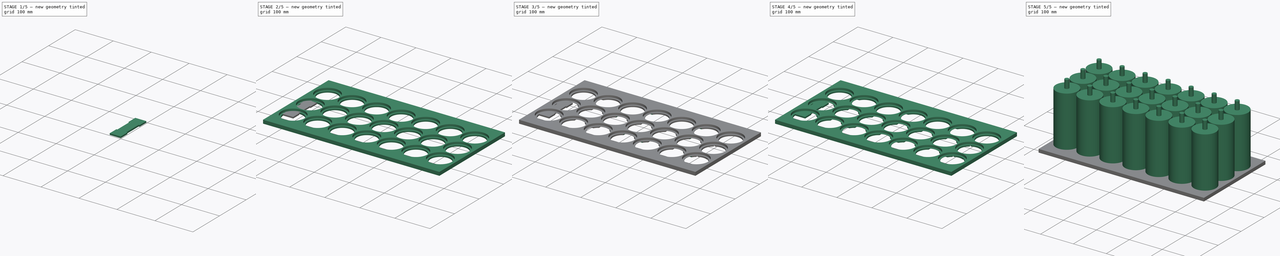
[diagram: build sequence overview — one tinted view per stage of 5, left to right]
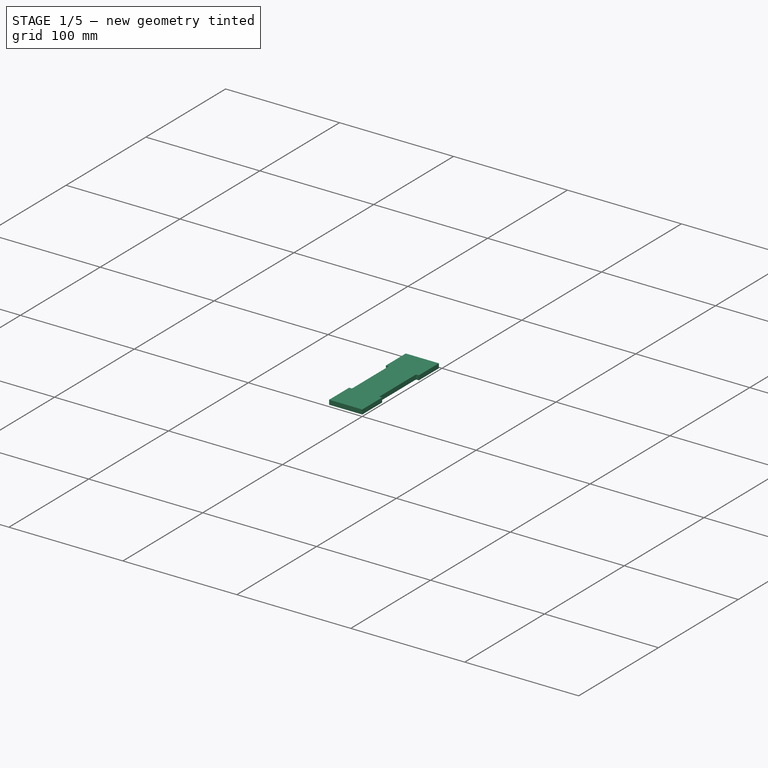
[diagram: stage 1 of 5 — iso view after this stage's code; geometry added in this stage tinted green]
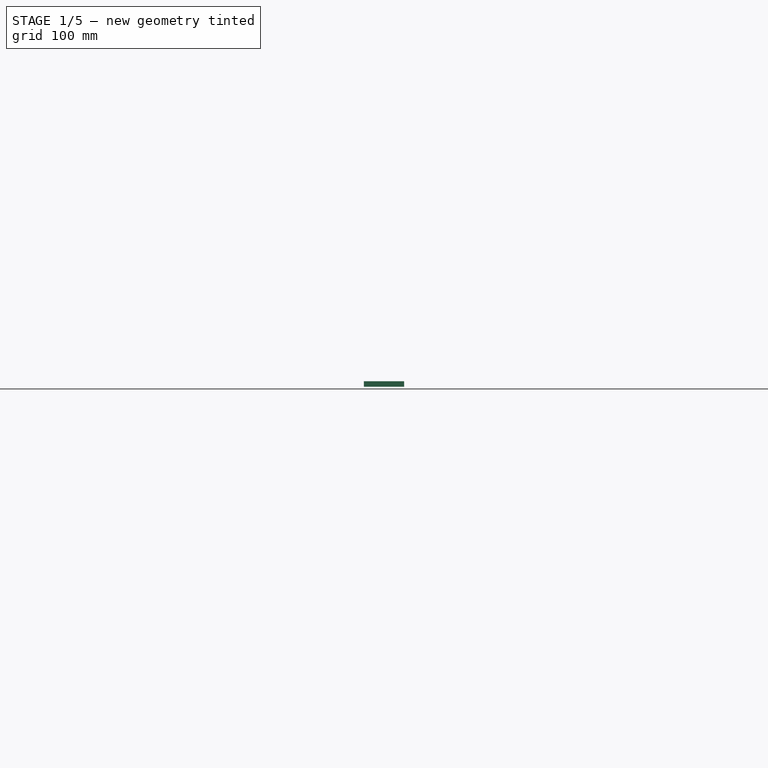
[diagram: stage 1 of 5 — front view after this stage's code; geometry added in this stage tinted green]
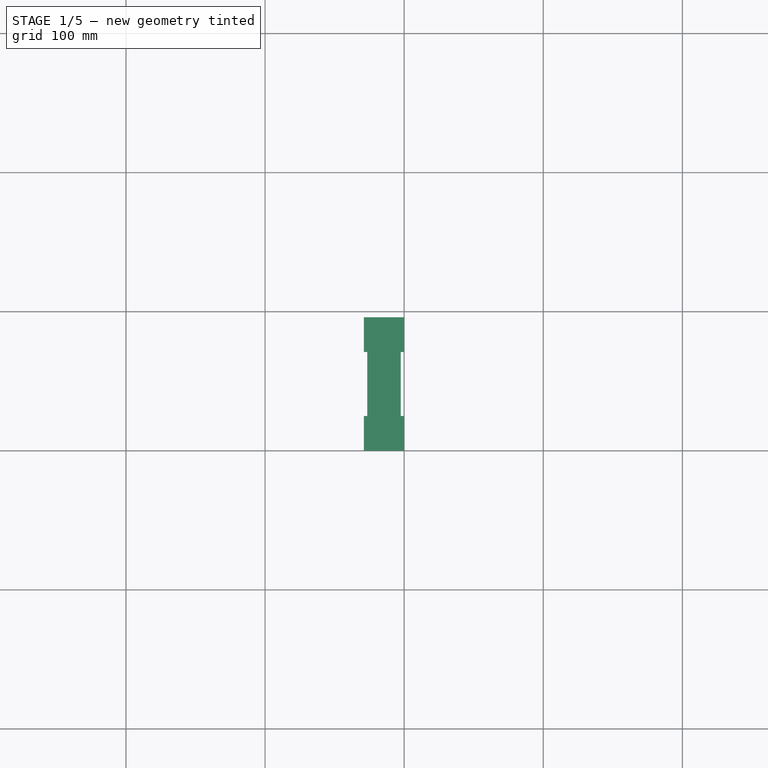
[diagram: stage 1 of 5 — top view after this stage's code; geometry added in this stage tinted green]
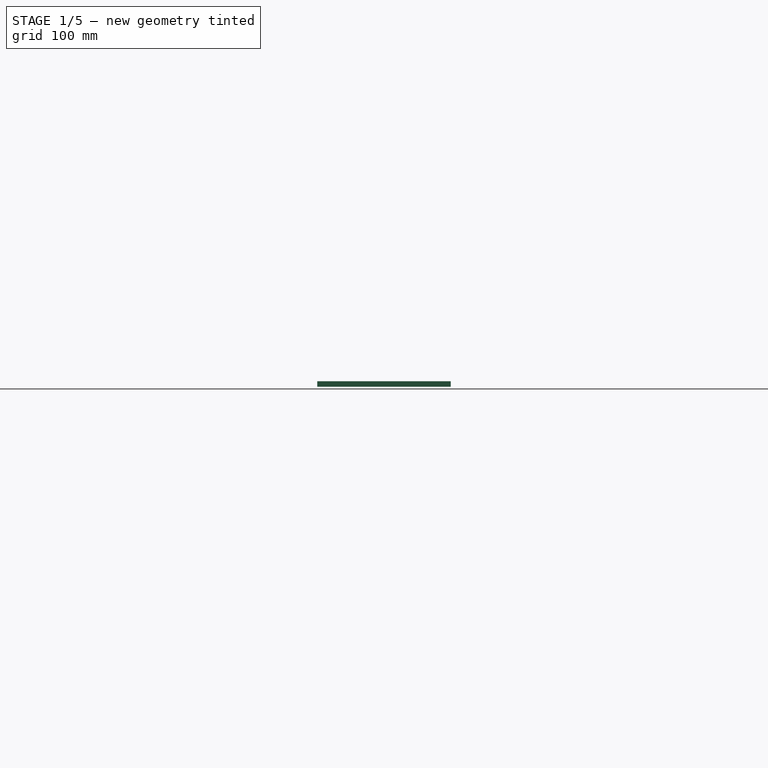
[diagram: stage 1 of 5 — right view after this stage's code; geometry added in this stage tinted green]
FCSTD DOCUMENT  (FreeCAD 0.20R29410 (Git))
Label: bateria litio
License: All rights reserved
LicenseURL: http://en.wikipedia.org/wiki/All_rights_reserved
objects: Sketcher::SketchObject×49, PartDesign::Pad×25, PartDesign::Pocket×24, PartDesign::Body×23, PartDesign::ShapeBinder×22, App::LinkGroup×6, PartDesign::Point×2, Part::FeaturePython×1, TechDraw::DrawSVGTemplate×1, TechDraw::DrawViewPart×1, TechDraw::DrawPage×1
note: 194 computed .brp shape members not serialized (recipe doc carries the construction recipe); baked Part::Feature solids carry a one-line shape summary decoded from their .brp

FEATURE [Sketcher::SketchObject] Sketch027
  FullyConstrained = true
  MapMode = 5
  Support = -> [XY_Plane013]
  expr: Constraints[2] = 104mm - 2 * 29mm
  sketch-geometry (13):
    g0: LineSegment StartX=-2.5 StartY=71 StartZ=0 EndX=-2.5 EndY=25 EndZ=0
    g1: LineSegment StartX=-26.5 StartY=25 StartZ=0 EndX=-26.5 EndY=71 EndZ=0
    g2: LineSegment StartX=-29 StartY=96 StartZ=0 EndX=0 EndY=96 EndZ=0
    g3: LineSegment StartX=0 StartY=96 StartZ=0 EndX=0 EndY=71 EndZ=0
    g4: LineSegment StartX=-29 StartY=71 StartZ=0 EndX=-29 EndY=96 EndZ=0
    g5: GeomPoint X=-14.5 Y=71 Z=0
    g6: LineSegment StartX=-29 StartY=0 StartZ=0 EndX=0 EndY=0 EndZ=0
    g7: LineSegment StartX=0 StartY=0 StartZ=0 EndX=0 EndY=25 EndZ=0
    g8: LineSegment StartX=-29 StartY=25 StartZ=0 EndX=-29 EndY=0 EndZ=0
    g9: LineSegment StartX=-29 StartY=71 StartZ=0 EndX=-26.5 EndY=71 EndZ=0
    g10: LineSegment StartX=-2.5 StartY=71 StartZ=0 EndX=0 EndY=71 EndZ=0
    g11: LineSegment StartX=-29 StartY=25 StartZ=0 EndX=-26.5 EndY=25 EndZ=0
    g12: LineSegment StartX=-2.5 StartY=25 StartZ=0 EndX=0 EndY=25 EndZ=0
  constraints (35):
    c: Vertical(g0)
    c: Vertical(g1)
    c: DistanceY(g0,g0) = 46
    c: DistanceX(g1,g0) = 24
    c: Coincident(g2,g3)
    c: Coincident(g4,g2)
    c: Horizontal(g2)
    c: Vertical(g3)
    c: Vertical(g4)
    c: DistanceX(g2,g2) = 29
    c: Symmetric(g4,g3,g5)
    c: Symmetric(g1,g0,g5)
    c: Coincident(g6,g7)
    c: Coincident(g8,g6)
    c: Horizontal(g6)
    c: Vertical(g7)
    c: Vertical(g8)
    c: DistanceY(g6,g2) = 96
    c: Vertical(g8,g4)
    c: Vertical(g3,g7)
    c: Equal(g3,g7)
    c: Horizontal(g7,g0)
    c: Coincident(g6,g-1)
    c: Horizontal(g0,g3)
    c: Horizontal(g1,g8)
    c: Coincident(g9,g4)
    c: Coincident(g9,g1)
    c: Coincident(g10,g0)
    c: Coincident(g10,g3)
    c: Coincident(g11,g8)
    c: Coincident(g11,g1)
    c: Coincident(g12,g0)
    c: Coincident(g12,g7)
    c: Horizontal(g1,g0)
    c: Horizontal(g1,g0)
FEATURE [PartDesign::Pad] Pad015
  Direction = (0,0,1)
  Length = 4
  Length2 = 10
  Profile = -> Sketch027
  ReferenceAxis = -> Sketch027 [N_Axis]
  Type = 0
FEATURE [PartDesign::Body] Body013  label="Connector010"
  Group = -> [Sketch027,CopyPad014,Pad015,Sketch030,Pocket014]
  Origin = -> Origin013
  Placement = pos=(15,-13,0) rot=(0,0,1;0rad)
  Tip = -> Pocket014
FEATURE [Sketcher::SketchObject] Sketch031
  FullyConstrained = true
  MapMode = 5
  Support = -> [XY_Plane014]
  expr: Constraints[2] = 104mm - 2 * 29mm
  sketch-geometry (13):
    g0: LineSegment StartX=-2.5 StartY=71 StartZ=0 EndX=-2.5 EndY=25 EndZ=0
    g1: LineSegment StartX=-26.5 StartY=25 StartZ=0 EndX=-26.5 EndY=71 EndZ=0
    g2: LineSegment StartX=-29 StartY=96 StartZ=0 EndX=0 EndY=96 EndZ=0
    g3: LineSegment StartX=0 StartY=96 StartZ=0 EndX=0 EndY=71 EndZ=0
    g4: LineSegment StartX=-29 StartY=71 StartZ=0 EndX=-29 EndY=96 EndZ=0
    g5: GeomPoint X=-14.5 Y=71 Z=0
    g6: LineSegment StartX=-29 StartY=0 StartZ=0 EndX=0 EndY=0 EndZ=0
    g7: LineSegment StartX=0 StartY=0 StartZ=0 EndX=0 EndY=25 EndZ=0
    g8: LineSegment StartX=-29 StartY=25 StartZ=0 EndX=-29 EndY=0 EndZ=0
    g9: LineSegment StartX=-29 StartY=71 StartZ=0 EndX=-26.5 EndY=71 EndZ=0
    g10: LineSegment StartX=-2.5 StartY=71 StartZ=0 EndX=0 EndY=71 EndZ=0
    g11: LineSegment StartX=-29 StartY=25 StartZ=0 EndX=-26.5 EndY=25 EndZ=0
    g12: LineSegment StartX=-2.5 StartY=25 StartZ=0 EndX=0 EndY=25 EndZ=0
  constraints (35):
    c: Vertical(g0)
    c: Vertical(g1)
    c: DistanceY(g0,g0) = 46
    c: DistanceX(g1,g0) = 24
    c: Coincident(g2,g3)
    c: Coincident(g4,g2)
    c: Horizontal(g2)
    c: Vertical(g3)
    c: Vertical(g4)
    c: DistanceX(g2,g2) = 29
    c: Symmetric(g4,g3,g5)
    c: Symmetric(g1,g0,g5)
    c: Coincident(g6,g7)
    c: Coincident(g8,g6)
    c: Horizontal(g6)
    c: Vertical(g7)
    c: Vertical(g8)
    c: DistanceY(g6,g2) = 96
    c: Vertical(g8,g4)
    c: Vertical(g3,g7)
    c: Equal(g3,g7)
    c: Horizontal(g7,g0)
    c: Coincident(g6,g-1)
    c: Horizontal(g0,g3)
    c: Horizontal(g1,g8)
    c: Coincident(g9,g4)
    c: Coincident(g9,g1)
    c: Coincident(g10,g0)
    c: Coincident(g10,g3)
    c: Coincident(g11,g8)
    c: Coincident(g11,g1)
    c: Coincident(g12,g0)
    c: Coincident(g12,g7)
    c: Horizontal(g1,g0)
    c: Horizontal(g1,g0)
FEATURE [PartDesign::Pad] Pad016
  Direction = (0,0,1)
  Length = 4
  Length2 = 10
  Profile = -> Sketch031
  ReferenceAxis = -> Sketch031 [N_Axis]
  Type = 0
FEATURE [PartDesign::Body] Body014  label="Connector011"
  Group = -> [Sketch031,CopyPad015,Pad016,Sketch032,Pocket015]
  Origin = -> Origin014
  Placement = pos=(83,154,0) rot=(0,0,1;1.5708rad)
  Tip = -> Pocket015
FEATURE [Sketcher::SketchObject] Sketch033
  FullyConstrained = true
  MapMode = 5
  Support = -> [XY_Plane015]
  expr: Constraints[2] = 104mm - 2 * 29mm
  sketch-geometry (13):
    g0: LineSegment StartX=-2.5 StartY=71 StartZ=0 EndX=-2.5 EndY=25 EndZ=0
    g1: LineSegment StartX=-26.5 StartY=25 StartZ=0 EndX=-26.5 EndY=71 EndZ=0
    g2: LineSegment StartX=-29 StartY=96 StartZ=0 EndX=0 EndY=96 EndZ=0
    g3: LineSegment StartX=0 StartY=96 StartZ=0 EndX=0 EndY=71 EndZ=0
    g4: LineSegment StartX=-29 StartY=71 StartZ=0 EndX=-29 EndY=96 EndZ=0
    g5: GeomPoint X=-14.5 Y=71 Z=0
    g6: LineSegment StartX=-29 StartY=0 StartZ=0 EndX=0 EndY=0 EndZ=0
    g7: LineSegment StartX=0 StartY=0 StartZ=0 EndX=0 EndY=25 EndZ=0
    g8: LineSegment StartX=-29 StartY=25 StartZ=0 EndX=-29 EndY=0 EndZ=0
    g9: LineSegment StartX=-29 StartY=71 StartZ=0 EndX=-26.5 EndY=71 EndZ=0
    g10: LineSegment StartX=-2.5 StartY=71 StartZ=0 EndX=0 EndY=71 EndZ=0
    g11: LineSegment StartX=-29 StartY=25 StartZ=0 EndX=-26.5 EndY=25 EndZ=0
    g12: LineSegment StartX=-2.5 StartY=25 StartZ=0 EndX=0 EndY=25 EndZ=0
  constraints (35):
    c: Vertical(g0)
    c: Vertical(g1)
    c: DistanceY(g0,g0) = 46
    c: DistanceX(g1,g0) = 24
    c: Coincident(g2,g3)
    c: Coincident(g4,g2)
    c: Horizontal(g2)
    c: Vertical(g3)
    c: Vertical(g4)
    c: DistanceX(g2,g2) = 29
    c: Symmetric(g4,g3,g5)
    c: Symmetric(g1,g0,g5)
    c: Coincident(g6,g7)
    c: Coincident(g8,g6)
    c: Horizontal(g6)
    c: Vertical(g7)
    c: Vertical(g8)
    c: DistanceY(g6,g2) = 96
    c: Vertical(g8,g4)
    c: Vertical(g3,g7)
    c: Equal(g3,g7)
    c: Horizontal(g7,g0)
    c: Coincident(g6,g-1)
    c: Horizontal(g0,g3)
    c: Horizontal(g1,g8)
    c: Coincident(g9,g4)
    c: Coincident(g9,g1)
    c: Coincident(g10,g0)
    c: Coincident(g10,g3)
    c: Coincident(g11,g8)
    c: Coincident(g11,g1)
    c: Coincident(g12,g0)
    c: Coincident(g12,g7)
    c: Horizontal(g1,g0)
    c: Horizontal(g1,g0)
FEATURE [PartDesign::Pad] Pad017
  Direction = (0,0,1)
  Length = 4
  Length2 = 10
  Profile = -> Sketch033
  ReferenceAxis = -> Sketch033 [N_Axis]
  Type = 0
FEATURE [PartDesign::Body] Body015  label="Connector012"
  Group = -> [Sketch033,CopyPad016,Pad017,Sketch034,Pocket016]
  Origin = -> Origin015
  Placement = pos=(83,-12,0) rot=(0,0,1;0rad)
  Tip = -> Pocket016
FEATURE [Sketcher::SketchObject] Sketch035
  FullyConstrained = true
  MapMode = 5
  Support = -> [XY_Plane016]
  expr: Constraints[2] = 104mm - 2 * 29mm
  sketch-geometry (13):
    g0: LineSegment StartX=-2.5 StartY=71 StartZ=0 EndX=-2.5 EndY=25 EndZ=0
    g1: LineSegment StartX=-26.5 StartY=25 StartZ=0 EndX=-26.5 EndY=71 EndZ=0
    g2: LineSegment StartX=-29 StartY=96 StartZ=0 EndX=0 EndY=96 EndZ=0
    g3: LineSegment StartX=0 StartY=96 StartZ=0 EndX=0 EndY=71 EndZ=0
    g4: LineSegment StartX=-29 StartY=71 StartZ=0 EndX=-29 EndY=96 EndZ=0
    g5: GeomPoint X=-14.5 Y=71 Z=0
    g6: LineSegment StartX=-29 StartY=0 StartZ=0 EndX=0 EndY=0 EndZ=0
    g7: LineSegment StartX=0 StartY=0 StartZ=0 EndX=0 EndY=25 EndZ=0
    g8: LineSegment StartX=-29 StartY=25 StartZ=0 EndX=-29 EndY=0 EndZ=0
    g9: LineSegment StartX=-29 StartY=71 StartZ=0 EndX=-26.5 EndY=71 EndZ=0
    g10: LineSegment StartX=-2.5 StartY=71 StartZ=0 EndX=0 EndY=71 EndZ=0
    g11: LineSegment StartX=-29 StartY=25 StartZ=0 EndX=-26.5 EndY=25 EndZ=0
    g12: LineSegment StartX=-2.5 StartY=25 StartZ=0 EndX=0 EndY=25 EndZ=0
  constraints (35):
    c: Vertical(g0)
    c: Vertical(g1)
    c: DistanceY(g0,g0) = 46
    c: DistanceX(g1,g0) = 24
    c: Coincident(g2,g3)
    c: Coincident(g4,g2)
    c: Horizontal(g2)
    c: Vertical(g3)
    c: Vertical(g4)
    c: DistanceX(g2,g2) = 29
    c: Symmetric(g4,g3,g5)
    c: Symmetric(g1,g0,g5)
    c: Coincident(g6,g7)
    c: Coincident(g8,g6)
    c: Horizontal(g6)
    c: Vertical(g7)
    c: Vertical(g8)
    c: DistanceY(g6,g2) = 96
    c: Vertical(g8,g4)
    c: Vertical(g3,g7)
    c: Equal(g3,g7)
    c: Horizontal(g7,g0)
    c: Coincident(g6,g-1)
    c: Horizontal(g0,g3)
    c: Horizontal(g1,g8)
    c: Coincident(g9,g4)
    c: Coincident(g9,g1)
    c: Coincident(g10,g0)
    c: Coincident(g10,g3)
    c: Coincident(g11,g8)
    c: Coincident(g11,g1)
    c: Coincident(g12,g0)
    c: Coincident(g12,g7)
    c: Horizontal(g1,g0)
    c: Horizontal(g1,g0)
FEATURE [PartDesign::Pad] Pad018
  Direction = (0,0,1)
  Length = 4
  Length2 = 10
  Profile = -> Sketch035
  ReferenceAxis = -> Sketch035 [N_Axis]
  Type = 0
FEATURE [PartDesign::Body] Body016  label="Connector013"
  Group = -> [Sketch035,CopyPad017,Pad018,Sketch036,Pocket017]
  Origin = -> Origin016
  Placement = pos=(154,-13,0) rot=(0,0,1;0rad)
  Tip = -> Pocket017
FEATURE [Sketcher::SketchObject] Sketch037
  FullyConstrained = true
  MapMode = 5
  Support = -> [XY_Plane017]
  expr: Constraints[2] = 104mm - 2 * 29mm
  sketch-geometry (13):
    g0: LineSegment StartX=-2.5 StartY=71 StartZ=0 EndX=-2.5 EndY=25 EndZ=0
    g1: LineSegment StartX=-26.5 StartY=25 StartZ=0 EndX=-26.5 EndY=71 EndZ=0
    g2: LineSegment StartX=-29 StartY=96 StartZ=0 EndX=0 EndY=96 EndZ=0
    g3: LineSegment StartX=0 StartY=96 StartZ=0 EndX=0 EndY=71 EndZ=0
    g4: LineSegment StartX=-29 StartY=71 StartZ=0 EndX=-29 EndY=96 EndZ=0
    g5: GeomPoint X=-14.5 Y=71 Z=0
    g6: LineSegment StartX=-29 StartY=0 StartZ=0 EndX=0 EndY=0 EndZ=0
    g7: LineSegment StartX=0 StartY=0 StartZ=0 EndX=0 EndY=25 EndZ=0
    g8: LineSegment StartX=-29 StartY=25 StartZ=0 EndX=-29 EndY=0 EndZ=0
    g9: LineSegment StartX=-29 StartY=71 StartZ=0 EndX=-26.5 EndY=71 EndZ=0
    g10: LineSegment StartX=-2.5 StartY=71 StartZ=0 EndX=0 EndY=71 EndZ=0
    g11: LineSegment StartX=-29 StartY=25 StartZ=0 EndX=-26.5 EndY=25 EndZ=0
    g12: LineSegment StartX=-2.5 StartY=25 StartZ=0 EndX=0 EndY=25 EndZ=0
  constraints (35):
    c: Vertical(g0)
    c: Vertical(g1)
    c: DistanceY(g0,g0) = 46
    c: DistanceX(g1,g0) = 24
    c: Coincident(g2,g3)
    c: Coincident(g4,g2)
    c: Horizontal(g2)
    c: Vertical(g3)
    c: Vertical(g4)
    c: DistanceX(g2,g2) = 29
    c: Symmetric(g4,g3,g5)
    c: Symmetric(g1,g0,g5)
    c: Coincident(g6,g7)
    c: Coincident(g8,g6)
    c: Horizontal(g6)
    c: Vertical(g7)
    c: Vertical(g8)
    c: DistanceY(g6,g2) = 96
    c: Vertical(g8,g4)
    c: Vertical(g3,g7)
    c: Equal(g3,g7)
    c: Horizontal(g7,g0)
    c: Coincident(g6,g-1)
    c: Horizontal(g0,g3)
    c: Horizontal(g1,g8)
    c: Coincident(g9,g4)
    c: Coincident(g9,g1)
    c: Coincident(g10,g0)
    c: Coincident(g10,g3)
    c: Coincident(g11,g8)
    c: Coincident(g11,g1)
    c: Coincident(g12,g0)
    c: Coincident(g12,g7)
    c: Horizontal(g1,g0)
    c: Horizontal(g1,g0)
FEATURE [PartDesign::Pad] Pad019
  Direction = (0,0,1)
  Length = 4
  Length2 = 10
  Profile = -> Sketch037
  ReferenceAxis = -> Sketch037 [N_Axis]
  Type = 0
FEATURE [PartDesign::Body] Body017  label="Connector014"
  Group = -> [Sketch037,CopyPad018,Pad019,Sketch038,Pocket018]
  Origin = -> Origin017
  Placement = pos=(222,155,0) rot=(0,0,1;1.5708rad)
  Tip = -> Pocket018
FEATURE [Sketcher::SketchObject] Sketch039
  FullyConstrained = true
  MapMode = 5
  Support = -> [XY_Plane018]
  expr: Constraints[2] = 104mm - 2 * 29mm
  sketch-geometry (13):
    g0: LineSegment StartX=-2.5 StartY=71 StartZ=0 EndX=-2.5 EndY=25 EndZ=0
    g1: LineSegment StartX=-26.5 StartY=25 StartZ=0 EndX=-26.5 EndY=71 EndZ=0
    g2: LineSegment StartX=-29 StartY=96 StartZ=0 EndX=0 EndY=96 EndZ=0
    g3: LineSegment StartX=0 StartY=96 StartZ=0 EndX=0 EndY=71 EndZ=0
    g4: LineSegment StartX=-29 StartY=71 StartZ=0 EndX=-29 EndY=96 EndZ=0
    g5: GeomPoint X=-14.5 Y=71 Z=0
    g6: LineSegment StartX=-29 StartY=0 StartZ=0 EndX=0 EndY=0 EndZ=0
    g7: LineSegment StartX=0 StartY=0 StartZ=0 EndX=0 EndY=25 EndZ=0
    g8: LineSegment StartX=-29 StartY=25 StartZ=0 EndX=-29 EndY=0 EndZ=0
    g9: LineSegment StartX=-29 StartY=71 StartZ=0 EndX=-26.5 EndY=71 EndZ=0
    g10: LineSegment StartX=-2.5 StartY=71 StartZ=0 EndX=0 EndY=71 EndZ=0
    g11: LineSegment StartX=-29 StartY=25 StartZ=0 EndX=-26.5 EndY=25 EndZ=0
    g12: LineSegment StartX=-2.5 StartY=25 StartZ=0 EndX=0 EndY=25 EndZ=0
  constraints (35):
    c: Vertical(g0)
    c: Vertical(g1)
    c: DistanceY(g0,g0) = 46
    c: DistanceX(g1,g0) = 24
    c: Coincident(g2,g3)
    c: Coincident(g4,g2)
    c: Horizontal(g2)
    c: Vertical(g3)
    c: Vertical(g4)
    c: DistanceX(g2,g2) = 29
    c: Symmetric(g4,g3,g5)
    c: Symmetric(g1,g0,g5)
    c: Coincident(g6,g7)
    c: Coincident(g8,g6)
    c: Horizontal(g6)
    c: Vertical(g7)
    c: Vertical(g8)
    c: DistanceY(g6,g2) = 96
    c: Vertical(g8,g4)
    c: Vertical(g3,g7)
    c: Equal(g3,g7)
    c: Horizontal(g7,g0)
    c: Coincident(g6,g-1)
    c: Horizontal(g0,g3)
    c: Horizontal(g1,g8)
    c: Coincident(g9,g4)
    c: Coincident(g9,g1)
    c: Coincident(g10,g0)
    c: Coincident(g10,g3)
    c: Coincident(g11,g8)
    c: Coincident(g11,g1)
    c: Coincident(g12,g0)
    c: Coincident(g12,g7)
    c: Horizontal(g1,g0)
    c: Horizontal(g1,g0)
FEATURE [PartDesign::Pad] Pad020
  Direction = (0,0,1)
  Length = 4
  Length2 = 10
  Profile = -> Sketch039
  ReferenceAxis = -> Sketch039 [N_Axis]
  Type = 0
FEATURE [PartDesign::Body] Body018  label="Connector015"
  Group = -> [Sketch039,CopyPad019,Pad020,Sketch040,Pocket019]
  Origin = -> Origin018
  Placement = pos=(363,154,0) rot=(0,0,1;1.5708rad)
  Tip = -> Pocket019
FEATURE [Sketcher::SketchObject] Sketch041
  FullyConstrained = true
  MapMode = 5
  Support = -> [XY_Plane019]
  expr: Constraints[2] = 104mm - 2 * 29mm
  sketch-geometry (13):
    g0: LineSegment StartX=-2.5 StartY=71 StartZ=0 EndX=-2.5 EndY=25 EndZ=0
    g1: LineSegment StartX=-26.5 StartY=25 StartZ=0 EndX=-26.5 EndY=71 EndZ=0
    g2: LineSegment StartX=-29 StartY=96 StartZ=0 EndX=0 EndY=96 EndZ=0
    g3: LineSegment StartX=0 StartY=96 StartZ=0 EndX=0 EndY=71 EndZ=0
    g4: LineSegment StartX=-29 StartY=71 StartZ=0 EndX=-29 EndY=96 EndZ=0
    g5: GeomPoint X=-14.5 Y=71 Z=0
    g6: LineSegment StartX=-29 StartY=0 StartZ=0 EndX=0 EndY=0 EndZ=0
    g7: LineSegment StartX=0 StartY=0 StartZ=0 EndX=0 EndY=25 EndZ=0
    g8: LineSegment StartX=-29 StartY=25 StartZ=0 EndX=-29 EndY=0 EndZ=0
    g9: LineSegment StartX=-29 StartY=71 StartZ=0 EndX=-26.5 EndY=71 EndZ=0
    g10: LineSegment StartX=-2.5 StartY=71 StartZ=0 EndX=0 EndY=71 EndZ=0
    g11: LineSegment StartX=-29 StartY=25 StartZ=0 EndX=-26.5 EndY=25 EndZ=0
    g12: LineSegment StartX=-2.5 StartY=25 StartZ=0 EndX=0 EndY=25 EndZ=0
  constraints (35):
    c: Vertical(g0)
    c: Vertical(g1)
    c: DistanceY(g0,g0) = 46
    c: DistanceX(g1,g0) = 24
    c: Coincident(g2,g3)
    c: Coincident(g4,g2)
    c: Horizontal(g2)
    c: Vertical(g3)
    c: Vertical(g4)
    c: DistanceX(g2,g2) = 29
    c: Symmetric(g4,g3,g5)
    c: Symmetric(g1,g0,g5)
    c: Coincident(g6,g7)
    c: Coincident(g8,g6)
    c: Horizontal(g6)
    c: Vertical(g7)
    c: Vertical(g8)
    c: DistanceY(g6,g2) = 96
    c: Vertical(g8,g4)
    c: Vertical(g3,g7)
    c: Equal(g3,g7)
    c: Horizontal(g7,g0)
    c: Coincident(g6,g-1)
    c: Horizontal(g0,g3)
    c: Horizontal(g1,g8)
    c: Coincident(g9,g4)
    c: Coincident(g9,g1)
    c: Coincident(g10,g0)
    c: Coincident(g10,g3)
    c: Coincident(g11,g8)
    c: Coincident(g11,g1)
    c: Coincident(g12,g0)
    c: Coincident(g12,g7)
    c: Horizontal(g1,g0)
    c: Horizontal(g1,g0)
FEATURE [PartDesign::Pad] Pad021
  Direction = (0,0,1)
  Length = 4
  Length2 = 10
  Profile = -> Sketch041
  ReferenceAxis = -> Sketch041 [N_Axis]
  Type = 0
FEATURE [PartDesign::Body] Body019  label="Connector016"
  Group = -> [Sketch041,CopyPad020,Pad021,Sketch042,Pocket020]
  Origin = -> Origin019
  Placement = pos=(225,-13,0) rot=(0,0,1;0rad)
  Tip = -> Pocket020
FEATURE [Sketcher::SketchObject] Sketch043
  FullyConstrained = true
  MapMode = 5
  Support = -> [XY_Plane020]
  expr: Constraints[2] = 104mm - 2 * 29mm
  sketch-geometry (13):
    g0: LineSegment StartX=-2.5 StartY=71 StartZ=0 EndX=-2.5 EndY=25 EndZ=0
    g1: LineSegment StartX=-26.5 StartY=25 StartZ=0 EndX=-26.5 EndY=71 EndZ=0
    g2: LineSegment StartX=-29 StartY=96 StartZ=0 EndX=0 EndY=96 EndZ=0
    g3: LineSegment StartX=0 StartY=96 StartZ=0 EndX=0 EndY=71 EndZ=0
    g4: LineSegment StartX=-29 StartY=71 StartZ=0 EndX=-29 EndY=96 EndZ=0
    g5: GeomPoint X=-14.5 Y=71 Z=0
    g6: LineSegment StartX=-29 StartY=0 StartZ=0 EndX=0 EndY=0 EndZ=0
    g7: LineSegment StartX=0 StartY=0 StartZ=0 EndX=0 EndY=25 EndZ=0
    g8: LineSegment StartX=-29 StartY=25 StartZ=0 EndX=-29 EndY=0 EndZ=0
    g9: LineSegment StartX=-29 StartY=71 StartZ=0 EndX=-26.5 EndY=71 EndZ=0
    g10: LineSegment StartX=-2.5 StartY=71 StartZ=0 EndX=0 EndY=71 EndZ=0
    g11: LineSegment StartX=-29 StartY=25 StartZ=0 EndX=-26.5 EndY=25 EndZ=0
    g12: LineSegment StartX=-2.5 StartY=25 StartZ=0 EndX=0 EndY=25 EndZ=0
  constraints (35):
    c: Vertical(g0)
    c: Vertical(g1)
    c: DistanceY(g0,g0) = 46
    c: DistanceX(g1,g0) = 24
    c: Coincident(g2,g3)
    c: Coincident(g4,g2)
    c: Horizontal(g2)
    c: Vertical(g3)
    c: Vertical(g4)
    c: DistanceX(g2,g2) = 29
    c: Symmetric(g4,g3,g5)
    c: Symmetric(g1,g0,g5)
    c: Coincident(g6,g7)
    c: Coincident(g8,g6)
    c: Horizontal(g6)
    c: Vertical(g7)
    c: Vertical(g8)
    c: DistanceY(g6,g2) = 96
    c: Vertical(g8,g4)
    c: Vertical(g3,g7)
    c: Equal(g3,g7)
    c: Horizontal(g7,g0)
    c: Coincident(g6,g-1)
    c: Horizontal(g0,g3)
    c: Horizontal(g1,g8)
    c: Coincident(g9,g4)
    c: Coincident(g9,g1)
    c: Coincident(g10,g0)
    c: Coincident(g10,g3)
    c: Coincident(g11,g8)
    c: Coincident(g11,g1)
    c: Coincident(g12,g0)
    c: Coincident(g12,g7)
    c: Horizontal(g1,g0)
    c: Horizontal(g1,g0)
FEATURE [PartDesign::Pad] Pad022
  Direction = (0,0,1)
  Length = 4
  Length2 = 10
  Profile = -> Sketch043
  ReferenceAxis = -> Sketch043 [N_Axis]
  Type = 0
FEATURE [PartDesign::Body] Body020  label="Connector017"
  Group = -> [Sketch043,CopyPad021,Pad022,Sketch044,Pocket021]
  Origin = -> Origin020
  Placement = pos=(295,-13,0) rot=(0,0,1;0rad)
  Tip = -> Pocket021
FEATURE [Sketcher::SketchObject] Sketch045
  FullyConstrained = true
  MapMode = 5
  Support = -> [XY_Plane021]
  expr: Constraints[2] = 104mm - 2 * 29mm
  sketch-geometry (13):
    g0: LineSegment StartX=-2.5 StartY=71 StartZ=0 EndX=-2.5 EndY=25 EndZ=0
    g1: LineSegment StartX=-26.5 StartY=25 StartZ=0 EndX=-26.5 EndY=71 EndZ=0
    g2: LineSegment StartX=-29 StartY=96 StartZ=0 EndX=0 EndY=96 EndZ=0
    g3: LineSegment StartX=0 StartY=96 StartZ=0 EndX=0 EndY=71 EndZ=0
    g4: LineSegment StartX=-29 StartY=71 StartZ=0 EndX=-29 EndY=96 EndZ=0
    g5: GeomPoint X=-14.5 Y=71 Z=0
    g6: LineSegment StartX=-29 StartY=0 StartZ=0 EndX=0 EndY=0 EndZ=0
    g7: LineSegment StartX=0 StartY=0 StartZ=0 EndX=0 EndY=25 EndZ=0
    g8: LineSegment StartX=-29 StartY=25 StartZ=0 EndX=-29 EndY=0 EndZ=0
    g9: LineSegment StartX=-29 StartY=71 StartZ=0 EndX=-26.5 EndY=71 EndZ=0
    g10: LineSegment StartX=-2.5 StartY=71 StartZ=0 EndX=0 EndY=71 EndZ=0
    g11: LineSegment StartX=-29 StartY=25 StartZ=0 EndX=-26.5 EndY=25 EndZ=0
    g12: LineSegment StartX=-2.5 StartY=25 StartZ=0 EndX=0 EndY=25 EndZ=0
  constraints (35):
    c: Vertical(g0)
    c: Vertical(g1)
    c: DistanceY(g0,g0) = 46
    c: DistanceX(g1,g0) = 24
    c: Coincident(g2,g3)
    c: Coincident(g4,g2)
    c: Horizontal(g2)
    c: Vertical(g3)
    c: Vertical(g4)
    c: DistanceX(g2,g2) = 29
    c: Symmetric(g4,g3,g5)
    c: Symmetric(g1,g0,g5)
    c: Coincident(g6,g7)
    c: Coincident(g8,g6)
    c: Horizontal(g6)
    c: Vertical(g7)
    c: Vertical(g8)
    c: DistanceY(g6,g2) = 96
    c: Vertical(g8,g4)
    c: Vertical(g3,g7)
    c: Equal(g3,g7)
    c: Horizontal(g7,g0)
    c: Coincident(g6,g-1)
    c: Horizontal(g0,g3)
    c: Horizontal(g1,g8)
    c: Coincident(g9,g4)
    c: Coincident(g9,g1)
    c: Coincident(g10,g0)
    c: Coincident(g10,g3)
    c: Coincident(g11,g8)
    c: Coincident(g11,g1)
    c: Coincident(g12,g0)
    c: Coincident(g12,g7)
    c: Horizontal(g1,g0)
    c: Horizontal(g1,g0)
FEATURE [PartDesign::Pad] Pad023
  Direction = (0,0,1)
  Length = 4
  Length2 = 10
  Profile = -> Sketch045
  ReferenceAxis = -> Sketch045 [N_Axis]
  Type = 0
FEATURE [PartDesign::Body] Body021  label="Connector018"
  Group = -> [Sketch045,CopyPad022,Pad023,Sketch046,Pocket022]
  Origin = -> Origin021
  Placement = pos=(365,-13,0) rot=(0,0,1;0rad)
  Tip = -> Pocket022
FEATURE [Sketcher::SketchObject] Sketch047
  FullyConstrained = true
  MapMode = 5
  Support = -> [XY_Plane022]
  expr: Constraints[2] = 104mm - 2 * 29mm
  sketch-geometry (13):
    g0: LineSegment StartX=-2.5 StartY=71 StartZ=0 EndX=-2.5 EndY=25 EndZ=0
    g1: LineSegment StartX=-26.5 StartY=25 StartZ=0 EndX=-26.5 EndY=71 EndZ=0
    g2: LineSegment StartX=-29 StartY=96 StartZ=0 EndX=0 EndY=96 EndZ=0
    g3: LineSegment StartX=0 StartY=96 StartZ=0 EndX=0 EndY=71 EndZ=0
    g4: LineSegment StartX=-29 StartY=71 StartZ=0 EndX=-29 EndY=96 EndZ=0
    g5: GeomPoint X=-14.5 Y=71 Z=0
    g6: LineSegment StartX=-29 StartY=0 StartZ=0 EndX=0 EndY=0 EndZ=0
    g7: LineSegment StartX=0 StartY=0 StartZ=0 EndX=0 EndY=25 EndZ=0
    g8: LineSegment StartX=-29 StartY=25 StartZ=0 EndX=-29 EndY=0 EndZ=0
    g9: LineSegment StartX=-29 StartY=71 StartZ=0 EndX=-26.5 EndY=71 EndZ=0
    g10: LineSegment StartX=-2.5 StartY=71 StartZ=0 EndX=0 EndY=71 EndZ=0
    g11: LineSegment StartX=-29 StartY=25 StartZ=0 EndX=-26.5 EndY=25 EndZ=0
    g12: LineSegment StartX=-2.5 StartY=25 StartZ=0 EndX=0 EndY=25 EndZ=0
  constraints (35):
    c: Vertical(g0)
    c: Vertical(g1)
    c: DistanceY(g0,g0) = 46
    c: DistanceX(g1,g0) = 24
    c: Coincident(g2,g3)
    c: Coincident(g4,g2)
    c: Horizontal(g2)
    c: Vertical(g3)
    c: Vertical(g4)
    c: DistanceX(g2,g2) = 29
    c: Symmetric(g4,g3,g5)
    c: Symmetric(g1,g0,g5)
    c: Coincident(g6,g7)
    c: Coincident(g8,g6)
    c: Horizontal(g6)
    c: Vertical(g7)
    c: Vertical(g8)
    c: DistanceY(g6,g2) = 96
    c: Vertical(g8,g4)
    c: Vertical(g3,g7)
    c: Equal(g3,g7)
    c: Horizontal(g7,g0)
    c: Coincident(g6,g-1)
    c: Horizontal(g0,g3)
    c: Horizontal(g1,g8)
    c: Coincident(g9,g4)
    c: Coincident(g9,g1)
    c: Coincident(g10,g0)
    c: Coincident(g10,g3)
    c: Coincident(g11,g8)
    c: Coincident(g11,g1)
    c: Coincident(g12,g0)
    c: Coincident(g12,g7)
    c: Horizontal(g1,g0)
    c: Horizontal(g1,g0)
FEATURE [PartDesign::Pad] Pad024
  Direction = (0,0,1)
  Length = 4
  Length2 = 10
  Profile = -> Sketch047
  ReferenceAxis = -> Sketch047 [N_Axis]
  Type = 0
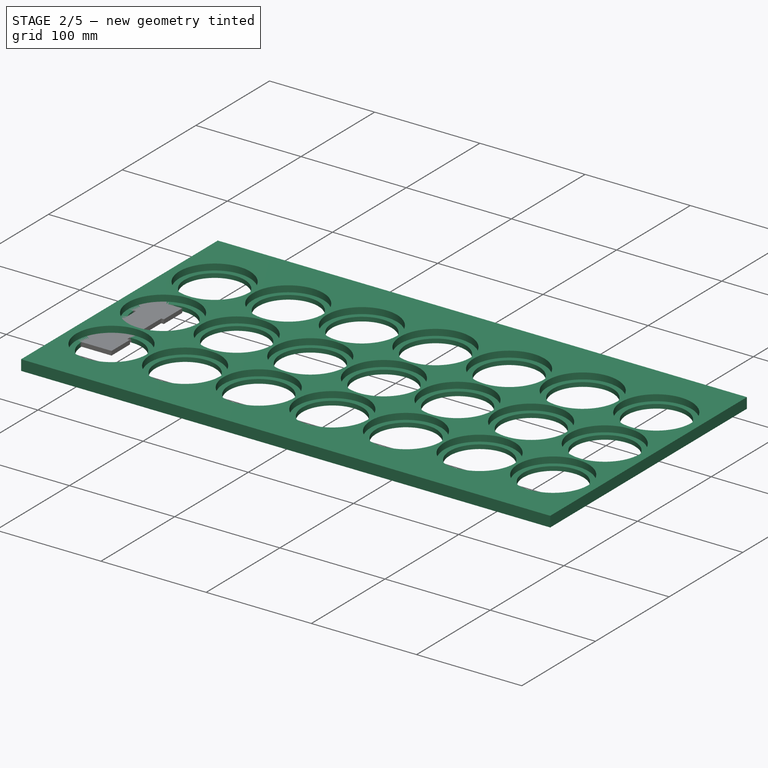
[diagram: stage 2 of 5 — iso view after this stage's code; geometry added in this stage tinted green]
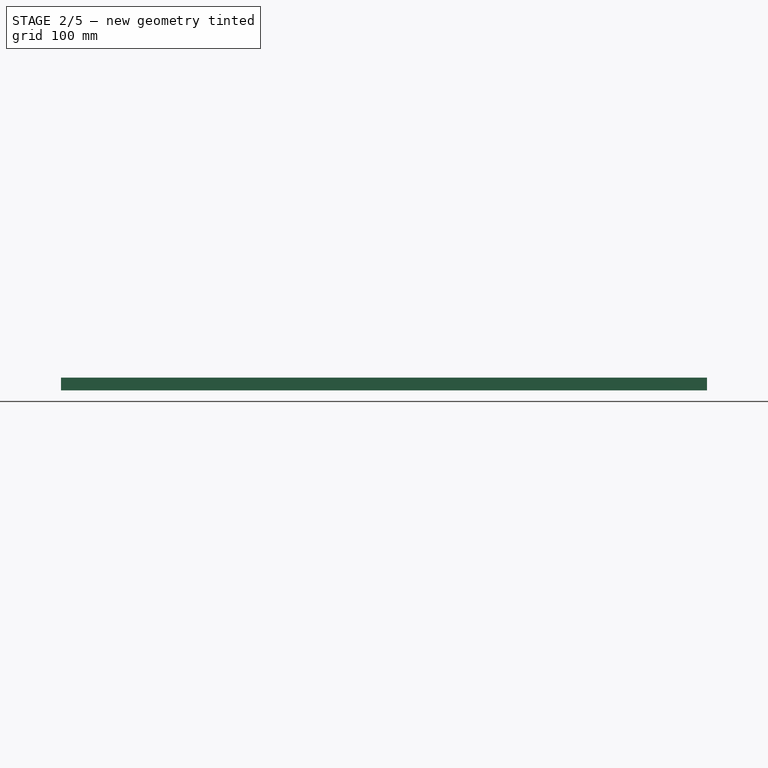
[diagram: stage 2 of 5 — front view after this stage's code; geometry added in this stage tinted green]
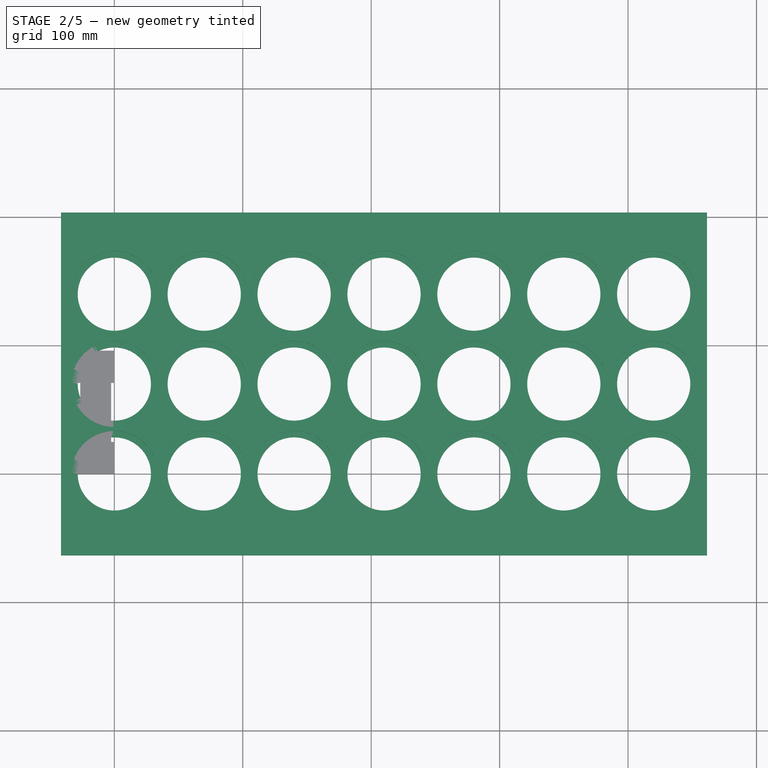
[diagram: stage 2 of 5 — top view after this stage's code; geometry added in this stage tinted green]
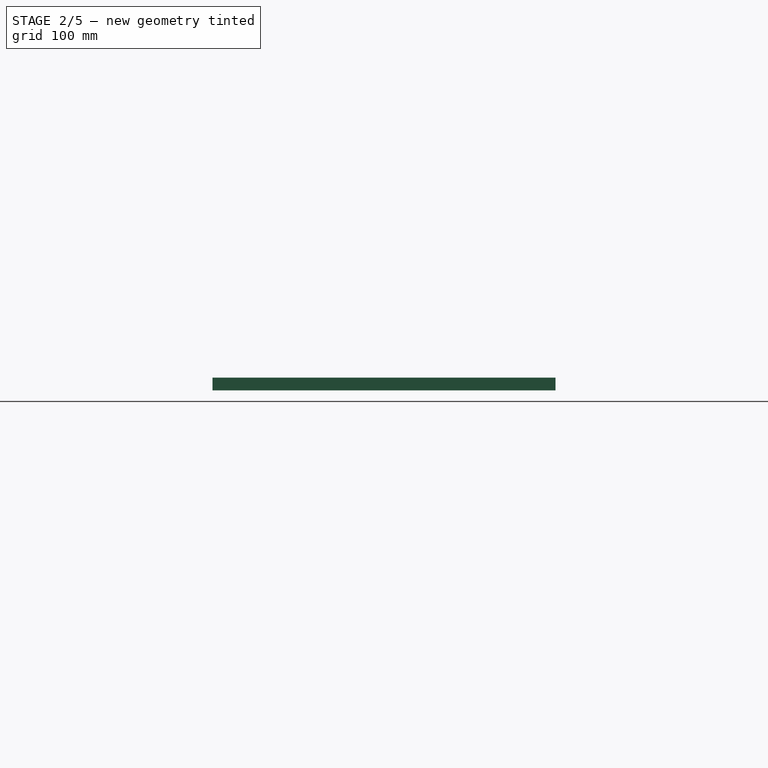
[diagram: stage 2 of 5 — right view after this stage's code; geometry added in this stage tinted green]
FEATURE [PartDesign::Body] Body011  label="Connector009"
  Group = -> [Sketch024,CopyPad012,Pad013,Sketch025,Pocket011]
  Origin = -> Origin011
  Placement = pos=(434,-13,-1) rot=(0,0,1;0rad)
  Tip = -> Pocket011
FEATURE [App::LinkGroup] LinkGroup001
  ElementList = -> [Body002,Body003,Body004,Body005,Body006,Body007,Body008,Body009,Body010,Body011]
  LinkMode = 0
FEATURE [App::LinkGroup] LinkGroup002  label="Barra"
  ElementList = -> [LinkGroup001]
  LinkMode = 0
FEATURE [App::LinkGroup] LinkGroup  label="SuporteBarraBottom"
  ElementList = -> [Body001,LinkGroup002]
  LinkMode = 0
FEATURE [PartDesign::ShapeBinder] CopyPad013
  Placement = pos=(0,0,-25) rot=(0,0,1;0rad)
  TraceSupport = false
FEATURE [PartDesign::ShapeBinder] CopyPad014
  Placement = pos=(0,0,10) rot=(0,0,1;0rad)
  TraceSupport = false
FEATURE [PartDesign::ShapeBinder] CopyPad015
  Placement = pos=(0,0,10) rot=(0,0,1;0rad)
  TraceSupport = false
FEATURE [PartDesign::ShapeBinder] CopyPad016
  Placement = pos=(0,0,10) rot=(0,0,1;0rad)
  TraceSupport = false
FEATURE [PartDesign::ShapeBinder] CopyPad017
  Placement = pos=(0,0,10) rot=(0,0,1;0rad)
  TraceSupport = false
FEATURE [PartDesign::ShapeBinder] CopyPad018
  Placement = pos=(0,0,10) rot=(0,0,1;0rad)
  TraceSupport = false
FEATURE [PartDesign::ShapeBinder] CopyPad019
  Placement = pos=(0,0,10) rot=(0,0,1;0rad)
  TraceSupport = false
FEATURE [PartDesign::ShapeBinder] CopyPad020
  Placement = pos=(0,0,10) rot=(0,0,1;0rad)
  TraceSupport = false
FEATURE [PartDesign::ShapeBinder] CopyPad021
  Placement = pos=(0,0,10) rot=(0,0,1;0rad)
  TraceSupport = false
FEATURE [PartDesign::ShapeBinder] CopyPad022
  Placement = pos=(0,0,10) rot=(0,0,1;0rad)
  TraceSupport = false
FEATURE [PartDesign::ShapeBinder] CopyPad023
  Placement = pos=(0,0,10) rot=(0,0,1;0rad)
  TraceSupport = false
FEATURE [PartDesign::Point] DatumPoint001
  AttacherType = Attacher::AttachEnginePoint
  MapMode = 37
  Placement = pos=(0,-4e-16,-25) rot=(0,0,1;0rad)
  Support = -> [CopyPad013]
FEATURE [Sketcher::SketchObject] Sketch026
  FullyConstrained = false
  MapMode = 5
  Support = -> [XY_Plane012]
  expr: .Constraints.D = 57mm
  sketch-geometry (50):
    g0: LineSegment StartX=-41.5 StartY=-63.5 StartZ=0 EndX=461.449 EndY=-63.5 EndZ=0
    g1: LineSegment StartX=461.449 StartY=-63.5 StartZ=0 EndX=461.449 EndY=203.518 EndZ=0
    g2: LineSegment StartX=461.449 StartY=203.518 StartZ=0 EndX=-41.5 EndY=203.518 EndZ=0
    g3: LineSegment StartX=-41.5 StartY=203.518 StartZ=0 EndX=-41.5 EndY=-63.5 EndZ=0
    g4: Circle CenterX=0 CenterY=0 CenterZ=0 NormalX=0 NormalY=0 NormalZ=1 AngleXU=0 Radius=28.5
    g5: GeomPoint X=0 Y=-28.5 Z=0
    g6: LineSegment StartX=0 StartY=0 StartZ=0 EndX=-0.004287 EndY=69.9963 EndZ=0
    g7: LineSegment StartX=0 StartY=0 StartZ=0 EndX=69.9963 EndY=0.004287 EndZ=0
    g8: GeomPoint X=-28.5 Y=-4.38734e-10 Z=0
    g9: GeomPoint X=28.5 Y=-4.38734e-10 Z=0
    g10: Circle CenterX=-0.004335 CenterY=69.9964 CenterZ=0 NormalX=0 NormalY=0 NormalZ=1 AngleXU=0 Radius=28.5
    g11: LineSegment StartX=0 StartY=0 StartZ=0 EndX=-0.004335 EndY=69.9964 EndZ=0
    g12: Circle CenterX=-0.00867 CenterY=139.993 CenterZ=0 NormalX=0 NormalY=0 NormalZ=1 AngleXU=0 Radius=28.5
    g13: LineSegment StartX=-0.004335 StartY=69.9964 StartZ=0 EndX=-0.00867 EndY=139.993 EndZ=0
    g14: Circle CenterX=69.9964 CenterY=0.004335 CenterZ=0 NormalX=0 NormalY=0 NormalZ=1 AngleXU=0 Radius=28.5
    g15: LineSegment StartX=0 StartY=0 StartZ=0 EndX=69.9964 EndY=0.004335 EndZ=0
    g16: Circle CenterX=69.9921 CenterY=70.0008 CenterZ=0 NormalX=0 NormalY=0 NormalZ=1 AngleXU=0 Radius=28.5
    g17: LineSegment StartX=69.9964 StartY=0.004335 StartZ=0 EndX=69.9921 EndY=70.0008 EndZ=0
    g18: Circle CenterX=69.9878 CenterY=139.997 CenterZ=0 NormalX=0 NormalY=0 NormalZ=1 AngleXU=0 Radius=28.5
    g19: LineSegment StartX=69.9921 StartY=70.0008 StartZ=0 EndX=69.9878 EndY=139.997 EndZ=0
    g20: Circle CenterX=139.993 CenterY=0.00867 CenterZ=0 NormalX=0 NormalY=0 NormalZ=1 AngleXU=0 Radius=28.5
    g21: LineSegment StartX=69.9964 StartY=0.004335 StartZ=0 EndX=139.993 EndY=0.00867 EndZ=0
    g22: Circle CenterX=139.989 CenterY=70.0051 CenterZ=0 NormalX=0 NormalY=0 NormalZ=1 AngleXU=0 Radius=28.5
    g23: LineSegment StartX=139.993 StartY=0.00867 StartZ=0 EndX=139.989 EndY=70.0051 EndZ=0
    g24: Circle CenterX=139.984 CenterY=140.002 CenterZ=0 NormalX=0 NormalY=0 NormalZ=1 AngleXU=0 Radius=28.5
    g25: LineSegment StartX=139.989 StartY=70.0051 StartZ=0 EndX=139.984 EndY=140.002 EndZ=0
    g26: Circle CenterX=209.989 CenterY=0.013005 CenterZ=0 NormalX=0 NormalY=0 NormalZ=1 AngleXU=0 Radius=28.5
    g27: LineSegment StartX=139.993 StartY=0.00867 StartZ=0 EndX=209.989 EndY=0.013005 EndZ=0
    g28: Circle CenterX=209.985 CenterY=70.0095 CenterZ=0 NormalX=0 NormalY=0 NormalZ=1 AngleXU=0 Radius=28.5
    g29: LineSegment StartX=209.989 StartY=0.013005 StartZ=0 EndX=209.985 EndY=70.0095 EndZ=0
    g30: Circle CenterX=209.981 CenterY=140.006 CenterZ=0 NormalX=0 NormalY=0 NormalZ=1 AngleXU=0 Radius=28.5
    g31: LineSegment StartX=209.985 StartY=70.0095 StartZ=0 EndX=209.981 EndY=140.006 EndZ=0
    g32: Circle CenterX=279.986 CenterY=0.01734 CenterZ=0 NormalX=0 NormalY=0 NormalZ=1 AngleXU=0 Radius=28.5
    g33: LineSegment StartX=209.989 StartY=0.013005 StartZ=0 EndX=279.986 EndY=0.01734 EndZ=0
    g34: Circle CenterX=279.981 CenterY=70.0138 CenterZ=0 NormalX=0 NormalY=0 NormalZ=1 AngleXU=0 Radius=28.5
    g35: LineSegment StartX=279.986 StartY=0.01734 StartZ=0 EndX=279.981 EndY=70.0138 EndZ=0
    g36: Circle CenterX=279.977 CenterY=140.01 CenterZ=0 NormalX=0 NormalY=0 NormalZ=1 AngleXU=0 Radius=28.5
    g37: LineSegment StartX=279.981 StartY=70.0138 StartZ=0 EndX=279.977 EndY=140.01 EndZ=0
    g38: Circle CenterX=349.982 CenterY=0.021675 CenterZ=0 NormalX=0 NormalY=0 NormalZ=1 AngleXU=0 Radius=28.5
    g39: LineSegment StartX=279.986 StartY=0.01734 StartZ=0 EndX=349.982 EndY=0.021675 EndZ=0
    g40: Circle CenterX=349.978 CenterY=70.0181 CenterZ=0 NormalX=0 NormalY=0 NormalZ=1 AngleXU=0 Radius=28.5
    g41: LineSegment StartX=349.982 StartY=0.021675 StartZ=0 EndX=349.978 EndY=70.0181 EndZ=0
    g42: Circle CenterX=349.974 CenterY=140.015 CenterZ=0 NormalX=0 NormalY=0 NormalZ=1 AngleXU=0 Radius=28.5
    g43: LineSegment StartX=349.978 StartY=70.0181 StartZ=0 EndX=349.974 EndY=140.015 EndZ=0
    g44: Circle CenterX=419.979 CenterY=0.02601 CenterZ=0 NormalX=0 NormalY=0 NormalZ=1 AngleXU=0 Radius=28.5
    g45: LineSegment StartX=349.982 StartY=0.021675 StartZ=0 EndX=419.979 EndY=0.02601 EndZ=0
    g46: Circle CenterX=419.974 CenterY=70.0225 CenterZ=0 NormalX=0 NormalY=0 NormalZ=1 AngleXU=0 Radius=28.5
    g47: LineSegment StartX=419.979 StartY=0.02601 StartZ=0 EndX=419.974 EndY=70.0225 EndZ=0
    g48: Circle CenterX=419.97 CenterY=140.019 CenterZ=0 NormalX=0 NormalY=0 NormalZ=1 AngleXU=0 Radius=28.5
    g49: LineSegment StartX=419.974 StartY=70.0225 StartZ=0 EndX=419.97 EndY=140.019 EndZ=0
  constraints (121):
    c: Coincident(g0,g1)
    c: Coincident(g1,g2)
    c: Coincident(g2,g3)
    c: Coincident(g3,g0)
    c: Horizontal(g0)
    c: Horizontal(g2)
    c: Vertical(g1)
    c: Vertical(g3)
    c: Diameter(g4) = 57  'D'
    c: Coincident(g4,g-1)
    c: PointOnObject(g5,g4)
    c: Vertical(g5,g4)
    c: Coincident(g4,g6)
    c: Distance(g6) = 69.9963
    c: Angle(g6) = 1.57086
    c: Coincident(g4,g7)
    c: Equal(g7,g6)
    c: Perpendicular(g7,g6)
    c: PointOnObject(g8,g4)
    c: PointOnObject(g9,g4)
    c: Horizontal(g9,g8)
    c: Diameter(g10) = 57
    c: Coincident(g4,g11)
    c: Coincident(g10,g11)
    c: Distance(g11) = 69.9964
    c: Angle(g11) = 1.57086
    c: Diameter(g12) = 57
    c: Coincident(g10,g13)
    c: Coincident(g12,g13)
    c: Equal(g11,g13)
    c: Parallel(g13,g11)
    c: Diameter(g14) = 57
    c: Coincident(g4,g15)
    c: Coincident(g14,g15)
    c: Equal(g15,g11)
    c: Perpendicular(g15,g11)
    c: Diameter(g16) = 57
    c: Coincident(g14,g17)
    c: Coincident(g16,g17)
    c: Equal(g11,g17)
    c: Parallel(g17,g11)
    c: Diameter(g18) = 57
    c: Coincident(g16,g19)
    c: Coincident(g18,g19)
    c: Equal(g11,g19)
    c: Parallel(g19,g11)
    c: Diameter(g20) = 57
    c: Coincident(g14,g21)
    c: Coincident(g20,g21)
    c: Equal(g15,g21)
    c: Perpendicular(g21,g11)
    c: Diameter(g22) = 57
    c: Coincident(g20,g23)
    c: Coincident(g22,g23)
    c: Equal(g11,g23)
    c: Parallel(g23,g11)
    c: Diameter(g24) = 57
    c: Coincident(g22,g25)
    c: Coincident(g24,g25)
    c: Equal(g11,g25)
    c: Parallel(g25,g11)
    c: Diameter(g26) = 57
    c: Coincident(g20,g27)
    c: Coincident(g26,g27)
    c: Equal(g15,g27)
    c: Perpendicular(g27,g11)
    c: Diameter(g28) = 57
    c: Coincident(g26,g29)
    c: Coincident(g28,g29)
    c: Equal(g11,g29)
    c: Parallel(g29,g11)
    c: Diameter(g30) = 57
    c: Coincident(g28,g31)
    c: Coincident(g30,g31)
    c: Equal(g11,g31)
    c: Parallel(g31,g11)
    c: Diameter(g32) = 57
    c: Coincident(g26,g33)
    c: Coincident(g32,g33)
    c: Equal(g15,g33)
    c: Perpendicular(g33,g11)
    c: Diameter(g34) = 57
    c: Coincident(g32,g35)
    c: Coincident(g34,g35)
    c: Equal(g11,g35)
    c: Parallel(g35,g11)
    c: Diameter(g36) = 57
    c: Coincident(g34,g37)
    c: Coincident(g36,g37)
    c: Equal(g11,g37)
    c: Parallel(g37,g11)
    c: Diameter(g38) = 57
    c: Coincident(g32,g39)
    c: Coincident(g38,g39)
    c: Equal(g15,g39)
    c: Perpendicular(g39,g11)
    c: Diameter(g40) = 57
    c: Coincident(g38,g41)
    c: Coincident(g40,g41)
    c: Equal(g11,g41)
    c: Parallel(g41,g11)
    c: Diameter(g42) = 57
    c: Coincident(g40,g43)
    c: Coincident(g42,g43)
    c: Equal(g11,g43)
    c: Parallel(g43,g11)
    c: Diameter(g44) = 57
    c: Coincident(g38,g45)
    c: Coincident(g44,g45)
    c: Equal(g15,g45)
    c: Perpendicular(g45,g11)
    c: Diameter(g46) = 57
    c: Coincident(g44,g47)
    c: Coincident(g46,g47)
    c: Equal(g11,g47)
    c: Parallel(g47,g11)
    c: Diameter(g48) = 57
    c: Coincident(g46,g49)
    c: Coincident(g48,g49)
    c: Equal(g11,g49)
    c: Parallel(g49,g11)
FEATURE [PartDesign::Pad] Pad014
  Direction = (0,0,1)
  Length = 10
  Length2 = 10
  Profile = -> Sketch026
  ReferenceAxis = -> Sketch026 [N_Axis]
  Type = 0
FEATURE [Sketcher::SketchObject] Sketch028
  ExternalGeometry = -> [Pad014]
  FullyConstrained = false
  MapMode = 5
  Placement = pos=(0,0,10) rot=(0,0,1;0rad)
  Support = -> [Pad014]
  sketch-geometry (41):
    g0: Circle CenterX=0 CenterY=0 CenterZ=0 NormalX=0 NormalY=0 NormalZ=1 AngleXU=0 Radius=33.5
    g1: Circle CenterX=0.003308 CenterY=69.9764 CenterZ=0 NormalX=0 NormalY=0 NormalZ=1 AngleXU=0 Radius=33.5
    g2: LineSegment StartX=0 StartY=0 StartZ=0 EndX=0.003308 EndY=69.9764 EndZ=0
    g3: Circle CenterX=0.006616 CenterY=139.953 CenterZ=0 NormalX=0 NormalY=0 NormalZ=1 AngleXU=0 Radius=33.5
    g4: LineSegment StartX=0.003308 StartY=69.9764 StartZ=0 EndX=0.006616 EndY=139.953 EndZ=0
    g5: Circle CenterX=69.9764 CenterY=-0.003308 CenterZ=0 NormalX=0 NormalY=0 NormalZ=1 AngleXU=0 Radius=33.5
    g6: LineSegment StartX=0 StartY=0 StartZ=0 EndX=69.9764 EndY=-0.003308 EndZ=0
    g7: Circle CenterX=69.9797 CenterY=69.9731 CenterZ=0 NormalX=0 NormalY=0 NormalZ=1 AngleXU=0 Radius=33.5
    g8: LineSegment StartX=69.9764 StartY=-0.003308 StartZ=0 EndX=69.9797 EndY=69.9731 EndZ=0
    g9: Circle CenterX=69.983 CenterY=139.95 CenterZ=0 NormalX=0 NormalY=0 NormalZ=1 AngleXU=0 Radius=33.5
    g10: LineSegment StartX=69.9797 StartY=69.9731 StartZ=0 EndX=69.983 EndY=139.95 EndZ=0
    g11: Circle CenterX=139.953 CenterY=-0.006616 CenterZ=0 NormalX=0 NormalY=0 NormalZ=1 AngleXU=0 Radius=33.5
    g12: LineSegment StartX=69.9764 StartY=-0.003308 StartZ=0 EndX=139.953 EndY=-0.006616 EndZ=0
    g13: Circle CenterX=139.956 CenterY=69.9698 CenterZ=0 NormalX=0 NormalY=0 NormalZ=1 AngleXU=0 Radius=33.5
    g14: LineSegment StartX=139.953 StartY=-0.006616 StartZ=0 EndX=139.956 EndY=69.9698 EndZ=0
    g15: Circle CenterX=139.959 CenterY=139.946 CenterZ=0 NormalX=0 NormalY=0 NormalZ=1 AngleXU=0 Radius=33.5
    g16: LineSegment StartX=139.956 StartY=69.9698 StartZ=0 EndX=139.959 EndY=139.946 EndZ=0
    g17: Circle CenterX=209.929 CenterY=-0.009924 CenterZ=0 NormalX=0 NormalY=0 NormalZ=1 AngleXU=0 Radius=33.5
    g18: LineSegment StartX=139.953 StartY=-0.006616 StartZ=0 EndX=209.929 EndY=-0.009924 EndZ=0
    g19: Circle CenterX=209.933 CenterY=69.9665 CenterZ=0 NormalX=0 NormalY=0 NormalZ=1 AngleXU=0 Radius=33.5
    g20: LineSegment StartX=209.929 StartY=-0.009924 StartZ=0 EndX=209.933 EndY=69.9665 EndZ=0
    g21: Circle CenterX=209.936 CenterY=139.943 CenterZ=0 NormalX=0 NormalY=0 NormalZ=1 AngleXU=0 Radius=33.5
    g22: LineSegment StartX=209.933 StartY=69.9665 StartZ=0 EndX=209.936 EndY=139.943 EndZ=0
    g23: Circle CenterX=279.906 CenterY=-0.013232 CenterZ=0 NormalX=0 NormalY=0 NormalZ=1 AngleXU=0 Radius=33.5
    g24: LineSegment StartX=209.929 StartY=-0.009924 StartZ=0 EndX=279.906 EndY=-0.013232 EndZ=0
    g25: Circle CenterX=279.909 CenterY=69.9632 CenterZ=0 NormalX=0 NormalY=0 NormalZ=1 AngleXU=0 Radius=33.5
    g26: LineSegment StartX=279.906 StartY=-0.013232 StartZ=0 EndX=279.909 EndY=69.9632 EndZ=0
    g27: Circle CenterX=279.912 CenterY=139.94 CenterZ=0 NormalX=0 NormalY=0 NormalZ=1 AngleXU=0 Radius=33.5
    g28: LineSegment StartX=279.909 StartY=69.9632 StartZ=0 EndX=279.912 EndY=139.94 EndZ=0
    g29: Circle CenterX=349.882 CenterY=-0.01654 CenterZ=0 NormalX=0 NormalY=0 NormalZ=1 AngleXU=0 Radius=33.5
    g30: LineSegment StartX=279.906 StartY=-0.013232 StartZ=0 EndX=349.882 EndY=-0.01654 EndZ=0
    g31: Circle CenterX=349.885 CenterY=69.9599 CenterZ=0 NormalX=0 NormalY=0 NormalZ=1 AngleXU=0 Radius=33.5
    g32: LineSegment StartX=349.882 StartY=-0.01654 StartZ=0 EndX=349.885 EndY=69.9599 EndZ=0
    g33: Circle CenterX=349.889 CenterY=139.936 CenterZ=0 NormalX=0 NormalY=0 NormalZ=1 AngleXU=0 Radius=33.5
    g34: LineSegment StartX=349.885 StartY=69.9599 StartZ=0 EndX=349.889 EndY=139.936 EndZ=0
    g35: Circle CenterX=419.859 CenterY=-0.019848 CenterZ=0 NormalX=0 NormalY=0 NormalZ=1 AngleXU=0 Radius=33.5
    g36: LineSegment StartX=349.882 StartY=-0.01654 StartZ=0 EndX=419.859 EndY=-0.019848 EndZ=0
    g37: Circle CenterX=419.862 CenterY=69.9566 CenterZ=0 NormalX=0 NormalY=0 NormalZ=1 AngleXU=0 Radius=33.5
    g38: LineSegment StartX=419.859 StartY=-0.019848 StartZ=0 EndX=419.862 EndY=69.9566 EndZ=0
    g39: Circle CenterX=419.865 CenterY=139.933 CenterZ=0 NormalX=0 NormalY=0 NormalZ=1 AngleXU=0 Radius=33.5
    g40: LineSegment StartX=419.862 StartY=69.9566 StartZ=0 EndX=419.865 EndY=139.933 EndZ=0
  constraints (98):
    c: Diameter(g0) = 67
    c: Diameter(g1) = 67
    c: Angle(g2) = 1.57075
    c: Diameter(g3) = 67
    c: Coincident(g1,g4)
    c: Coincident(g3,g4)
    c: Equal(g2,g4)
    c: Parallel(g4,g2)
    c: Diameter(g5) = 67
    c: Coincident(g0,g6)
    c: Coincident(g5,g6)
    c: Equal(g6,g2)
    c: Perpendicular(g6,g2)
    c: Diameter(g7) = 67
    c: Coincident(g5,g8)
    c: Coincident(g7,g8)
    c: Equal(g2,g8)
    c: Parallel(g8,g2)
    c: Diameter(g9) = 67
    c: Coincident(g7,g10)
    c: Coincident(g9,g10)
    c: Equal(g2,g10)
    c: Parallel(g10,g2)
    c: Diameter(g11) = 67
    c: Coincident(g5,g12)
    c: Coincident(g11,g12)
    c: Equal(g6,g12)
    c: Perpendicular(g12,g2)
    c: Diameter(g13) = 67
    c: Coincident(g11,g14)
    c: Coincident(g13,g14)
    c: Equal(g2,g14)
    c: Parallel(g14,g2)
    c: Diameter(g15) = 67
    c: Coincident(g13,g16)
    c: Coincident(g15,g16)
    c: Equal(g2,g16)
    c: Parallel(g16,g2)
    c: Diameter(g17) = 67
    c: Coincident(g11,g18)
    c: Coincident(g17,g18)
    c: Equal(g6,g18)
    c: Perpendicular(g18,g2)
    c: Diameter(g19) = 67
    c: Coincident(g17,g20)
    c: Coincident(g19,g20)
    c: Equal(g2,g20)
    c: Parallel(g20,g2)
    c: Diameter(g21) = 67
    c: Coincident(g19,g22)
    c: Coincident(g21,g22)
    c: Equal(g2,g22)
    c: Parallel(g22,g2)
    c: Diameter(g23) = 67
    c: Coincident(g17,g24)
    c: Coincident(g23,g24)
    c: Equal(g6,g24)
    c: Perpendicular(g24,g2)
    c: Diameter(g25) = 67
    c: Coincident(g23,g26)
    c: Coincident(g25,g26)
    c: Equal(g2,g26)
    c: Parallel(g26,g2)
    c: Diameter(g27) = 67
    c: Coincident(g25,g28)
    c: Coincident(g27,g28)
    c: Equal(g2,g28)
    c: Parallel(g28,g2)
    c: Diameter(g29) = 67
    c: Coincident(g23,g30)
    c: Coincident(g29,g30)
    c: Equal(g6,g30)
    c: Perpendicular(g30,g2)
    c: Diameter(g31) = 67
    c: Coincident(g29,g32)
    c: Coincident(g31,g32)
    c: Equal(g2,g32)
    c: Parallel(g32,g2)
    c: Diameter(g33) = 67
    c: Coincident(g31,g34)
    c: Coincident(g33,g34)
    c: Equal(g2,g34)
    c: Parallel(g34,g2)
    c: Diameter(g35) = 67
    c: Coincident(g29,g36)
    c: Coincident(g35,g36)
    c: Equal(g6,g36)
    c: Perpendicular(g36,g2)
    c: Diameter(g37) = 67
    c: Coincident(g35,g38)
    c: Coincident(g37,g38)
    c: Equal(g2,g38)
    c: Parallel(g38,g2)
    c: Diameter(g39) = 67
    c: Coincident(g37,g40)
    c: Coincident(g39,g40)
    c: Equal(g2,g40)
    c: Parallel(g40,g2)
FEATURE [PartDesign::Pocket] Pocket012
  BaseFeature = -> Pad014
  Direction = (0,0,-1)
  Length = 6
  Length2 = 5
  Profile = -> Sketch028
  ReferenceAxis = -> Sketch028 [N_Axis]
  Type = 0
FEATURE [Sketcher::SketchObject] Sketch034
  ExternalGeometry = -> [Pad017]
  FullyConstrained = true
  MapMode = 5
  Placement = pos=(0,0,0) rot=(1,0,0;3.14159rad)
  Support = -> [Pad017]
  sketch-geometry (7):
    g0: Circle CenterX=-14.5 CenterY=-13 CenterZ=0 NormalX=0 NormalY=0 NormalZ=1 AngleXU=0 Radius=6.5
    g1: Circle CenterX=-14.5 CenterY=-83 CenterZ=0 NormalX=0 NormalY=0 NormalZ=1 AngleXU=0 Radius=6.5
    g2: GeomPoint X=-14.5 Y=-76.5 Z=0
    g3: GeomPoint X=-14.5 Y=-19.5 Z=0
    g4: GeomPoint X=-14.5 Y=-96 Z=0
    g5: GeomPoint X=-26.5 Y=-48 Z=0
    g6: GeomPoint X=-14.5 Y=-48 Z=0
  constraints (13):
    c: PointOnObject(g2,g1)
    c: PointOnObject(g3,g0)
    c: DistanceY(g2,g3) = 57
    c: Vertical(g3,g0)
    c: Vertical(g0,g2)
    c: Vertical(g2,g1)
    c: Diameter(g1) = 13
    c: Diameter(g0) = 13
    c: Symmetric(g-4,g-4,g4)
    c: Vertical(g4,g1)
    c: Symmetric(g-3,g-3,g5)
    c: Symmetric(g0,g1,g6)
    c: Horizontal(g6,g5)
FEATURE [PartDesign::Pocket] Pocket016
  BaseFeature = -> Pad017
  Direction = (0,0,1)
  Length = 5
  Length2 = 5
  Profile = -> Sketch034
  ReferenceAxis = -> Sketch034 [N_Axis]
  Type = 0
FEATURE [Sketcher::SketchObject] Sketch036
  ExternalGeometry = -> [Pad018]
  FullyConstrained = true
  MapMode = 5
  Placement = pos=(0,0,0) rot=(1,0,0;3.14159rad)
  Support = -> [Pad018]
  sketch-geometry (7):
    g0: Circle CenterX=-14.5 CenterY=-13 CenterZ=0 NormalX=0 NormalY=0 NormalZ=1 AngleXU=0 Radius=6.5
    g1: Circle CenterX=-14.5 CenterY=-83 CenterZ=0 NormalX=0 NormalY=0 NormalZ=1 AngleXU=0 Radius=6.5
    g2: GeomPoint X=-14.5 Y=-76.5 Z=0
    g3: GeomPoint X=-14.5 Y=-19.5 Z=0
    g4: GeomPoint X=-14.5 Y=-96 Z=0
    g5: GeomPoint X=-26.5 Y=-48 Z=0
    g6: GeomPoint X=-14.5 Y=-48 Z=0
  constraints (13):
    c: PointOnObject(g2,g1)
    c: PointOnObject(g3,g0)
    c: DistanceY(g2,g3) = 57
    c: Vertical(g3,g0)
    c: Vertical(g0,g2)
    c: Vertical(g2,g1)
    c: Diameter(g1) = 13
    c: Diameter(g0) = 13
    c: Symmetric(g-4,g-4,g4)
    c: Vertical(g4,g1)
    c: Symmetric(g-3,g-3,g5)
    c: Symmetric(g0,g1,g6)
    c: Horizontal(g6,g5)
FEATURE [PartDesign::Pocket] Pocket017
  BaseFeature = -> Pad018
  Direction = (0,0,1)
  Length = 5
  Length2 = 5
  Profile = -> Sketch036
  ReferenceAxis = -> Sketch036 [N_Axis]
  Type = 0
FEATURE [Sketcher::SketchObject] Sketch038
  ExternalGeometry = -> [Pad019]
  FullyConstrained = true
  MapMode = 5
  Placement = pos=(0,0,0) rot=(1,0,0;3.14159rad)
  Support = -> [Pad019]
  sketch-geometry (7):
    g0: Circle CenterX=-14.5 CenterY=-13 CenterZ=0 NormalX=0 NormalY=0 NormalZ=1 AngleXU=0 Radius=6.5
    g1: Circle CenterX=-14.5 CenterY=-83 CenterZ=0 NormalX=0 NormalY=0 NormalZ=1 AngleXU=0 Radius=6.5
    g2: GeomPoint X=-14.5 Y=-76.5 Z=0
    g3: GeomPoint X=-14.5 Y=-19.5 Z=0
    g4: GeomPoint X=-14.5 Y=-96 Z=0
    g5: GeomPoint X=-26.5 Y=-48 Z=0
    g6: GeomPoint X=-14.5 Y=-48 Z=0
  constraints (13):
    c: PointOnObject(g2,g1)
    c: PointOnObject(g3,g0)
    c: DistanceY(g2,g3) = 57
    c: Vertical(g3,g0)
    c: Vertical(g0,g2)
    c: Vertical(g2,g1)
    c: Diameter(g1) = 13
    c: Diameter(g0) = 13
    c: Symmetric(g-4,g-4,g4)
    c: Vertical(g4,g1)
    c: Symmetric(g-3,g-3,g5)
    c: Symmetric(g0,g1,g6)
    c: Horizontal(g6,g5)
FEATURE [PartDesign::Pocket] Pocket018
  BaseFeature = -> Pad019
  Direction = (0,0,1)
  Length = 5
  Length2 = 5
  Profile = -> Sketch038
  ReferenceAxis = -> Sketch038 [N_Axis]
  Type = 0
FEATURE [Sketcher::SketchObject] Sketch040
  ExternalGeometry = -> [Pad020]
  FullyConstrained = true
  MapMode = 5
  Placement = pos=(0,0,0) rot=(1,0,0;3.14159rad)
  Support = -> [Pad020]
  sketch-geometry (7):
    g0: Circle CenterX=-14.5 CenterY=-13 CenterZ=0 NormalX=0 NormalY=0 NormalZ=1 AngleXU=0 Radius=6.5
    g1: Circle CenterX=-14.5 CenterY=-83 CenterZ=0 NormalX=0 NormalY=0 NormalZ=1 AngleXU=0 Radius=6.5
    g2: GeomPoint X=-14.5 Y=-76.5 Z=0
    g3: GeomPoint X=-14.5 Y=-19.5 Z=0
    g4: GeomPoint X=-14.5 Y=-96 Z=0
    g5: GeomPoint X=-26.5 Y=-48 Z=0
    g6: GeomPoint X=-14.5 Y=-48 Z=0
  constraints (13):
    c: PointOnObject(g2,g1)
    c: PointOnObject(g3,g0)
    c: DistanceY(g2,g3) = 57
    c: Vertical(g3,g0)
    c: Vertical(g0,g2)
    c: Vertical(g2,g1)
    c: Diameter(g1) = 13
    c: Diameter(g0) = 13
    c: Symmetric(g-4,g-4,g4)
    c: Vertical(g4,g1)
    c: Symmetric(g-3,g-3,g5)
    c: Symmetric(g0,g1,g6)
    c: Horizontal(g6,g5)
FEATURE [PartDesign::Pocket] Pocket019
  BaseFeature = -> Pad020
  Direction = (0,0,1)
  Length = 5
  Length2 = 5
  Profile = -> Sketch040
  ReferenceAxis = -> Sketch040 [N_Axis]
  Type = 0
FEATURE [Sketcher::SketchObject] Sketch042
  ExternalGeometry = -> [Pad021]
  FullyConstrained = true
  MapMode = 5
  Placement = pos=(0,0,0) rot=(1,0,0;3.14159rad)
  Support = -> [Pad021]
  sketch-geometry (7):
    g0: Circle CenterX=-14.5 CenterY=-13 CenterZ=0 NormalX=0 NormalY=0 NormalZ=1 AngleXU=0 Radius=6.5
    g1: Circle CenterX=-14.5 CenterY=-83 CenterZ=0 NormalX=0 NormalY=0 NormalZ=1 AngleXU=0 Radius=6.5
    g2: GeomPoint X=-14.5 Y=-76.5 Z=0
    g3: GeomPoint X=-14.5 Y=-19.5 Z=0
    g4: GeomPoint X=-14.5 Y=-96 Z=0
    g5: GeomPoint X=-26.5 Y=-48 Z=0
    g6: GeomPoint X=-14.5 Y=-48 Z=0
  constraints (13):
    c: PointOnObject(g2,g1)
    c: PointOnObject(g3,g0)
    c: DistanceY(g2,g3) = 57
    c: Vertical(g3,g0)
    c: Vertical(g0,g2)
    c: Vertical(g2,g1)
    c: Diameter(g1) = 13
    c: Diameter(g0) = 13
    c: Symmetric(g-4,g-4,g4)
    c: Vertical(g4,g1)
    c: Symmetric(g-3,g-3,g5)
    c: Symmetric(g0,g1,g6)
    c: Horizontal(g6,g5)
FEATURE [PartDesign::Pocket] Pocket020
  BaseFeature = -> Pad021
  Direction = (0,0,1)
  Length = 5
  Length2 = 5
  Profile = -> Sketch042
  ReferenceAxis = -> Sketch042 [N_Axis]
  Type = 0
FEATURE [Sketcher::SketchObject] Sketch044
  ExternalGeometry = -> [Pad022]
  FullyConstrained = true
  MapMode = 5
  Placement = pos=(0,0,0) rot=(1,0,0;3.14159rad)
  Support = -> [Pad022]
  sketch-geometry (7):
    g0: Circle CenterX=-14.5 CenterY=-13 CenterZ=0 NormalX=0 NormalY=0 NormalZ=1 AngleXU=0 Radius=6.5
    g1: Circle CenterX=-14.5 CenterY=-83 CenterZ=0 NormalX=0 NormalY=0 NormalZ=1 AngleXU=0 Radius=6.5
    g2: GeomPoint X=-14.5 Y=-76.5 Z=0
    g3: GeomPoint X=-14.5 Y=-19.5 Z=0
    g4: GeomPoint X=-14.5 Y=-96 Z=0
    g5: GeomPoint X=-26.5 Y=-48 Z=0
    g6: GeomPoint X=-14.5 Y=-48 Z=0
  constraints (13):
    c: PointOnObject(g2,g1)
    c: PointOnObject(g3,g0)
    c: DistanceY(g2,g3) = 57
    c: Vertical(g3,g0)
    c: Vertical(g0,g2)
    c: Vertical(g2,g1)
    c: Diameter(g1) = 13
    c: Diameter(g0) = 13
    c: Symmetric(g-4,g-4,g4)
    c: Vertical(g4,g1)
    c: Symmetric(g-3,g-3,g5)
    c: Symmetric(g0,g1,g6)
    c: Horizontal(g6,g5)
FEATURE [PartDesign::Pocket] Pocket021
  BaseFeature = -> Pad022
  Direction = (0,0,1)
  Length = 5
  Length2 = 5
  Profile = -> Sketch044
  ReferenceAxis = -> Sketch044 [N_Axis]
  Type = 0
FEATURE [Sketcher::SketchObject] Sketch046
  ExternalGeometry = -> [Pad023]
  FullyConstrained = true
  MapMode = 5
  Placement = pos=(0,0,0) rot=(1,0,0;3.14159rad)
  Support = -> [Pad023]
  sketch-geometry (7):
    g0: Circle CenterX=-14.5 CenterY=-13 CenterZ=0 NormalX=0 NormalY=0 NormalZ=1 AngleXU=0 Radius=6.5
    g1: Circle CenterX=-14.5 CenterY=-83 CenterZ=0 NormalX=0 NormalY=0 NormalZ=1 AngleXU=0 Radius=6.5
    g2: GeomPoint X=-14.5 Y=-76.5 Z=0
    g3: GeomPoint X=-14.5 Y=-19.5 Z=0
    g4: GeomPoint X=-14.5 Y=-96 Z=0
    g5: GeomPoint X=-26.5 Y=-48 Z=0
    g6: GeomPoint X=-14.5 Y=-48 Z=0
  constraints (13):
    c: PointOnObject(g2,g1)
    c: PointOnObject(g3,g0)
    c: DistanceY(g2,g3) = 57
    c: Vertical(g3,g0)
    c: Vertical(g0,g2)
    c: Vertical(g2,g1)
    c: Diameter(g1) = 13
    c: Diameter(g0) = 13
    c: Symmetric(g-4,g-4,g4)
    c: Vertical(g4,g1)
    c: Symmetric(g-3,g-3,g5)
    c: Symmetric(g0,g1,g6)
    c: Horizontal(g6,g5)
FEATURE [PartDesign::Pocket] Pocket022
  BaseFeature = -> Pad023
  Direction = (0,0,1)
  Length = 5
  Length2 = 5
  Profile = -> Sketch046
  ReferenceAxis = -> Sketch046 [N_Axis]
  Type = 0
FEATURE [Sketcher::SketchObject] Sketch048
  ExternalGeometry = -> [Pad024]
  FullyConstrained = true
  MapMode = 5
  Placement = pos=(0,0,0) rot=(1,0,0;3.14159rad)
  Support = -> [Pad024]
  sketch-geometry (7):
    g0: Circle CenterX=-14.5 CenterY=-13 CenterZ=0 NormalX=0 NormalY=0 NormalZ=1 AngleXU=0 Radius=6.5
    g1: Circle CenterX=-14.5 CenterY=-83 CenterZ=0 NormalX=0 NormalY=0 NormalZ=1 AngleXU=0 Radius=6.5
    g2: GeomPoint X=-14.5 Y=-76.5 Z=0
    g3: GeomPoint X=-14.5 Y=-19.5 Z=0
    g4: GeomPoint X=-14.5 Y=-96 Z=0
    g5: GeomPoint X=-26.5 Y=-48 Z=0
    g6: GeomPoint X=-14.5 Y=-48 Z=0
  constraints (13):
    c: PointOnObject(g2,g1)
    c: PointOnObject(g3,g0)
    c: DistanceY(g2,g3) = 57
    c: Vertical(g3,g0)
    c: Vertical(g0,g2)
    c: Vertical(g2,g1)
    c: Diameter(g1) = 13
    c: Diameter(g0) = 13
    c: Symmetric(g-4,g-4,g4)
    c: Vertical(g4,g1)
    c: Symmetric(g-3,g-3,g5)
    c: Symmetric(g0,g1,g6)
    c: Horizontal(g6,g5)
FEATURE [PartDesign::Pocket] Pocket023
  BaseFeature = -> Pad024
  Direction = (0,0,1)
  Length = 5
  Length2 = 5
  Profile = -> Sketch048
  ReferenceAxis = -> Sketch048 [N_Axis]
  Type = 0
FEATURE [PartDesign::Body] Body022  label="Connector019"
  Group = -> [Sketch047,CopyPad023,Pad024,Sketch048,Pocket023]
  Origin = -> Origin022
  Placement = pos=(434,-13,-1) rot=(0,0,1;0rad)
  Tip = -> Pocket023
FEATURE [App::LinkGroup] LinkGroup004
  ElementList = -> [Body013,Body014,Body015,Body016,Body017,Body018,Body019,Body020,Body021,Body022]
  LinkMode = 0
FEATURE [App::LinkGroup] LinkGroup005  label="Barras"
  ElementList = -> [LinkGroup004]
  LinkMode = 0
FEATURE [App::LinkGroup] LinkGroup003  label="SuporteBarraTop"
  ElementList = -> [Body012,LinkGroup005]
  LinkMode = 0
  Placement = pos=(421,139,166) rot=(0,0,1;3.14159rad)
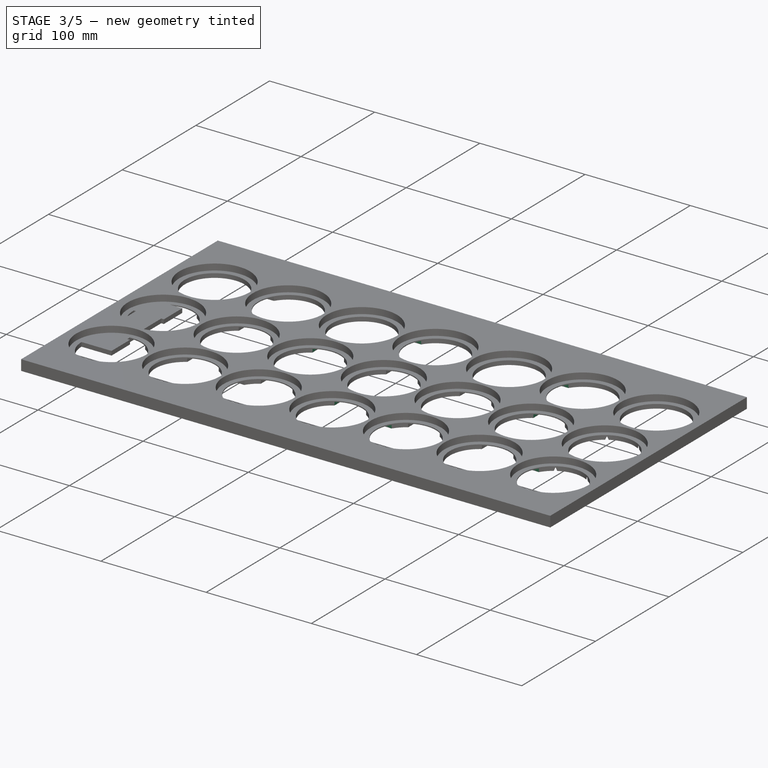
[diagram: stage 3 of 5 — iso view after this stage's code; geometry added in this stage tinted green]
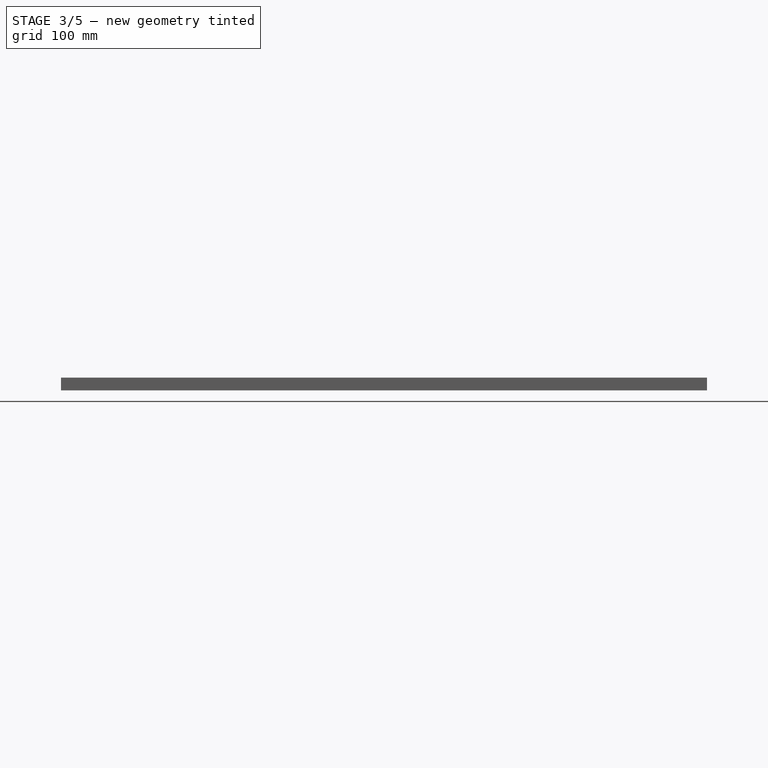
[diagram: stage 3 of 5 — front view after this stage's code; geometry added in this stage tinted green]
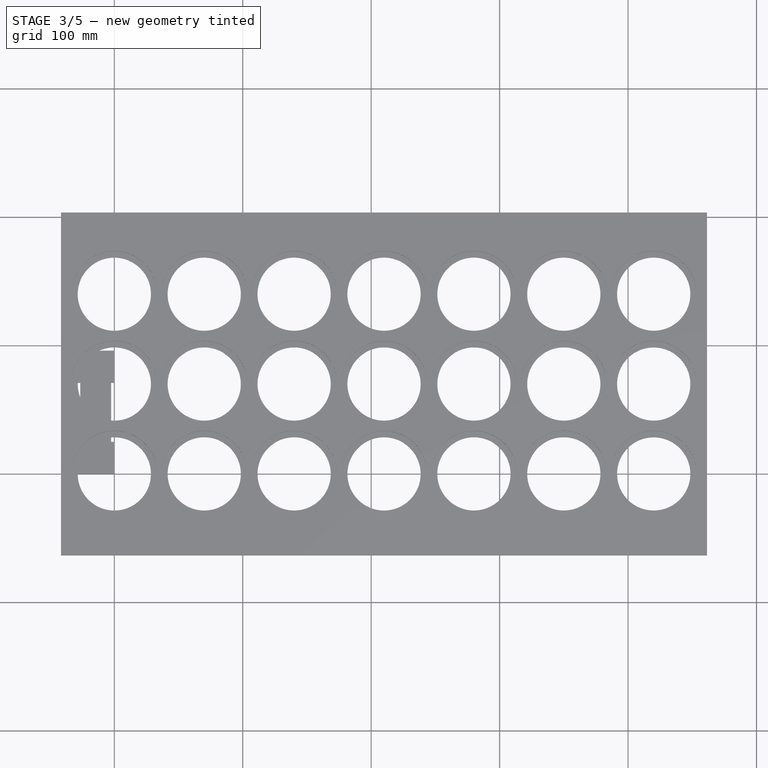
[diagram: stage 3 of 5 — top view after this stage's code; geometry added in this stage tinted green]
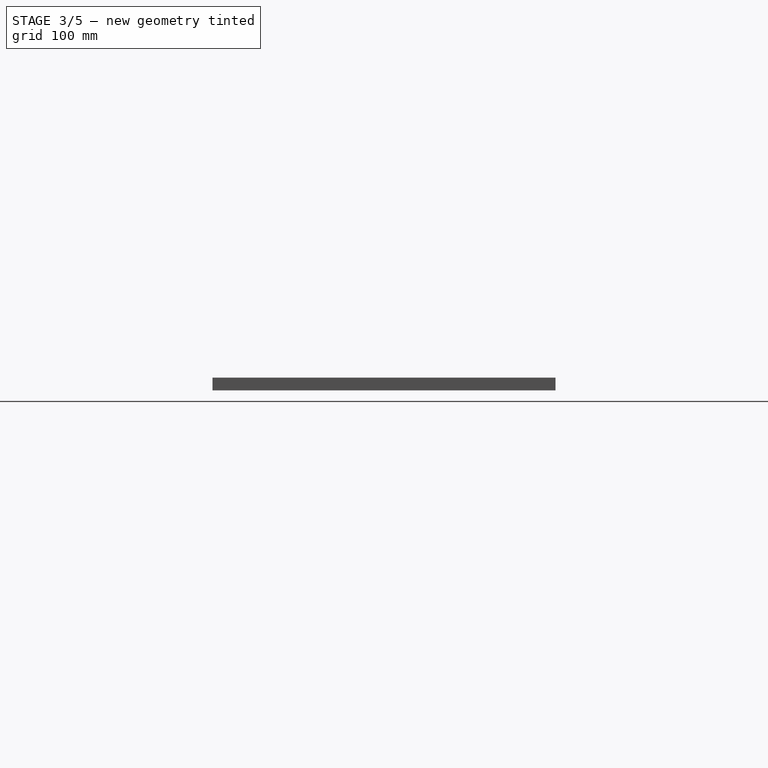
[diagram: stage 3 of 5 — right view after this stage's code; geometry added in this stage tinted green]
FEATURE [PartDesign::Body] Body007  label="Connector005"
  Group = -> [Sketch016,CopyPad008,Pad009,Sketch017,Pocket007]
  Origin = -> Origin007
  Placement = pos=(363,154,0) rot=(0,0,1;1.5708rad)
  Tip = -> Pocket007
FEATURE [PartDesign::ShapeBinder] CopyPad009
  Placement = pos=(0,0,10) rot=(0,0,1;0rad)
  TraceSupport = false
FEATURE [Sketcher::SketchObject] Sketch018
  FullyConstrained = true
  MapMode = 5
  Support = -> [XY_Plane008]
  expr: Constraints[2] = 104mm - 2 * 29mm
  sketch-geometry (13):
    g0: LineSegment StartX=-2.5 StartY=71 StartZ=0 EndX=-2.5 EndY=25 EndZ=0
    g1: LineSegment StartX=-26.5 StartY=25 StartZ=0 EndX=-26.5 EndY=71 EndZ=0
    g2: LineSegment StartX=-29 StartY=96 StartZ=0 EndX=0 EndY=96 EndZ=0
    g3: LineSegment StartX=0 StartY=96 StartZ=0 EndX=0 EndY=71 EndZ=0
    g4: LineSegment StartX=-29 StartY=71 StartZ=0 EndX=-29 EndY=96 EndZ=0
    g5: GeomPoint X=-14.5 Y=71 Z=0
    g6: LineSegment StartX=-29 StartY=0 StartZ=0 EndX=0 EndY=0 EndZ=0
    g7: LineSegment StartX=0 StartY=0 StartZ=0 EndX=0 EndY=25 EndZ=0
    g8: LineSegment StartX=-29 StartY=25 StartZ=0 EndX=-29 EndY=0 EndZ=0
    g9: LineSegment StartX=-29 StartY=71 StartZ=0 EndX=-26.5 EndY=71 EndZ=0
    g10: LineSegment StartX=-2.5 StartY=71 StartZ=0 EndX=0 EndY=71 EndZ=0
    g11: LineSegment StartX=-29 StartY=25 StartZ=0 EndX=-26.5 EndY=25 EndZ=0
    g12: LineSegment StartX=-2.5 StartY=25 StartZ=0 EndX=0 EndY=25 EndZ=0
  constraints (35):
    c: Vertical(g0)
    c: Vertical(g1)
    c: DistanceY(g0,g0) = 46
    c: DistanceX(g1,g0) = 24
    c: Coincident(g2,g3)
    c: Coincident(g4,g2)
    c: Horizontal(g2)
    c: Vertical(g3)
    c: Vertical(g4)
    c: DistanceX(g2,g2) = 29
    c: Symmetric(g4,g3,g5)
    c: Symmetric(g1,g0,g5)
    c: Coincident(g6,g7)
    c: Coincident(g8,g6)
    c: Horizontal(g6)
    c: Vertical(g7)
    c: Vertical(g8)
    c: DistanceY(g6,g2) = 96
    c: Vertical(g8,g4)
    c: Vertical(g3,g7)
    c: Equal(g3,g7)
    c: Horizontal(g7,g0)
    c: Coincident(g6,g-1)
    c: Horizontal(g0,g3)
    c: Horizontal(g1,g8)
    c: Coincident(g9,g4)
    c: Coincident(g9,g1)
    c: Coincident(g10,g0)
    c: Coincident(g10,g3)
    c: Coincident(g11,g8)
    c: Coincident(g11,g1)
    c: Coincident(g12,g0)
    c: Coincident(g12,g7)
    c: Horizontal(g1,g0)
    c: Horizontal(g1,g0)
FEATURE [PartDesign::Pad] Pad010
  Direction = (0,0,1)
  Length = 4
  Length2 = 10
  Profile = -> Sketch018
  ReferenceAxis = -> Sketch018 [N_Axis]
  Type = 0
FEATURE [PartDesign::Body] Body008  label="Connector006"
  Group = -> [Sketch018,CopyPad009,Pad010,Sketch019,Pocket008]
  Origin = -> Origin008
  Placement = pos=(225,-13,0) rot=(0,0,1;0rad)
  Tip = -> Pocket008
FEATURE [PartDesign::ShapeBinder] CopyPad010
  Placement = pos=(0,0,10) rot=(0,0,1;0rad)
  TraceSupport = false
FEATURE [Sketcher::SketchObject] Sketch020
  FullyConstrained = true
  MapMode = 5
  Support = -> [XY_Plane009]
  expr: Constraints[2] = 104mm - 2 * 29mm
  sketch-geometry (13):
    g0: LineSegment StartX=-2.5 StartY=71 StartZ=0 EndX=-2.5 EndY=25 EndZ=0
    g1: LineSegment StartX=-26.5 StartY=25 StartZ=0 EndX=-26.5 EndY=71 EndZ=0
    g2: LineSegment StartX=-29 StartY=96 StartZ=0 EndX=0 EndY=96 EndZ=0
    g3: LineSegment StartX=0 StartY=96 StartZ=0 EndX=0 EndY=71 EndZ=0
    g4: LineSegment StartX=-29 StartY=71 StartZ=0 EndX=-29 EndY=96 EndZ=0
    g5: GeomPoint X=-14.5 Y=71 Z=0
    g6: LineSegment StartX=-29 StartY=0 StartZ=0 EndX=0 EndY=0 EndZ=0
    g7: LineSegment StartX=0 StartY=0 StartZ=0 EndX=0 EndY=25 EndZ=0
    g8: LineSegment StartX=-29 StartY=25 StartZ=0 EndX=-29 EndY=0 EndZ=0
    g9: LineSegment StartX=-29 StartY=71 StartZ=0 EndX=-26.5 EndY=71 EndZ=0
    g10: LineSegment StartX=-2.5 StartY=71 StartZ=0 EndX=0 EndY=71 EndZ=0
    g11: LineSegment StartX=-29 StartY=25 StartZ=0 EndX=-26.5 EndY=25 EndZ=0
    g12: LineSegment StartX=-2.5 StartY=25 StartZ=0 EndX=0 EndY=25 EndZ=0
  constraints (35):
    c: Vertical(g0)
    c: Vertical(g1)
    c: DistanceY(g0,g0) = 46
    c: DistanceX(g1,g0) = 24
    c: Coincident(g2,g3)
    c: Coincident(g4,g2)
    c: Horizontal(g2)
    c: Vertical(g3)
    c: Vertical(g4)
    c: DistanceX(g2,g2) = 29
    c: Symmetric(g4,g3,g5)
    c: Symmetric(g1,g0,g5)
    c: Coincident(g6,g7)
    c: Coincident(g8,g6)
    c: Horizontal(g6)
    c: Vertical(g7)
    c: Vertical(g8)
    c: DistanceY(g6,g2) = 96
    c: Vertical(g8,g4)
    c: Vertical(g3,g7)
    c: Equal(g3,g7)
    c: Horizontal(g7,g0)
    c: Coincident(g6,g-1)
    c: Horizontal(g0,g3)
    c: Horizontal(g1,g8)
    c: Coincident(g9,g4)
    c: Coincident(g9,g1)
    c: Coincident(g10,g0)
    c: Coincident(g10,g3)
    c: Coincident(g11,g8)
    c: Coincident(g11,g1)
    c: Coincident(g12,g0)
    c: Coincident(g12,g7)
    c: Horizontal(g1,g0)
    c: Horizontal(g1,g0)
FEATURE [PartDesign::Pad] Pad011
  Direction = (0,0,1)
  Length = 4
  Length2 = 10
  Profile = -> Sketch020
  ReferenceAxis = -> Sketch020 [N_Axis]
  Type = 0
FEATURE [Sketcher::SketchObject] Sketch021
  ExternalGeometry = -> [Pad011]
  FullyConstrained = true
  MapMode = 5
  Placement = pos=(0,0,0) rot=(1,0,0;3.14159rad)
  Support = -> [Pad011]
  sketch-geometry (7):
    g0: Circle CenterX=-14.5 CenterY=-13 CenterZ=0 NormalX=0 NormalY=0 NormalZ=1 AngleXU=0 Radius=6.5
    g1: Circle CenterX=-14.5 CenterY=-83 CenterZ=0 NormalX=0 NormalY=0 NormalZ=1 AngleXU=0 Radius=6.5
    g2: GeomPoint X=-14.5 Y=-76.5 Z=0
    g3: GeomPoint X=-14.5 Y=-19.5 Z=0
    g4: GeomPoint X=-14.5 Y=-96 Z=0
    g5: GeomPoint X=-26.5 Y=-48 Z=0
    g6: GeomPoint X=-14.5 Y=-48 Z=0
  constraints (13):
    c: PointOnObject(g2,g1)
    c: PointOnObject(g3,g0)
    c: DistanceY(g2,g3) = 57
    c: Vertical(g3,g0)
    c: Vertical(g0,g2)
    c: Vertical(g2,g1)
    c: Diameter(g1) = 13
    c: Diameter(g0) = 13
    c: Symmetric(g-4,g-4,g4)
    c: Vertical(g4,g1)
    c: Symmetric(g-3,g-3,g5)
    c: Symmetric(g0,g1,g6)
    c: Horizontal(g6,g5)
FEATURE [PartDesign::Pocket] Pocket009
  BaseFeature = -> Pad011
  Direction = (0,0,1)
  Length = 5
  Length2 = 5
  Profile = -> Sketch021
  ReferenceAxis = -> Sketch021 [N_Axis]
  Type = 0
FEATURE [PartDesign::Body] Body009  label="Connector007"
  Group = -> [Sketch020,CopyPad010,Pad011,Sketch021,Pocket009]
  Origin = -> Origin009
  Placement = pos=(295,-13,0) rot=(0,0,1;0rad)
  Tip = -> Pocket009
FEATURE [PartDesign::ShapeBinder] CopyPad011
  Placement = pos=(0,0,10) rot=(0,0,1;0rad)
  TraceSupport = false
FEATURE [Sketcher::SketchObject] Sketch022
  FullyConstrained = true
  MapMode = 5
  Support = -> [XY_Plane010]
  expr: Constraints[2] = 104mm - 2 * 29mm
  sketch-geometry (13):
    g0: LineSegment StartX=-2.5 StartY=71 StartZ=0 EndX=-2.5 EndY=25 EndZ=0
    g1: LineSegment StartX=-26.5 StartY=25 StartZ=0 EndX=-26.5 EndY=71 EndZ=0
    g2: LineSegment StartX=-29 StartY=96 StartZ=0 EndX=0 EndY=96 EndZ=0
    g3: LineSegment StartX=0 StartY=96 StartZ=0 EndX=0 EndY=71 EndZ=0
    g4: LineSegment StartX=-29 StartY=71 StartZ=0 EndX=-29 EndY=96 EndZ=0
    g5: GeomPoint X=-14.5 Y=71 Z=0
    g6: LineSegment StartX=-29 StartY=0 StartZ=0 EndX=0 EndY=0 EndZ=0
    g7: LineSegment StartX=0 StartY=0 StartZ=0 EndX=0 EndY=25 EndZ=0
    g8: LineSegment StartX=-29 StartY=25 StartZ=0 EndX=-29 EndY=0 EndZ=0
    g9: LineSegment StartX=-29 StartY=71 StartZ=0 EndX=-26.5 EndY=71 EndZ=0
    g10: LineSegment StartX=-2.5 StartY=71 StartZ=0 EndX=0 EndY=71 EndZ=0
    g11: LineSegment StartX=-29 StartY=25 StartZ=0 EndX=-26.5 EndY=25 EndZ=0
    g12: LineSegment StartX=-2.5 StartY=25 StartZ=0 EndX=0 EndY=25 EndZ=0
  constraints (35):
    c: Vertical(g0)
    c: Vertical(g1)
    c: DistanceY(g0,g0) = 46
    c: DistanceX(g1,g0) = 24
    c: Coincident(g2,g3)
    c: Coincident(g4,g2)
    c: Horizontal(g2)
    c: Vertical(g3)
    c: Vertical(g4)
    c: DistanceX(g2,g2) = 29
    c: Symmetric(g4,g3,g5)
    c: Symmetric(g1,g0,g5)
    c: Coincident(g6,g7)
    c: Coincident(g8,g6)
    c: Horizontal(g6)
    c: Vertical(g7)
    c: Vertical(g8)
    c: DistanceY(g6,g2) = 96
    c: Vertical(g8,g4)
    c: Vertical(g3,g7)
    c: Equal(g3,g7)
    c: Horizontal(g7,g0)
    c: Coincident(g6,g-1)
    c: Horizontal(g0,g3)
    c: Horizontal(g1,g8)
    c: Coincident(g9,g4)
    c: Coincident(g9,g1)
    c: Coincident(g10,g0)
    c: Coincident(g10,g3)
    c: Coincident(g11,g8)
    c: Coincident(g11,g1)
    c: Coincident(g12,g0)
    c: Coincident(g12,g7)
    c: Horizontal(g1,g0)
    c: Horizontal(g1,g0)
FEATURE [PartDesign::Pad] Pad012
  Direction = (0,0,1)
  Length = 4
  Length2 = 10
  Profile = -> Sketch022
  ReferenceAxis = -> Sketch022 [N_Axis]
  Type = 0
FEATURE [Sketcher::SketchObject] Sketch023
  ExternalGeometry = -> [Pad012]
  FullyConstrained = true
  MapMode = 5
  Placement = pos=(0,0,0) rot=(1,0,0;3.14159rad)
  Support = -> [Pad012]
  sketch-geometry (7):
    g0: Circle CenterX=-14.5 CenterY=-13 CenterZ=0 NormalX=0 NormalY=0 NormalZ=1 AngleXU=0 Radius=6.5
    g1: Circle CenterX=-14.5 CenterY=-83 CenterZ=0 NormalX=0 NormalY=0 NormalZ=1 AngleXU=0 Radius=6.5
    g2: GeomPoint X=-14.5 Y=-76.5 Z=0
    g3: GeomPoint X=-14.5 Y=-19.5 Z=0
    g4: GeomPoint X=-14.5 Y=-96 Z=0
    g5: GeomPoint X=-26.5 Y=-48 Z=0
    g6: GeomPoint X=-14.5 Y=-48 Z=0
  constraints (13):
    c: PointOnObject(g2,g1)
    c: PointOnObject(g3,g0)
    c: DistanceY(g2,g3) = 57
    c: Vertical(g3,g0)
    c: Vertical(g0,g2)
    c: Vertical(g2,g1)
    c: Diameter(g1) = 13
    c: Diameter(g0) = 13
    c: Symmetric(g-4,g-4,g4)
    c: Vertical(g4,g1)
    c: Symmetric(g-3,g-3,g5)
    c: Symmetric(g0,g1,g6)
    c: Horizontal(g6,g5)
FEATURE [PartDesign::Pocket] Pocket010
  BaseFeature = -> Pad012
  Direction = (0,0,1)
  Length = 5
  Length2 = 5
  Profile = -> Sketch023
  ReferenceAxis = -> Sketch023 [N_Axis]
  Type = 0
FEATURE [PartDesign::Body] Body010  label="Connector008"
  Group = -> [Sketch022,CopyPad011,Pad012,Sketch023,Pocket010]
  Origin = -> Origin010
  Placement = pos=(365,-13,0) rot=(0,0,1;0rad)
  Tip = -> Pocket010
FEATURE [PartDesign::ShapeBinder] CopyPad012
  Placement = pos=(0,0,10) rot=(0,0,1;0rad)
  TraceSupport = false
FEATURE [Sketcher::SketchObject] Sketch024
  FullyConstrained = true
  MapMode = 5
  Support = -> [XY_Plane011]
  expr: Constraints[2] = 104mm - 2 * 29mm
  sketch-geometry (13):
    g0: LineSegment StartX=-2.5 StartY=71 StartZ=0 EndX=-2.5 EndY=25 EndZ=0
    g1: LineSegment StartX=-26.5 StartY=25 StartZ=0 EndX=-26.5 EndY=71 EndZ=0
    g2: LineSegment StartX=-29 StartY=96 StartZ=0 EndX=0 EndY=96 EndZ=0
    g3: LineSegment StartX=0 StartY=96 StartZ=0 EndX=0 EndY=71 EndZ=0
    g4: LineSegment StartX=-29 StartY=71 StartZ=0 EndX=-29 EndY=96 EndZ=0
    g5: GeomPoint X=-14.5 Y=71 Z=0
    g6: LineSegment StartX=-29 StartY=0 StartZ=0 EndX=0 EndY=0 EndZ=0
    g7: LineSegment StartX=0 StartY=0 StartZ=0 EndX=0 EndY=25 EndZ=0
    g8: LineSegment StartX=-29 StartY=25 StartZ=0 EndX=-29 EndY=0 EndZ=0
    g9: LineSegment StartX=-29 StartY=71 StartZ=0 EndX=-26.5 EndY=71 EndZ=0
    g10: LineSegment StartX=-2.5 StartY=71 StartZ=0 EndX=0 EndY=71 EndZ=0
    g11: LineSegment StartX=-29 StartY=25 StartZ=0 EndX=-26.5 EndY=25 EndZ=0
    g12: LineSegment StartX=-2.5 StartY=25 StartZ=0 EndX=0 EndY=25 EndZ=0
  constraints (35):
    c: Vertical(g0)
    c: Vertical(g1)
    c: DistanceY(g0,g0) = 46
    c: DistanceX(g1,g0) = 24
    c: Coincident(g2,g3)
    c: Coincident(g4,g2)
    c: Horizontal(g2)
    c: Vertical(g3)
    c: Vertical(g4)
    c: DistanceX(g2,g2) = 29
    c: Symmetric(g4,g3,g5)
    c: Symmetric(g1,g0,g5)
    c: Coincident(g6,g7)
    c: Coincident(g8,g6)
    c: Horizontal(g6)
    c: Vertical(g7)
    c: Vertical(g8)
    c: DistanceY(g6,g2) = 96
    c: Vertical(g8,g4)
    c: Vertical(g3,g7)
    c: Equal(g3,g7)
    c: Horizontal(g7,g0)
    c: Coincident(g6,g-1)
    c: Horizontal(g0,g3)
    c: Horizontal(g1,g8)
    c: Coincident(g9,g4)
    c: Coincident(g9,g1)
    c: Coincident(g10,g0)
    c: Coincident(g10,g3)
    c: Coincident(g11,g8)
    c: Coincident(g11,g1)
    c: Coincident(g12,g0)
    c: Coincident(g12,g7)
    c: Horizontal(g1,g0)
    c: Horizontal(g1,g0)
FEATURE [PartDesign::Pad] Pad013
  Direction = (0,0,1)
  Length = 4
  Length2 = 10
  Profile = -> Sketch024
  ReferenceAxis = -> Sketch024 [N_Axis]
  Type = 0
FEATURE [Sketcher::SketchObject] Sketch025
  ExternalGeometry = -> [Pad013]
  FullyConstrained = true
  MapMode = 5
  Placement = pos=(0,0,0) rot=(1,0,0;3.14159rad)
  Support = -> [Pad013]
  sketch-geometry (7):
    g0: Circle CenterX=-14.5 CenterY=-13 CenterZ=0 NormalX=0 NormalY=0 NormalZ=1 AngleXU=0 Radius=6.5
    g1: Circle CenterX=-14.5 CenterY=-83 CenterZ=0 NormalX=0 NormalY=0 NormalZ=1 AngleXU=0 Radius=6.5
    g2: GeomPoint X=-14.5 Y=-76.5 Z=0
    g3: GeomPoint X=-14.5 Y=-19.5 Z=0
    g4: GeomPoint X=-14.5 Y=-96 Z=0
    g5: GeomPoint X=-26.5 Y=-48 Z=0
    g6: GeomPoint X=-14.5 Y=-48 Z=0
  constraints (13):
    c: PointOnObject(g2,g1)
    c: PointOnObject(g3,g0)
    c: DistanceY(g2,g3) = 57
    c: Vertical(g3,g0)
    c: Vertical(g0,g2)
    c: Vertical(g2,g1)
    c: Diameter(g1) = 13
    c: Diameter(g0) = 13
    c: Symmetric(g-4,g-4,g4)
    c: Vertical(g4,g1)
    c: Symmetric(g-3,g-3,g5)
    c: Symmetric(g0,g1,g6)
    c: Horizontal(g6,g5)
FEATURE [PartDesign::Pocket] Pocket011
  BaseFeature = -> Pad013
  Direction = (0,0,1)
  Length = 5
  Length2 = 5
  Profile = -> Sketch025
  ReferenceAxis = -> Sketch025 [N_Axis]
  Type = 0
FEATURE [Sketcher::SketchObject] Sketch029
  ExternalGeometry = -> [Pocket012]
  FullyConstrained = false
  MapMode = 5
  Placement = pos=(0,0,0) rot=(1,0,0;3.14159rad)
  Support = -> [Pocket012]
  expr: Constraints[114] = .Constraints.L
  expr: Constraints[115] = .Constraints.L
  expr: Constraints[116] = .Constraints.L
  expr: Constraints[117] = .Constraints.L
  expr: Constraints[118] = .Constraints.L
  expr: Constraints[119] = .Constraints.L
  expr: Constraints[137] = .Constraints.L
  expr: Constraints[138] = .Constraints.L
  expr: Constraints[139] = .Constraints.L
  expr: Constraints[140] = .Constraints.L
  expr: Constraints[141] = .Constraints.L
  expr: Constraints[142] = .Constraints.L
  sketch-geometry (58):
    g0: LineSegment StartX=-15 StartY=-15 StartZ=0 EndX=15 EndY=-15 EndZ=0
    g1: LineSegment StartX=15 StartY=-15 StartZ=0 EndX=15 EndY=-117.742 EndZ=0
    g2: LineSegment StartX=15 StartY=-117.742 StartZ=0 EndX=-15 EndY=-117.742 EndZ=0
    g3: LineSegment StartX=-15 StartY=-117.742 StartZ=0 EndX=-15 EndY=-15 EndZ=0
    g4: GeomPoint X=0 Y=-15 Z=0
    g5: GeomPoint X=0 Y=-117.742 Z=0
    g6: LineSegment StartX=15 StartY=-124.993 StartZ=0 EndX=54.9921 EndY=-124.993 EndZ=0
    g7: LineSegment StartX=54.9921 StartY=-124.993 StartZ=0 EndX=54.9921 EndY=-154.993 EndZ=0
    g8: LineSegment StartX=54.9921 StartY=-154.993 StartZ=0 EndX=15 EndY=-154.993 EndZ=0
    g9: LineSegment StartX=15 StartY=-154.993 StartZ=0 EndX=15 EndY=-124.993 EndZ=0
    g10: LineSegment StartX=54.9921 StartY=-15 StartZ=0 EndX=84.9921 EndY=-15 EndZ=0
    g11: LineSegment StartX=84.9921 StartY=-15 StartZ=0 EndX=84.9921 EndY=-117.742 EndZ=0
    g12: LineSegment StartX=84.9921 StartY=-117.742 StartZ=0 EndX=54.9921 EndY=-117.742 EndZ=0
    g13: LineSegment StartX=54.9921 StartY=-117.742 StartZ=0 EndX=54.9921 EndY=-15 EndZ=0
    g14: LineSegment StartX=84.9921 StartY=15 StartZ=0 EndX=124.992 EndY=15 EndZ=0
    g15: LineSegment StartX=124.992 StartY=15 StartZ=0 EndX=124.992 EndY=-15 EndZ=0
    g16: LineSegment StartX=124.992 StartY=-15 StartZ=0 EndX=84.9921 EndY=-15 EndZ=0
    g17: LineSegment StartX=84.9921 StartY=-15 StartZ=0 EndX=84.9921 EndY=15 EndZ=0
    g18: LineSegment StartX=124.992 StartY=-15 StartZ=0 EndX=154.992 EndY=-15 EndZ=0
    g19: LineSegment StartX=154.992 StartY=-15 StartZ=0 EndX=154.992 EndY=-117.742 EndZ=0
    g20: LineSegment StartX=154.992 StartY=-117.742 StartZ=0 EndX=124.992 EndY=-117.742 EndZ=0
    g21: LineSegment StartX=124.992 StartY=-117.742 StartZ=0 EndX=124.992 EndY=-15 EndZ=0
    g22: LineSegment StartX=154.992 StartY=-124.993 StartZ=0 EndX=194.992 EndY=-124.993 EndZ=0
    g23: LineSegment StartX=194.992 StartY=-124.993 StartZ=0 EndX=194.992 EndY=-154.993 EndZ=0
    g24: LineSegment StartX=194.992 StartY=-154.993 StartZ=0 EndX=154.992 EndY=-154.993 EndZ=0
    g25: LineSegment StartX=154.992 StartY=-154.993 StartZ=0 EndX=154.992 EndY=-124.993 EndZ=0
    g26: LineSegment StartX=194.992 StartY=-15 StartZ=0 EndX=224.992 EndY=-15 EndZ=0
    g27: LineSegment StartX=224.992 StartY=-15 StartZ=0 EndX=224.992 EndY=-117.742 EndZ=0
    g28: LineSegment StartX=224.992 StartY=-117.742 StartZ=0 EndX=194.992 EndY=-117.742 EndZ=0
    g29: LineSegment StartX=194.992 StartY=-117.742 StartZ=0 EndX=194.992 EndY=-15 EndZ=0
    g30: LineSegment StartX=224.992 StartY=15 StartZ=0 EndX=264.992 EndY=15 EndZ=0
    g31: LineSegment StartX=264.992 StartY=15 StartZ=0 EndX=264.992 EndY=-15 EndZ=0
    g32: LineSegment StartX=264.992 StartY=-15 StartZ=0 EndX=224.992 EndY=-15 EndZ=0
    g33: LineSegment StartX=224.992 StartY=-15 StartZ=0 EndX=224.992 EndY=15 EndZ=0
    g34: LineSegment StartX=264.992 StartY=-15 StartZ=0 EndX=294.992 EndY=-15 EndZ=0
    g35: LineSegment StartX=294.992 StartY=-15 StartZ=0 EndX=294.992 EndY=-117.742 EndZ=0
    g36: LineSegment StartX=294.992 StartY=-117.742 StartZ=0 EndX=264.992 EndY=-117.742 EndZ=0
    g37: LineSegment StartX=264.992 StartY=-117.742 StartZ=0 EndX=264.992 EndY=-15 EndZ=0
    g38: LineSegment StartX=294.992 StartY=-124.993 StartZ=0 EndX=334.992 EndY=-124.993 EndZ=0
    g39: LineSegment StartX=334.992 StartY=-124.993 StartZ=0 EndX=334.992 EndY=-154.993 EndZ=0
    g40: LineSegment StartX=334.992 StartY=-154.993 StartZ=0 EndX=294.992 EndY=-154.993 EndZ=0
    g41: LineSegment StartX=294.992 StartY=-154.993 StartZ=0 EndX=294.992 EndY=-124.993 EndZ=0
    g42: LineSegment StartX=334.992 StartY=-15 StartZ=0 EndX=364.992 EndY=-15 EndZ=0
    g43: LineSegment StartX=364.992 StartY=-15 StartZ=0 EndX=364.992 EndY=-117.742 EndZ=0
    g44: LineSegment StartX=364.992 StartY=-117.742 StartZ=0 EndX=334.992 EndY=-117.742 EndZ=0
    g45: LineSegment StartX=334.992 StartY=-117.742 StartZ=0 EndX=334.992 EndY=-15 EndZ=0
    g46: LineSegment StartX=364.992 StartY=15 StartZ=0 EndX=404.992 EndY=15 EndZ=0
    g47: LineSegment StartX=404.992 StartY=15 StartZ=0 EndX=404.992 EndY=-15 EndZ=0
    g48: LineSegment StartX=404.992 StartY=-15 StartZ=0 EndX=364.992 EndY=-15 EndZ=0
    g49: LineSegment StartX=364.992 StartY=-15 StartZ=0 EndX=364.992 EndY=15 EndZ=0
    g50: LineSegment StartX=434.992 StartY=-15 StartZ=0 EndX=404.992 EndY=-15 EndZ=0
    g51: LineSegment StartX=404.992 StartY=-15 StartZ=0 EndX=404.992 EndY=-117.742 EndZ=0
    g52: LineSegment StartX=404.992 StartY=-117.742 StartZ=0 EndX=434.992 EndY=-117.742 EndZ=0
    g53: LineSegment StartX=434.992 StartY=-117.742 StartZ=0 EndX=434.992 EndY=-15 EndZ=0
    g54: GeomPoint X=69.9921 Y=-41.5008 Z=0
    g55: GeomPoint X=69.9921 Y=-15 Z=0
    g56: GeomPoint X=84.9921 Y=0 Z=0
    g57: GeomPoint X=15 Y=-139.993 Z=0
  constraints (162):
    c: Coincident(g0,g1)
    c: Coincident(g1,g2)
    c: Coincident(g2,g3)
    c: Coincident(g3,g0)
    c: Horizontal(g0)
    c: Horizontal(g2)
    c: Vertical(g1)
    c: Vertical(g3)
    c: Symmetric(g2,g1,g5)
    c: Symmetric(g0,g0,g4)
    c: PointOnObject(g4,g-2)
    c: Coincident(g6,g7)
    c: Coincident(g7,g8)
    c: Coincident(g8,g9)
    c: Coincident(g9,g6)
    c: Horizontal(g6)
    c: Horizontal(g8)
    c: Vertical(g7)
    c: Vertical(g9)
    c: Coincident(g10,g11)
    c: Coincident(g11,g12)
    c: Coincident(g12,g13)
    c: Coincident(g13,g10)
    c: Horizontal(g10)
    c: Horizontal(g12)
    c: Vertical(g11)
    c: Vertical(g13)
    c: Coincident(g14,g15)
    c: Coincident(g15,g16)
    c: Coincident(g16,g17)
    c: Coincident(g17,g14)
    c: Horizontal(g14)
    c: Horizontal(g16)
    c: Vertical(g15)
    c: Vertical(g17)
    c: Coincident(g18,g19)
    c: Coincident(g19,g20)
    c: Coincident(g20,g21)
    c: Coincident(g21,g18)
    c: Horizontal(g18)
    c: Horizontal(g20)
    c: Vertical(g19)
    c: Vertical(g21)
    c: Coincident(g22,g23)
    c: Coincident(g23,g24)
    c: Coincident(g24,g25)
    c: Coincident(g25,g22)
    c: Horizontal(g22)
    c: Horizontal(g24)
    c: Vertical(g23)
    c: Vertical(g25)
    c: Coincident(g26,g27)
    c: Coincident(g27,g28)
    c: Coincident(g28,g29)
    c: Coincident(g29,g26)
    c: Horizontal(g26)
    c: Horizontal(g28)
    c: Vertical(g27)
    c: Vertical(g29)
    c: Coincident(g30,g31)
    c: Coincident(g31,g32)
    c: Coincident(g32,g33)
    c: Coincident(g33,g30)
    c: Horizontal(g30)
    c: Horizontal(g32)
    c: Vertical(g31)
    c: Vertical(g33)
    c: Coincident(g34,g35)
    c: Coincident(g35,g36)
    c: Coincident(g36,g37)
    c: Coincident(g37,g34)
    c: Horizontal(g34)
    c: Horizontal(g36)
    c: Vertical(g35)
    c: Vertical(g37)
    c: Coincident(g38,g39)
    c: Coincident(g39,g40)
    c: Coincident(g40,g41)
    c: Coincident(g41,g38)
    c: Horizontal(g38)
    c: Horizontal(g40)
    c: Vertical(g39)
    c: Vertical(g41)
    c: Coincident(g42,g43)
    c: Coincident(g43,g44)
    c: Coincident(g44,g45)
    c: Coincident(g45,g42)
    c: Horizontal(g42)
    c: Horizontal(g44)
    c: Vertical(g43)
    c: Vertical(g45)
    c: Coincident(g46,g47)
    c: Coincident(g47,g48)
    c: Coincident(g48,g49)
    c: Coincident(g49,g46)
    c: Horizontal(g46)
    c: Horizontal(g48)
    c: Vertical(g47)
    c: Vertical(g49)
    c: Coincident(g50,g51)
    c: Coincident(g51,g52)
    c: Coincident(g52,g53)
    c: Coincident(g53,g50)
    c: Horizontal(g50)
    c: Horizontal(g52)
    c: Vertical(g51)
    c: Vertical(g53)
    c: Horizontal(g0,g10)
    c: Horizontal(g10,g18)
    c: Horizontal(g18,g26)
    c: Horizontal(g26,g34)
    c: Horizontal(g34,g42)
    c: Horizontal(g42,g50)
    c: DistanceX(g2,g2) = 30  'L'
    c: DistanceX(g12,g12) = 30
    c: DistanceX(g20,g20) = 30
    c: DistanceX(g28,g28) = 30
    c: DistanceX(g36,g36) = 30
    c: DistanceX(g44,g44) = 30
    c: DistanceX(g52,g52) = 30
    c: Horizontal(g1,g12)
    c: Horizontal(g11,g20)
    c: Horizontal(g19,g28)
    c: Horizontal(g27,g36)
    c: Horizontal(g35,g44)
    c: Horizontal(g43,g51)
    c: Vertical(g1,g6)
    c: Vertical(g6,g12)
    c: Vertical(g10,g16)
    c: Vertical(g15,g18)
    c: Vertical(g19,g22)
    c: Vertical(g22,g28)
    c: Vertical(g26,g32)
    c: Vertical(g31,g34)
    c: Vertical(g35,g38)
    c: Vertical(g42,g48)
    c: Vertical(g50,g47)
    c: DistanceY(g9,g9) = 30
    c: DistanceY(g17,g17) = 30
    c: DistanceY(g25,g25) = 30
    c: DistanceY(g33,g33) = 30
    c: DistanceY(g41,g41) = 30
    c: DistanceY(g49,g49) = 30
    c: PointOnObject(g54,g-5)
    c: Vertical(g-5,g54)
    c: Symmetric(g10,g10,g55)
    c: Vertical(g55,g54)
    c: DistanceX(g24,g24) = 40  'H'
    c: DistanceX(g14,g14) = 40
    c: DistanceX(g32,g32) = 40
    c: DistanceX(g40,g40) = 40
    c: Vertical(g44,g38)
    c: DistanceX(g46,g46) = 40
    c: Horizontal(g7,g24)
    c: Horizontal(g23,g40)
    c: Horizontal(g15,g32)
    c: Horizontal(g48,g31)
    c: Symmetric(g16,g14,g56)
    c: PointOnObject(g56,g-1)
    c: Symmetric(g6,g8,g57)
    c: Horizontal(g-3,g57)
    c: Horizontal(g10,g16)
FEATURE [PartDesign::Pocket] Pocket013
  BaseFeature = -> Pocket012
  Direction = (0,0,1)
  Length = 3.1
  Length2 = 5
  Profile = -> Sketch029
  ReferenceAxis = -> Sketch029 [N_Axis]
  Type = 0
FEATURE [PartDesign::Body] Body012  label="Suporte"
  Group = -> [Sketch026,DatumPoint001,CopyPad013,Pad014,Sketch028,Pocket012,Sketch029,Pocket013]
  Origin = -> Origin012
  Tip = -> Pocket013
FEATURE [Sketcher::SketchObject] Sketch030
  ExternalGeometry = -> [Pad015]
  FullyConstrained = true
  MapMode = 5
  Placement = pos=(0,0,0) rot=(1,0,0;3.14159rad)
  Support = -> [Pad015]
  sketch-geometry (7):
    g0: Circle CenterX=-14.5 CenterY=-13 CenterZ=0 NormalX=0 NormalY=0 NormalZ=1 AngleXU=0 Radius=6.5
    g1: Circle CenterX=-14.5 CenterY=-83 CenterZ=0 NormalX=0 NormalY=0 NormalZ=1 AngleXU=0 Radius=6.5
    g2: GeomPoint X=-14.5 Y=-76.5 Z=0
    g3: GeomPoint X=-14.5 Y=-19.5 Z=0
    g4: GeomPoint X=-14.5 Y=-96 Z=0
    g5: GeomPoint X=-26.5 Y=-48 Z=0
    g6: GeomPoint X=-14.5 Y=-48 Z=0
  constraints (13):
    c: PointOnObject(g2,g1)
    c: PointOnObject(g3,g0)
    c: DistanceY(g2,g3) = 57
    c: Vertical(g3,g0)
    c: Vertical(g0,g2)
    c: Vertical(g2,g1)
    c: Diameter(g1) = 13
    c: Diameter(g0) = 13
    c: Symmetric(g-4,g-4,g4)
    c: Vertical(g4,g1)
    c: Symmetric(g-3,g-3,g5)
    c: Symmetric(g0,g1,g6)
    c: Horizontal(g6,g5)
FEATURE [PartDesign::Pocket] Pocket014
  BaseFeature = -> Pad015
  Direction = (0,0,1)
  Length = 5
  Length2 = 5
  Profile = -> Sketch030
  ReferenceAxis = -> Sketch030 [N_Axis]
  Type = 0
FEATURE [Sketcher::SketchObject] Sketch032
  ExternalGeometry = -> [Pad016]
  FullyConstrained = true
  MapMode = 5
  Placement = pos=(0,0,0) rot=(1,0,0;3.14159rad)
  Support = -> [Pad016]
  sketch-geometry (7):
    g0: Circle CenterX=-14.5 CenterY=-13 CenterZ=0 NormalX=0 NormalY=0 NormalZ=1 AngleXU=0 Radius=6.5
    g1: Circle CenterX=-14.5 CenterY=-83 CenterZ=0 NormalX=0 NormalY=0 NormalZ=1 AngleXU=0 Radius=6.5
    g2: GeomPoint X=-14.5 Y=-76.5 Z=0
    g3: GeomPoint X=-14.5 Y=-19.5 Z=0
    g4: GeomPoint X=-14.5 Y=-96 Z=0
    g5: GeomPoint X=-26.5 Y=-48 Z=0
    g6: GeomPoint X=-14.5 Y=-48 Z=0
  constraints (13):
    c: PointOnObject(g2,g1)
    c: PointOnObject(g3,g0)
    c: DistanceY(g2,g3) = 57
    c: Vertical(g3,g0)
    c: Vertical(g0,g2)
    c: Vertical(g2,g1)
    c: Diameter(g1) = 13
    c: Diameter(g0) = 13
    c: Symmetric(g-4,g-4,g4)
    c: Vertical(g4,g1)
    c: Symmetric(g-3,g-3,g5)
    c: Symmetric(g0,g1,g6)
    c: Horizontal(g6,g5)
FEATURE [PartDesign::Pocket] Pocket015
  BaseFeature = -> Pad016
  Direction = (0,0,1)
  Length = 5
  Length2 = 5
  Profile = -> Sketch032
  ReferenceAxis = -> Sketch032 [N_Axis]
  Type = 0
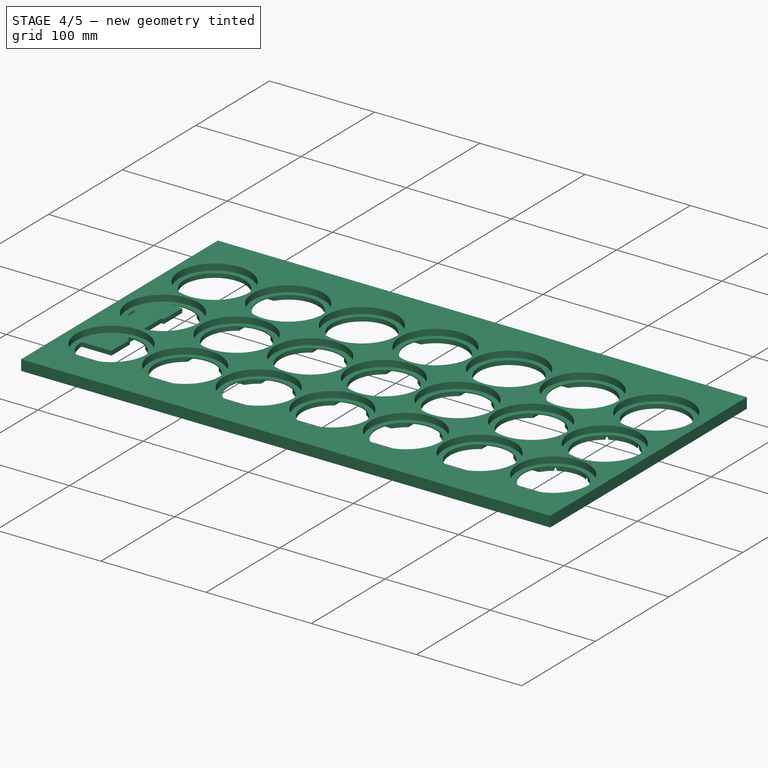
[diagram: stage 4 of 5 — iso view after this stage's code; geometry added in this stage tinted green]
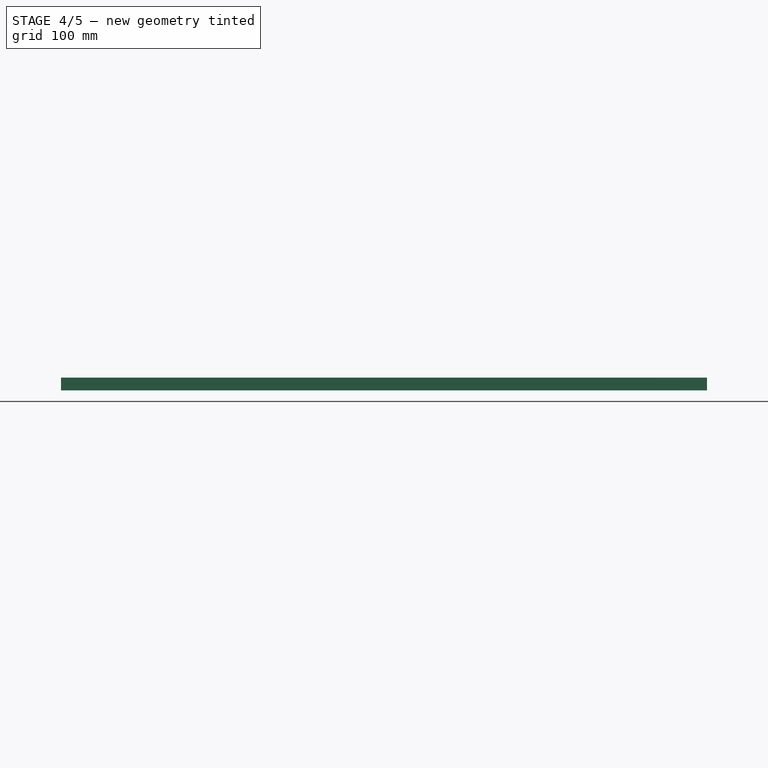
[diagram: stage 4 of 5 — front view after this stage's code; geometry added in this stage tinted green]
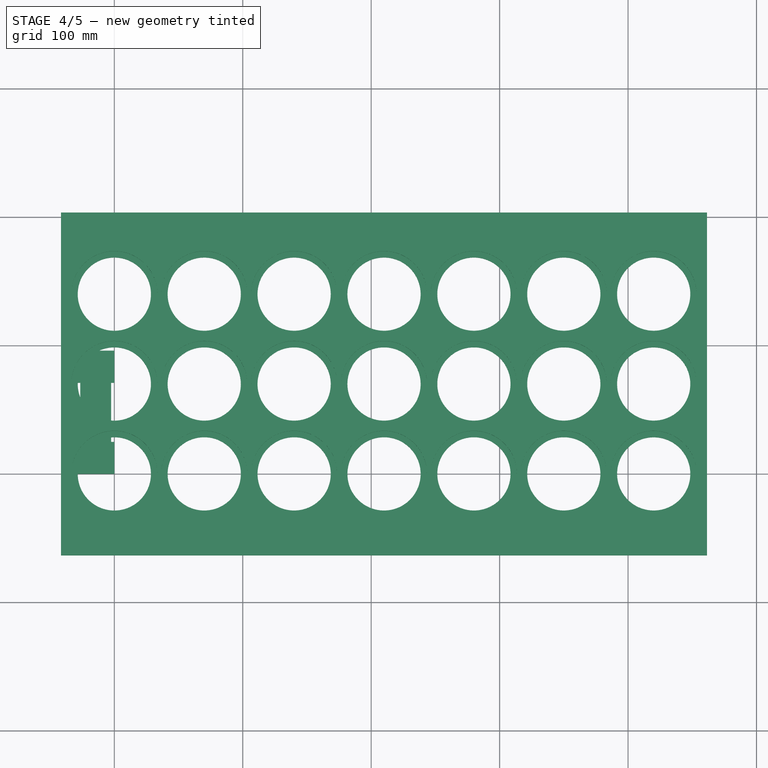
[diagram: stage 4 of 5 — top view after this stage's code; geometry added in this stage tinted green]
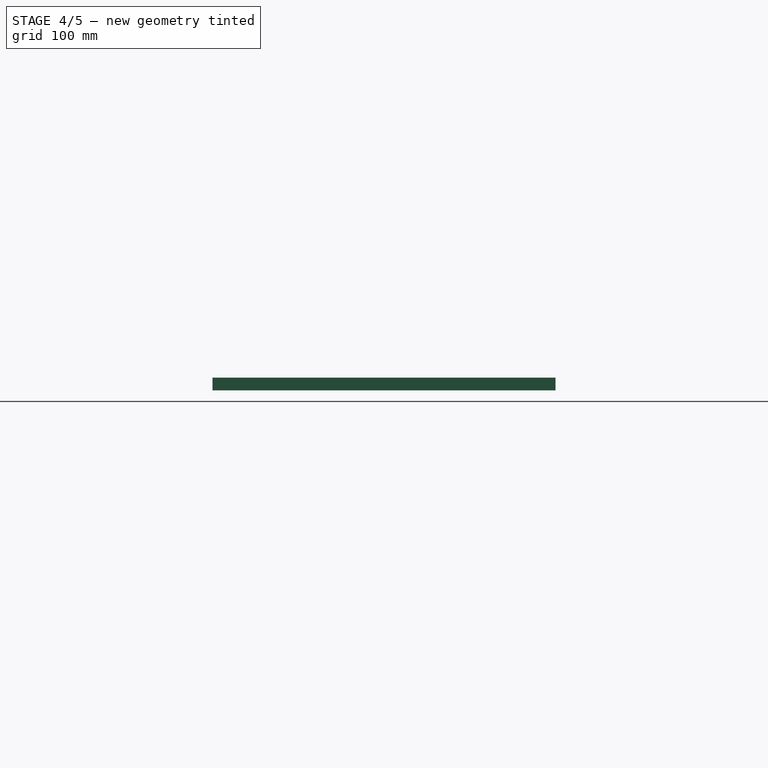
[diagram: stage 4 of 5 — right view after this stage's code; geometry added in this stage tinted green]
FEATURE [PartDesign::Body] Body002  label="Connector"
  Group = -> [Sketch004,CopyPad003,Pad004,Sketch007,Pocket002]
  Origin = -> Origin002
  Placement = pos=(15,-13,0) rot=(0,0,1;0rad)
  Tip = -> Pocket002
FEATURE [PartDesign::ShapeBinder] CopyPad004
  Placement = pos=(0,0,10) rot=(0,0,1;0rad)
  TraceSupport = false
FEATURE [Sketcher::SketchObject] Sketch008
  FullyConstrained = true
  MapMode = 5
  Support = -> [XY_Plane003]
  expr: Constraints[2] = 104mm - 2 * 29mm
  sketch-geometry (13):
    g0: LineSegment StartX=-2.5 StartY=71 StartZ=0 EndX=-2.5 EndY=25 EndZ=0
    g1: LineSegment StartX=-26.5 StartY=25 StartZ=0 EndX=-26.5 EndY=71 EndZ=0
    g2: LineSegment StartX=-29 StartY=96 StartZ=0 EndX=0 EndY=96 EndZ=0
    g3: LineSegment StartX=0 StartY=96 StartZ=0 EndX=0 EndY=71 EndZ=0
    g4: LineSegment StartX=-29 StartY=71 StartZ=0 EndX=-29 EndY=96 EndZ=0
    g5: GeomPoint X=-14.5 Y=71 Z=0
    g6: LineSegment StartX=-29 StartY=0 StartZ=0 EndX=0 EndY=0 EndZ=0
    g7: LineSegment StartX=0 StartY=0 StartZ=0 EndX=0 EndY=25 EndZ=0
    g8: LineSegment StartX=-29 StartY=25 StartZ=0 EndX=-29 EndY=0 EndZ=0
    g9: LineSegment StartX=-29 StartY=71 StartZ=0 EndX=-26.5 EndY=71 EndZ=0
    g10: LineSegment StartX=-2.5 StartY=71 StartZ=0 EndX=0 EndY=71 EndZ=0
    g11: LineSegment StartX=-29 StartY=25 StartZ=0 EndX=-26.5 EndY=25 EndZ=0
    g12: LineSegment StartX=-2.5 StartY=25 StartZ=0 EndX=0 EndY=25 EndZ=0
  constraints (35):
    c: Vertical(g0)
    c: Vertical(g1)
    c: DistanceY(g0,g0) = 46
    c: DistanceX(g1,g0) = 24
    c: Coincident(g2,g3)
    c: Coincident(g4,g2)
    c: Horizontal(g2)
    c: Vertical(g3)
    c: Vertical(g4)
    c: DistanceX(g2,g2) = 29
    c: Symmetric(g4,g3,g5)
    c: Symmetric(g1,g0,g5)
    c: Coincident(g6,g7)
    c: Coincident(g8,g6)
    c: Horizontal(g6)
    c: Vertical(g7)
    c: Vertical(g8)
    c: DistanceY(g6,g2) = 96
    c: Vertical(g8,g4)
    c: Vertical(g3,g7)
    c: Equal(g3,g7)
    c: Horizontal(g7,g0)
    c: Coincident(g6,g-1)
    c: Horizontal(g0,g3)
    c: Horizontal(g1,g8)
    c: Coincident(g9,g4)
    c: Coincident(g9,g1)
    c: Coincident(g10,g0)
    c: Coincident(g10,g3)
    c: Coincident(g11,g8)
    c: Coincident(g11,g1)
    c: Coincident(g12,g0)
    c: Coincident(g12,g7)
    c: Horizontal(g1,g0)
    c: Horizontal(g1,g0)
FEATURE [PartDesign::Pad] Pad005
  Direction = (0,0,1)
  Length = 4
  Length2 = 10
  Profile = -> Sketch008
  ReferenceAxis = -> Sketch008 [N_Axis]
  Type = 0
FEATURE [PartDesign::Body] Body003  label="Connector001"
  Group = -> [Sketch008,CopyPad004,Pad005,Sketch009,Pocket003]
  Origin = -> Origin003
  Placement = pos=(83,154,0) rot=(0,0,1;1.5708rad)
  Tip = -> Pocket003
FEATURE [PartDesign::ShapeBinder] CopyPad005
  Placement = pos=(0,0,10) rot=(0,0,1;0rad)
  TraceSupport = false
FEATURE [Sketcher::SketchObject] Sketch010
  FullyConstrained = true
  MapMode = 5
  Support = -> [XY_Plane004]
  expr: Constraints[2] = 104mm - 2 * 29mm
  sketch-geometry (13):
    g0: LineSegment StartX=-2.5 StartY=71 StartZ=0 EndX=-2.5 EndY=25 EndZ=0
    g1: LineSegment StartX=-26.5 StartY=25 StartZ=0 EndX=-26.5 EndY=71 EndZ=0
    g2: LineSegment StartX=-29 StartY=96 StartZ=0 EndX=0 EndY=96 EndZ=0
    g3: LineSegment StartX=0 StartY=96 StartZ=0 EndX=0 EndY=71 EndZ=0
    g4: LineSegment StartX=-29 StartY=71 StartZ=0 EndX=-29 EndY=96 EndZ=0
    g5: GeomPoint X=-14.5 Y=71 Z=0
    g6: LineSegment StartX=-29 StartY=0 StartZ=0 EndX=0 EndY=0 EndZ=0
    g7: LineSegment StartX=0 StartY=0 StartZ=0 EndX=0 EndY=25 EndZ=0
    g8: LineSegment StartX=-29 StartY=25 StartZ=0 EndX=-29 EndY=0 EndZ=0
    g9: LineSegment StartX=-29 StartY=71 StartZ=0 EndX=-26.5 EndY=71 EndZ=0
    g10: LineSegment StartX=-2.5 StartY=71 StartZ=0 EndX=0 EndY=71 EndZ=0
    g11: LineSegment StartX=-29 StartY=25 StartZ=0 EndX=-26.5 EndY=25 EndZ=0
    g12: LineSegment StartX=-2.5 StartY=25 StartZ=0 EndX=0 EndY=25 EndZ=0
  constraints (35):
    c: Vertical(g0)
    c: Vertical(g1)
    c: DistanceY(g0,g0) = 46
    c: DistanceX(g1,g0) = 24
    c: Coincident(g2,g3)
    c: Coincident(g4,g2)
    c: Horizontal(g2)
    c: Vertical(g3)
    c: Vertical(g4)
    c: DistanceX(g2,g2) = 29
    c: Symmetric(g4,g3,g5)
    c: Symmetric(g1,g0,g5)
    c: Coincident(g6,g7)
    c: Coincident(g8,g6)
    c: Horizontal(g6)
    c: Vertical(g7)
    c: Vertical(g8)
    c: DistanceY(g6,g2) = 96
    c: Vertical(g8,g4)
    c: Vertical(g3,g7)
    c: Equal(g3,g7)
    c: Horizontal(g7,g0)
    c: Coincident(g6,g-1)
    c: Horizontal(g0,g3)
    c: Horizontal(g1,g8)
    c: Coincident(g9,g4)
    c: Coincident(g9,g1)
    c: Coincident(g10,g0)
    c: Coincident(g10,g3)
    c: Coincident(g11,g8)
    c: Coincident(g11,g1)
    c: Coincident(g12,g0)
    c: Coincident(g12,g7)
    c: Horizontal(g1,g0)
    c: Horizontal(g1,g0)
FEATURE [PartDesign::Pad] Pad006
  Direction = (0,0,1)
  Length = 4
  Length2 = 10
  Profile = -> Sketch010
  ReferenceAxis = -> Sketch010 [N_Axis]
  Type = 0
FEATURE [Sketcher::SketchObject] Sketch011
  ExternalGeometry = -> [Pad006]
  FullyConstrained = true
  MapMode = 5
  Placement = pos=(0,0,0) rot=(1,0,0;3.14159rad)
  Support = -> [Pad006]
  sketch-geometry (7):
    g0: Circle CenterX=-14.5 CenterY=-13 CenterZ=0 NormalX=0 NormalY=0 NormalZ=1 AngleXU=0 Radius=6.5
    g1: Circle CenterX=-14.5 CenterY=-83 CenterZ=0 NormalX=0 NormalY=0 NormalZ=1 AngleXU=0 Radius=6.5
    g2: GeomPoint X=-14.5 Y=-76.5 Z=0
    g3: GeomPoint X=-14.5 Y=-19.5 Z=0
    g4: GeomPoint X=-14.5 Y=-96 Z=0
    g5: GeomPoint X=-26.5 Y=-48 Z=0
    g6: GeomPoint X=-14.5 Y=-48 Z=0
  constraints (13):
    c: PointOnObject(g2,g1)
    c: PointOnObject(g3,g0)
    c: DistanceY(g2,g3) = 57
    c: Vertical(g3,g0)
    c: Vertical(g0,g2)
    c: Vertical(g2,g1)
    c: Diameter(g1) = 13
    c: Diameter(g0) = 13
    c: Symmetric(g-4,g-4,g4)
    c: Vertical(g4,g1)
    c: Symmetric(g-3,g-3,g5)
    c: Symmetric(g0,g1,g6)
    c: Horizontal(g6,g5)
FEATURE [PartDesign::Pocket] Pocket004
  BaseFeature = -> Pad006
  Direction = (0,0,1)
  Length = 5
  Length2 = 5
  Profile = -> Sketch011
  ReferenceAxis = -> Sketch011 [N_Axis]
  Type = 0
FEATURE [PartDesign::Body] Body004  label="Connector002"
  Group = -> [Sketch010,CopyPad005,Pad006,Sketch011,Pocket004]
  Origin = -> Origin004
  Placement = pos=(83,-12,0) rot=(0,0,1;0rad)
  Tip = -> Pocket004
FEATURE [PartDesign::ShapeBinder] CopyPad006
  Placement = pos=(0,0,10) rot=(0,0,1;0rad)
  TraceSupport = false
FEATURE [Sketcher::SketchObject] Sketch012
  FullyConstrained = true
  MapMode = 5
  Support = -> [XY_Plane005]
  expr: Constraints[2] = 104mm - 2 * 29mm
  sketch-geometry (13):
    g0: LineSegment StartX=-2.5 StartY=71 StartZ=0 EndX=-2.5 EndY=25 EndZ=0
    g1: LineSegment StartX=-26.5 StartY=25 StartZ=0 EndX=-26.5 EndY=71 EndZ=0
    g2: LineSegment StartX=-29 StartY=96 StartZ=0 EndX=0 EndY=96 EndZ=0
    g3: LineSegment StartX=0 StartY=96 StartZ=0 EndX=0 EndY=71 EndZ=0
    g4: LineSegment StartX=-29 StartY=71 StartZ=0 EndX=-29 EndY=96 EndZ=0
    g5: GeomPoint X=-14.5 Y=71 Z=0
    g6: LineSegment StartX=-29 StartY=0 StartZ=0 EndX=0 EndY=0 EndZ=0
    g7: LineSegment StartX=0 StartY=0 StartZ=0 EndX=0 EndY=25 EndZ=0
    g8: LineSegment StartX=-29 StartY=25 StartZ=0 EndX=-29 EndY=0 EndZ=0
    g9: LineSegment StartX=-29 StartY=71 StartZ=0 EndX=-26.5 EndY=71 EndZ=0
    g10: LineSegment StartX=-2.5 StartY=71 StartZ=0 EndX=0 EndY=71 EndZ=0
    g11: LineSegment StartX=-29 StartY=25 StartZ=0 EndX=-26.5 EndY=25 EndZ=0
    g12: LineSegment StartX=-2.5 StartY=25 StartZ=0 EndX=0 EndY=25 EndZ=0
  constraints (35):
    c: Vertical(g0)
    c: Vertical(g1)
    c: DistanceY(g0,g0) = 46
    c: DistanceX(g1,g0) = 24
    c: Coincident(g2,g3)
    c: Coincident(g4,g2)
    c: Horizontal(g2)
    c: Vertical(g3)
    c: Vertical(g4)
    c: DistanceX(g2,g2) = 29
    c: Symmetric(g4,g3,g5)
    c: Symmetric(g1,g0,g5)
    c: Coincident(g6,g7)
    c: Coincident(g8,g6)
    c: Horizontal(g6)
    c: Vertical(g7)
    c: Vertical(g8)
    c: DistanceY(g6,g2) = 96
    c: Vertical(g8,g4)
    c: Vertical(g3,g7)
    c: Equal(g3,g7)
    c: Horizontal(g7,g0)
    c: Coincident(g6,g-1)
    c: Horizontal(g0,g3)
    c: Horizontal(g1,g8)
    c: Coincident(g9,g4)
    c: Coincident(g9,g1)
    c: Coincident(g10,g0)
    c: Coincident(g10,g3)
    c: Coincident(g11,g8)
    c: Coincident(g11,g1)
    c: Coincident(g12,g0)
    c: Coincident(g12,g7)
    c: Horizontal(g1,g0)
    c: Horizontal(g1,g0)
FEATURE [PartDesign::Pad] Pad007
  Direction = (0,0,1)
  Length = 4
  Length2 = 10
  Profile = -> Sketch012
  ReferenceAxis = -> Sketch012 [N_Axis]
  Type = 0
FEATURE [Sketcher::SketchObject] Sketch013
  ExternalGeometry = -> [Pad007]
  FullyConstrained = true
  MapMode = 5
  Placement = pos=(0,0,0) rot=(1,0,0;3.14159rad)
  Support = -> [Pad007]
  sketch-geometry (7):
    g0: Circle CenterX=-14.5 CenterY=-13 CenterZ=0 NormalX=0 NormalY=0 NormalZ=1 AngleXU=0 Radius=6.5
    g1: Circle CenterX=-14.5 CenterY=-83 CenterZ=0 NormalX=0 NormalY=0 NormalZ=1 AngleXU=0 Radius=6.5
    g2: GeomPoint X=-14.5 Y=-76.5 Z=0
    g3: GeomPoint X=-14.5 Y=-19.5 Z=0
    g4: GeomPoint X=-14.5 Y=-96 Z=0
    g5: GeomPoint X=-26.5 Y=-48 Z=0
    g6: GeomPoint X=-14.5 Y=-48 Z=0
  constraints (13):
    c: PointOnObject(g2,g1)
    c: PointOnObject(g3,g0)
    c: DistanceY(g2,g3) = 57
    c: Vertical(g3,g0)
    c: Vertical(g0,g2)
    c: Vertical(g2,g1)
    c: Diameter(g1) = 13
    c: Diameter(g0) = 13
    c: Symmetric(g-4,g-4,g4)
    c: Vertical(g4,g1)
    c: Symmetric(g-3,g-3,g5)
    c: Symmetric(g0,g1,g6)
    c: Horizontal(g6,g5)
FEATURE [PartDesign::Pocket] Pocket005
  BaseFeature = -> Pad007
  Direction = (0,0,1)
  Length = 5
  Length2 = 5
  Profile = -> Sketch013
  ReferenceAxis = -> Sketch013 [N_Axis]
  Type = 0
FEATURE [PartDesign::Body] Body005  label="Connector003"
  Group = -> [Sketch012,CopyPad006,Pad007,Sketch013,Pocket005]
  Origin = -> Origin005
  Placement = pos=(154,-13,0) rot=(0,0,1;0rad)
  Tip = -> Pocket005
FEATURE [PartDesign::ShapeBinder] CopyPad007
  Placement = pos=(0,0,10) rot=(0,0,1;0rad)
  TraceSupport = false
FEATURE [Sketcher::SketchObject] Sketch014
  FullyConstrained = true
  MapMode = 5
  Support = -> [XY_Plane006]
  expr: Constraints[2] = 104mm - 2 * 29mm
  sketch-geometry (13):
    g0: LineSegment StartX=-2.5 StartY=71 StartZ=0 EndX=-2.5 EndY=25 EndZ=0
    g1: LineSegment StartX=-26.5 StartY=25 StartZ=0 EndX=-26.5 EndY=71 EndZ=0
    g2: LineSegment StartX=-29 StartY=96 StartZ=0 EndX=0 EndY=96 EndZ=0
    g3: LineSegment StartX=0 StartY=96 StartZ=0 EndX=0 EndY=71 EndZ=0
    g4: LineSegment StartX=-29 StartY=71 StartZ=0 EndX=-29 EndY=96 EndZ=0
    g5: GeomPoint X=-14.5 Y=71 Z=0
    g6: LineSegment StartX=-29 StartY=0 StartZ=0 EndX=0 EndY=0 EndZ=0
    g7: LineSegment StartX=0 StartY=0 StartZ=0 EndX=0 EndY=25 EndZ=0
    g8: LineSegment StartX=-29 StartY=25 StartZ=0 EndX=-29 EndY=0 EndZ=0
    g9: LineSegment StartX=-29 StartY=71 StartZ=0 EndX=-26.5 EndY=71 EndZ=0
    g10: LineSegment StartX=-2.5 StartY=71 StartZ=0 EndX=0 EndY=71 EndZ=0
    g11: LineSegment StartX=-29 StartY=25 StartZ=0 EndX=-26.5 EndY=25 EndZ=0
    g12: LineSegment StartX=-2.5 StartY=25 StartZ=0 EndX=0 EndY=25 EndZ=0
  constraints (35):
    c: Vertical(g0)
    c: Vertical(g1)
    c: DistanceY(g0,g0) = 46
    c: DistanceX(g1,g0) = 24
    c: Coincident(g2,g3)
    c: Coincident(g4,g2)
    c: Horizontal(g2)
    c: Vertical(g3)
    c: Vertical(g4)
    c: DistanceX(g2,g2) = 29
    c: Symmetric(g4,g3,g5)
    c: Symmetric(g1,g0,g5)
    c: Coincident(g6,g7)
    c: Coincident(g8,g6)
    c: Horizontal(g6)
    c: Vertical(g7)
    c: Vertical(g8)
    c: DistanceY(g6,g2) = 96
    c: Vertical(g8,g4)
    c: Vertical(g3,g7)
    c: Equal(g3,g7)
    c: Horizontal(g7,g0)
    c: Coincident(g6,g-1)
    c: Horizontal(g0,g3)
    c: Horizontal(g1,g8)
    c: Coincident(g9,g4)
    c: Coincident(g9,g1)
    c: Coincident(g10,g0)
    c: Coincident(g10,g3)
    c: Coincident(g11,g8)
    c: Coincident(g11,g1)
    c: Coincident(g12,g0)
    c: Coincident(g12,g7)
    c: Horizontal(g1,g0)
    c: Horizontal(g1,g0)
FEATURE [PartDesign::Pad] Pad008
  Direction = (0,0,1)
  Length = 4
  Length2 = 10
  Profile = -> Sketch014
  ReferenceAxis = -> Sketch014 [N_Axis]
  Type = 0
FEATURE [Sketcher::SketchObject] Sketch015
  ExternalGeometry = -> [Pad008]
  FullyConstrained = true
  MapMode = 5
  Placement = pos=(0,0,0) rot=(1,0,0;3.14159rad)
  Support = -> [Pad008]
  sketch-geometry (7):
    g0: Circle CenterX=-14.5 CenterY=-13 CenterZ=0 NormalX=0 NormalY=0 NormalZ=1 AngleXU=0 Radius=6.5
    g1: Circle CenterX=-14.5 CenterY=-83 CenterZ=0 NormalX=0 NormalY=0 NormalZ=1 AngleXU=0 Radius=6.5
    g2: GeomPoint X=-14.5 Y=-76.5 Z=0
    g3: GeomPoint X=-14.5 Y=-19.5 Z=0
    g4: GeomPoint X=-14.5 Y=-96 Z=0
    g5: GeomPoint X=-26.5 Y=-48 Z=0
    g6: GeomPoint X=-14.5 Y=-48 Z=0
  constraints (13):
    c: PointOnObject(g2,g1)
    c: PointOnObject(g3,g0)
    c: DistanceY(g2,g3) = 57
    c: Vertical(g3,g0)
    c: Vertical(g0,g2)
    c: Vertical(g2,g1)
    c: Diameter(g1) = 13
    c: Diameter(g0) = 13
    c: Symmetric(g-4,g-4,g4)
    c: Vertical(g4,g1)
    c: Symmetric(g-3,g-3,g5)
    c: Symmetric(g0,g1,g6)
    c: Horizontal(g6,g5)
FEATURE [PartDesign::Pocket] Pocket006
  BaseFeature = -> Pad008
  Direction = (0,0,1)
  Length = 5
  Length2 = 5
  Profile = -> Sketch015
  ReferenceAxis = -> Sketch015 [N_Axis]
  Type = 0
FEATURE [PartDesign::Body] Body006  label="Connector004"
  Group = -> [Sketch014,CopyPad007,Pad008,Sketch015,Pocket006]
  Origin = -> Origin006
  Placement = pos=(222,155,0) rot=(0,0,1;1.5708rad)
  Tip = -> Pocket006
FEATURE [PartDesign::ShapeBinder] CopyPad008
  Placement = pos=(0,0,10) rot=(0,0,1;0rad)
  TraceSupport = false
FEATURE [Sketcher::SketchObject] Sketch016
  FullyConstrained = true
  MapMode = 5
  Support = -> [XY_Plane007]
  expr: Constraints[2] = 104mm - 2 * 29mm
  sketch-geometry (13):
    g0: LineSegment StartX=-2.5 StartY=71 StartZ=0 EndX=-2.5 EndY=25 EndZ=0
    g1: LineSegment StartX=-26.5 StartY=25 StartZ=0 EndX=-26.5 EndY=71 EndZ=0
    g2: LineSegment StartX=-29 StartY=96 StartZ=0 EndX=0 EndY=96 EndZ=0
    g3: LineSegment StartX=0 StartY=96 StartZ=0 EndX=0 EndY=71 EndZ=0
    g4: LineSegment StartX=-29 StartY=71 StartZ=0 EndX=-29 EndY=96 EndZ=0
    g5: GeomPoint X=-14.5 Y=71 Z=0
    g6: LineSegment StartX=-29 StartY=0 StartZ=0 EndX=0 EndY=0 EndZ=0
    g7: LineSegment StartX=0 StartY=0 StartZ=0 EndX=0 EndY=25 EndZ=0
    g8: LineSegment StartX=-29 StartY=25 StartZ=0 EndX=-29 EndY=0 EndZ=0
    g9: LineSegment StartX=-29 StartY=71 StartZ=0 EndX=-26.5 EndY=71 EndZ=0
    g10: LineSegment StartX=-2.5 StartY=71 StartZ=0 EndX=0 EndY=71 EndZ=0
    g11: LineSegment StartX=-29 StartY=25 StartZ=0 EndX=-26.5 EndY=25 EndZ=0
    g12: LineSegment StartX=-2.5 StartY=25 StartZ=0 EndX=0 EndY=25 EndZ=0
  constraints (35):
    c: Vertical(g0)
    c: Vertical(g1)
    c: DistanceY(g0,g0) = 46
    c: DistanceX(g1,g0) = 24
    c: Coincident(g2,g3)
    c: Coincident(g4,g2)
    c: Horizontal(g2)
    c: Vertical(g3)
    c: Vertical(g4)
    c: DistanceX(g2,g2) = 29
    c: Symmetric(g4,g3,g5)
    c: Symmetric(g1,g0,g5)
    c: Coincident(g6,g7)
    c: Coincident(g8,g6)
    c: Horizontal(g6)
    c: Vertical(g7)
    c: Vertical(g8)
    c: DistanceY(g6,g2) = 96
    c: Vertical(g8,g4)
    c: Vertical(g3,g7)
    c: Equal(g3,g7)
    c: Horizontal(g7,g0)
    c: Coincident(g6,g-1)
    c: Horizontal(g0,g3)
    c: Horizontal(g1,g8)
    c: Coincident(g9,g4)
    c: Coincident(g9,g1)
    c: Coincident(g10,g0)
    c: Coincident(g10,g3)
    c: Coincident(g11,g8)
    c: Coincident(g11,g1)
    c: Coincident(g12,g0)
    c: Coincident(g12,g7)
    c: Horizontal(g1,g0)
    c: Horizontal(g1,g0)
FEATURE [PartDesign::Pad] Pad009
  Direction = (0,0,1)
  Length = 4
  Length2 = 10
  Profile = -> Sketch016
  ReferenceAxis = -> Sketch016 [N_Axis]
  Type = 0
FEATURE [Sketcher::SketchObject] Sketch017
  ExternalGeometry = -> [Pad009]
  FullyConstrained = true
  MapMode = 5
  Placement = pos=(0,0,0) rot=(1,0,0;3.14159rad)
  Support = -> [Pad009]
  sketch-geometry (7):
    g0: Circle CenterX=-14.5 CenterY=-13 CenterZ=0 NormalX=0 NormalY=0 NormalZ=1 AngleXU=0 Radius=6.5
    g1: Circle CenterX=-14.5 CenterY=-83 CenterZ=0 NormalX=0 NormalY=0 NormalZ=1 AngleXU=0 Radius=6.5
    g2: GeomPoint X=-14.5 Y=-76.5 Z=0
    g3: GeomPoint X=-14.5 Y=-19.5 Z=0
    g4: GeomPoint X=-14.5 Y=-96 Z=0
    g5: GeomPoint X=-26.5 Y=-48 Z=0
    g6: GeomPoint X=-14.5 Y=-48 Z=0
  constraints (13):
    c: PointOnObject(g2,g1)
    c: PointOnObject(g3,g0)
    c: DistanceY(g2,g3) = 57
    c: Vertical(g3,g0)
    c: Vertical(g0,g2)
    c: Vertical(g2,g1)
    c: Diameter(g1) = 13
    c: Diameter(g0) = 13
    c: Symmetric(g-4,g-4,g4)
    c: Vertical(g4,g1)
    c: Symmetric(g-3,g-3,g5)
    c: Symmetric(g0,g1,g6)
    c: Horizontal(g6,g5)
FEATURE [PartDesign::Pocket] Pocket007
  BaseFeature = -> Pad009
  Direction = (0,0,1)
  Length = 5
  Length2 = 5
  Profile = -> Sketch017
  ReferenceAxis = -> Sketch017 [N_Axis]
  Type = 0
FEATURE [Sketcher::SketchObject] Sketch019
  ExternalGeometry = -> [Pad010]
  FullyConstrained = true
  MapMode = 5
  Placement = pos=(0,0,0) rot=(1,0,0;3.14159rad)
  Support = -> [Pad010]
  sketch-geometry (7):
    g0: Circle CenterX=-14.5 CenterY=-13 CenterZ=0 NormalX=0 NormalY=0 NormalZ=1 AngleXU=0 Radius=6.5
    g1: Circle CenterX=-14.5 CenterY=-83 CenterZ=0 NormalX=0 NormalY=0 NormalZ=1 AngleXU=0 Radius=6.5
    g2: GeomPoint X=-14.5 Y=-76.5 Z=0
    g3: GeomPoint X=-14.5 Y=-19.5 Z=0
    g4: GeomPoint X=-14.5 Y=-96 Z=0
    g5: GeomPoint X=-26.5 Y=-48 Z=0
    g6: GeomPoint X=-14.5 Y=-48 Z=0
  constraints (13):
    c: PointOnObject(g2,g1)
    c: PointOnObject(g3,g0)
    c: DistanceY(g2,g3) = 57
    c: Vertical(g3,g0)
    c: Vertical(g0,g2)
    c: Vertical(g2,g1)
    c: Diameter(g1) = 13
    c: Diameter(g0) = 13
    c: Symmetric(g-4,g-4,g4)
    c: Vertical(g4,g1)
    c: Symmetric(g-3,g-3,g5)
    c: Symmetric(g0,g1,g6)
    c: Horizontal(g6,g5)
FEATURE [PartDesign::Pocket] Pocket008
  BaseFeature = -> Pad010
  Direction = (0,0,1)
  Length = 5
  Length2 = 5
  Profile = -> Sketch019
  ReferenceAxis = -> Sketch019 [N_Axis]
  Type = 0
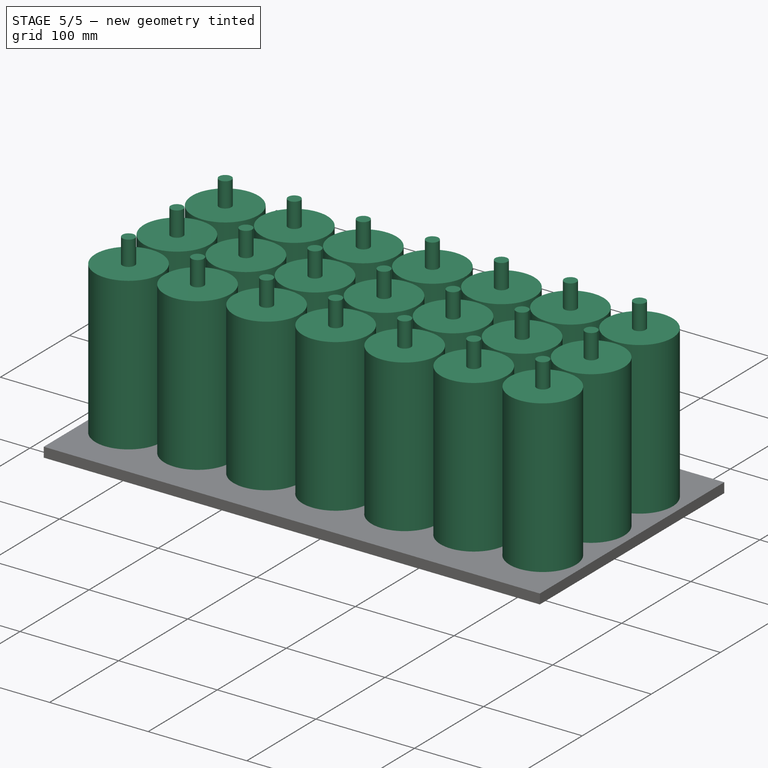
[diagram: stage 5 of 5 — iso view after this stage's code; geometry added in this stage tinted green]
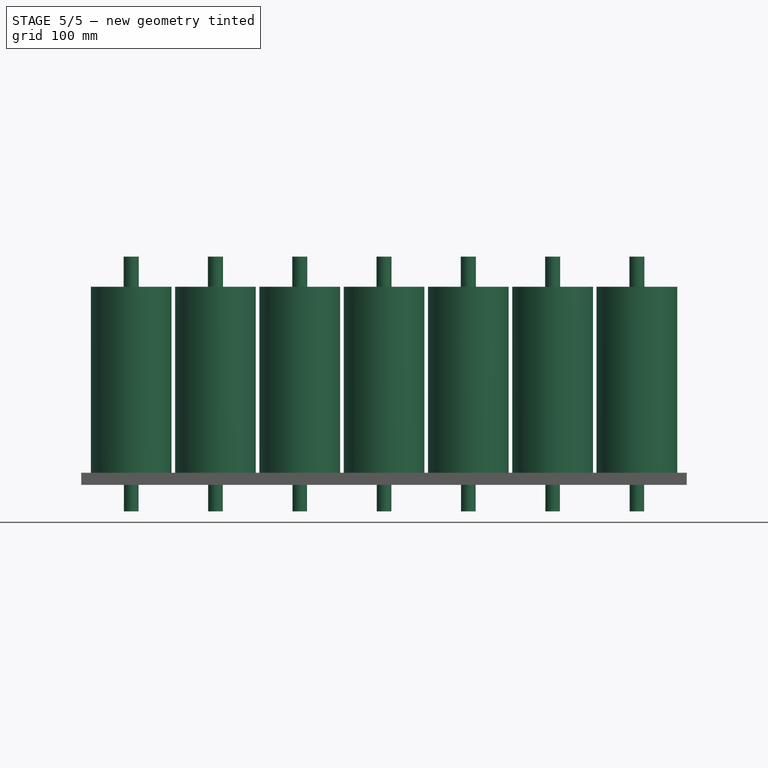
[diagram: stage 5 of 5 — front view after this stage's code; geometry added in this stage tinted green]
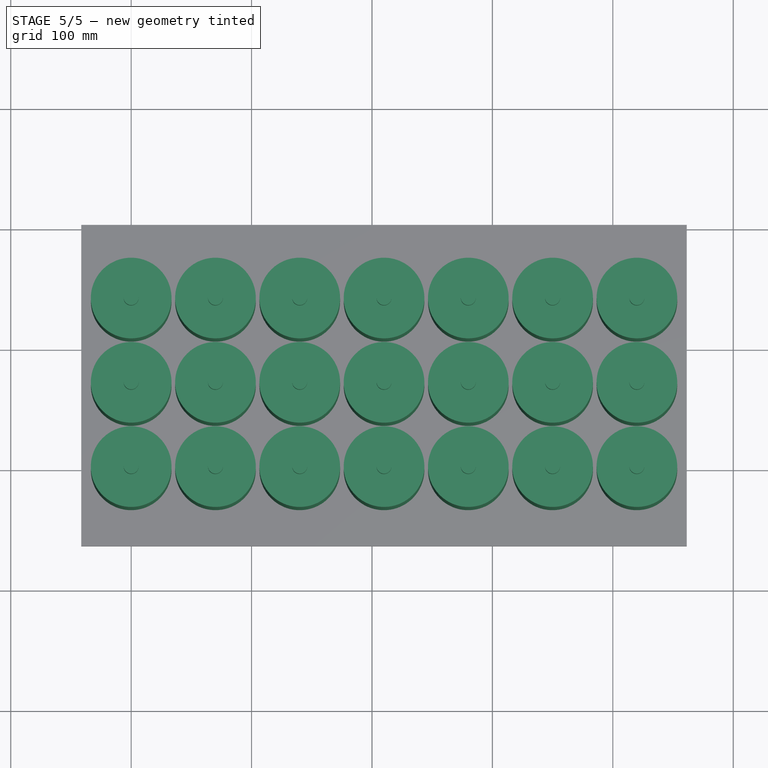
[diagram: stage 5 of 5 — top view after this stage's code; geometry added in this stage tinted green]
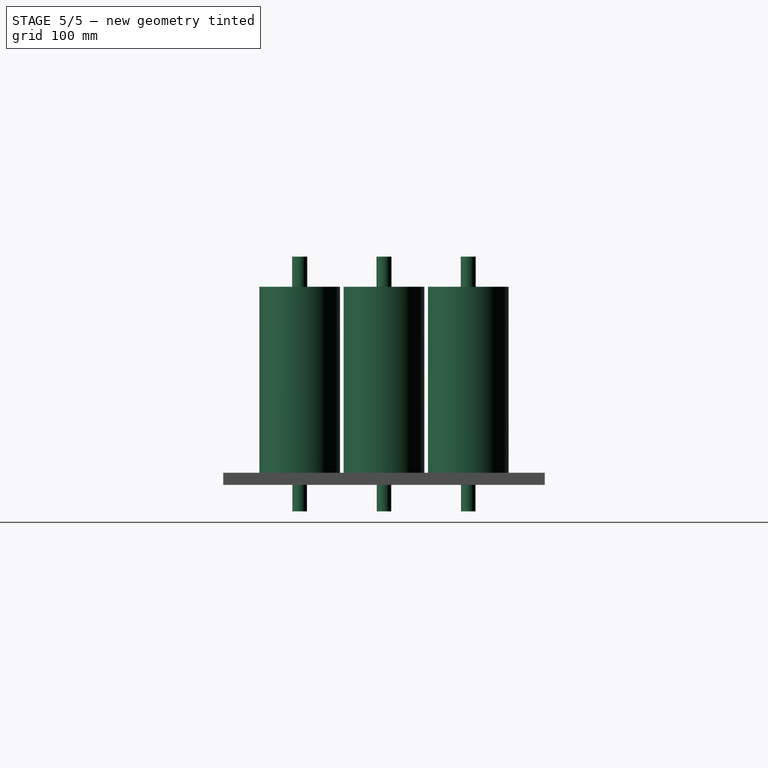
[diagram: stage 5 of 5 — right view after this stage's code; geometry added in this stage tinted green]
FEATURE [Sketcher::SketchObject] Sketch
  FullyConstrained = true
  MapMode = 5
  Support = -> [XY_Plane]
  sketch-geometry (1):
    g0: Circle CenterX=0 CenterY=0 CenterZ=0 NormalX=0 NormalY=0 NormalZ=1 AngleXU=0 Radius=33.5
  constraints (2):
    c: Coincident(g0,g-1)
    c: Diameter(g0) = 67
FEATURE [PartDesign::Pad] Pad
  Direction = (0,0,1)
  Length = 161.5
  Length2 = 10
  Profile = -> Sketch
  ReferenceAxis = -> Sketch [N_Axis]
  Type = 0
FEATURE [Sketcher::SketchObject] Sketch001
  FullyConstrained = true
  MapMode = 5
  Placement = pos=(0,0,161.5) rot=(0,0,1;0rad)
  Support = -> [Pad]
  sketch-geometry (1):
    g0: Circle CenterX=0 CenterY=0 CenterZ=0 NormalX=0 NormalY=0 NormalZ=1 AngleXU=0 Radius=6.25
  constraints (2):
    c: Coincident(g0,g-1)
    c: Diameter(g0) = 12.5
FEATURE [PartDesign::Pad] Pad001
  BaseFeature = -> Pad
  Direction = (0,0,1)
  Length = 25
  Length2 = 10
  Profile = -> Sketch001
  ReferenceAxis = -> Sketch001 [N_Axis]
  Type = 0
FEATURE [Sketcher::SketchObject] Sketch002
  FullyConstrained = true
  MapMode = 5
  Placement = pos=(0,0,0) rot=(1,0,0;3.14159rad)
  Support = -> [Pad001]
  sketch-geometry (1):
    g0: Circle CenterX=0 CenterY=0 CenterZ=0 NormalX=0 NormalY=0 NormalZ=1 AngleXU=0 Radius=6.05
  constraints (2):
    c: Coincident(g0,g-1)
    c: Diameter(g0) = 12.1
FEATURE [PartDesign::Pad] Pad002
  BaseFeature = -> Pad001
  Direction = (0,0,-1)
  Length = 25
  Length2 = 10
  Profile = -> Sketch002
  ReferenceAxis = -> Sketch002 [N_Axis]
  Type = 0
FEATURE [PartDesign::Body] Body  label="Bateria"
  Group = -> [Sketch,Pad,Sketch001,Pad001,Sketch002,Pad002]
  Origin = -> Origin
  Tip = -> Pad002
FEATURE [Part::FeaturePython] Array  label="Baterias"  # Draft array (typed FeaturePython)
  AlwaysSyncPlacement = false
  Angle = 360
  ArrayType = 0
  Axis = (0,0,1)
  Base = -> Body
  Center = (0,0,0)
  Count = 21
  ExpandArray = false
  Fuse = false
  IntervalAxis = (0,0,0)
  IntervalX = (70,0,0)
  IntervalY = (0,70,0)
  IntervalZ = (0,0,100)
  NumberCircles = 3
  NumberPolar = 5
  NumberX = 7
  NumberY = 3
  NumberZ = 1
  Placement = pos=(0,0,3) rot=(0,0,1;0rad)
  PlacementList = 21 placements: [(0,0,0),(0,70,0),(0,140,0),(70,0,0),(70,70,0),(70,140,0),(140,0,0),(140,70,0),(140,140,0),(210,0,0),(210,70,0),(210,140,0),(280,0,0),(280,70,0),(280,140,0),(350,0,0),(350,70,0),(350,140,0),(420,0,0),(420,70,0),(420,140,0)]
  RadialDistance = 50
  ScaleList = (21) [(1,1,1),(1,1,1),(1,1,1),(1,1,1),(1,1,1),(1,1,1),(1,1,1),(1,1,1),(1,1,1),(1,1,1),(1,1,1),(1,1,1),(1,1,1),(1,1,1),(1,1,1),(1,1,1),(1,1,1),(1,1,1),(1,1,1),(1,1,1),(1,1,1)]
  Symmetry = 1
  TangentialDistance = 25
FEATURE [Sketcher::SketchObject] Sketch003
  FullyConstrained = false
  MapMode = 5
  Support = -> [XY_Plane001]
  expr: .Constraints.D = 57mm
  sketch-geometry (50):
    g0: LineSegment StartX=-41.5 StartY=-63.5 StartZ=0 EndX=461.449 EndY=-63.5 EndZ=0
    g1: LineSegment StartX=461.449 StartY=-63.5 StartZ=0 EndX=461.449 EndY=203.518 EndZ=0
    g2: LineSegment StartX=461.449 StartY=203.518 StartZ=0 EndX=-41.5 EndY=203.518 EndZ=0
    g3: LineSegment StartX=-41.5 StartY=203.518 StartZ=0 EndX=-41.5 EndY=-63.5 EndZ=0
    g4: Circle CenterX=0 CenterY=0 CenterZ=0 NormalX=0 NormalY=0 NormalZ=1 AngleXU=0 Radius=28.5
    g5: GeomPoint X=0 Y=-28.5 Z=0
    g6: LineSegment StartX=0 StartY=0 StartZ=0 EndX=-0.004287 EndY=69.9963 EndZ=0
    g7: LineSegment StartX=0 StartY=0 StartZ=0 EndX=69.9963 EndY=0.004287 EndZ=0
    g8: GeomPoint X=-28.5 Y=-4.38734e-10 Z=0
    g9: GeomPoint X=28.5 Y=-4.38734e-10 Z=0
    g10: Circle CenterX=-0.004335 CenterY=69.9964 CenterZ=0 NormalX=0 NormalY=0 NormalZ=1 AngleXU=0 Radius=28.5
    g11: LineSegment StartX=0 StartY=0 StartZ=0 EndX=-0.004335 EndY=69.9964 EndZ=0
    g12: Circle CenterX=-0.00867 CenterY=139.993 CenterZ=0 NormalX=0 NormalY=0 NormalZ=1 AngleXU=0 Radius=28.5
    g13: LineSegment StartX=-0.004335 StartY=69.9964 StartZ=0 EndX=-0.00867 EndY=139.993 EndZ=0
    g14: Circle CenterX=69.9964 CenterY=0.004335 CenterZ=0 NormalX=0 NormalY=0 NormalZ=1 AngleXU=0 Radius=28.5
    g15: LineSegment StartX=0 StartY=0 StartZ=0 EndX=69.9964 EndY=0.004335 EndZ=0
    g16: Circle CenterX=69.9921 CenterY=70.0008 CenterZ=0 NormalX=0 NormalY=0 NormalZ=1 AngleXU=0 Radius=28.5
    g17: LineSegment StartX=69.9964 StartY=0.004335 StartZ=0 EndX=69.9921 EndY=70.0008 EndZ=0
    g18: Circle CenterX=69.9878 CenterY=139.997 CenterZ=0 NormalX=0 NormalY=0 NormalZ=1 AngleXU=0 Radius=28.5
    g19: LineSegment StartX=69.9921 StartY=70.0008 StartZ=0 EndX=69.9878 EndY=139.997 EndZ=0
    g20: Circle CenterX=139.993 CenterY=0.00867 CenterZ=0 NormalX=0 NormalY=0 NormalZ=1 AngleXU=0 Radius=28.5
    g21: LineSegment StartX=69.9964 StartY=0.004335 StartZ=0 EndX=139.993 EndY=0.00867 EndZ=0
    g22: Circle CenterX=139.989 CenterY=70.0051 CenterZ=0 NormalX=0 NormalY=0 NormalZ=1 AngleXU=0 Radius=28.5
    g23: LineSegment StartX=139.993 StartY=0.00867 StartZ=0 EndX=139.989 EndY=70.0051 EndZ=0
    g24: Circle CenterX=139.984 CenterY=140.002 CenterZ=0 NormalX=0 NormalY=0 NormalZ=1 AngleXU=0 Radius=28.5
    g25: LineSegment StartX=139.989 StartY=70.0051 StartZ=0 EndX=139.984 EndY=140.002 EndZ=0
    g26: Circle CenterX=209.989 CenterY=0.013005 CenterZ=0 NormalX=0 NormalY=0 NormalZ=1 AngleXU=0 Radius=28.5
    g27: LineSegment StartX=139.993 StartY=0.00867 StartZ=0 EndX=209.989 EndY=0.013005 EndZ=0
    g28: Circle CenterX=209.985 CenterY=70.0095 CenterZ=0 NormalX=0 NormalY=0 NormalZ=1 AngleXU=0 Radius=28.5
    g29: LineSegment StartX=209.989 StartY=0.013005 StartZ=0 EndX=209.985 EndY=70.0095 EndZ=0
    g30: Circle CenterX=209.981 CenterY=140.006 CenterZ=0 NormalX=0 NormalY=0 NormalZ=1 AngleXU=0 Radius=28.5
    g31: LineSegment StartX=209.985 StartY=70.0095 StartZ=0 EndX=209.981 EndY=140.006 EndZ=0
    g32: Circle CenterX=279.986 CenterY=0.01734 CenterZ=0 NormalX=0 NormalY=0 NormalZ=1 AngleXU=0 Radius=28.5
    g33: LineSegment StartX=209.989 StartY=0.013005 StartZ=0 EndX=279.986 EndY=0.01734 EndZ=0
    g34: Circle CenterX=279.981 CenterY=70.0138 CenterZ=0 NormalX=0 NormalY=0 NormalZ=1 AngleXU=0 Radius=28.5
    g35: LineSegment StartX=279.986 StartY=0.01734 StartZ=0 EndX=279.981 EndY=70.0138 EndZ=0
    g36: Circle CenterX=279.977 CenterY=140.01 CenterZ=0 NormalX=0 NormalY=0 NormalZ=1 AngleXU=0 Radius=28.5
    g37: LineSegment StartX=279.981 StartY=70.0138 StartZ=0 EndX=279.977 EndY=140.01 EndZ=0
    g38: Circle CenterX=349.982 CenterY=0.021675 CenterZ=0 NormalX=0 NormalY=0 NormalZ=1 AngleXU=0 Radius=28.5
    g39: LineSegment StartX=279.986 StartY=0.01734 StartZ=0 EndX=349.982 EndY=0.021675 EndZ=0
    g40: Circle CenterX=349.978 CenterY=70.0181 CenterZ=0 NormalX=0 NormalY=0 NormalZ=1 AngleXU=0 Radius=28.5
    g41: LineSegment StartX=349.982 StartY=0.021675 StartZ=0 EndX=349.978 EndY=70.0181 EndZ=0
    g42: Circle CenterX=349.974 CenterY=140.015 CenterZ=0 NormalX=0 NormalY=0 NormalZ=1 AngleXU=0 Radius=28.5
    g43: LineSegment StartX=349.978 StartY=70.0181 StartZ=0 EndX=349.974 EndY=140.015 EndZ=0
    g44: Circle CenterX=419.979 CenterY=0.02601 CenterZ=0 NormalX=0 NormalY=0 NormalZ=1 AngleXU=0 Radius=28.5
    g45: LineSegment StartX=349.982 StartY=0.021675 StartZ=0 EndX=419.979 EndY=0.02601 EndZ=0
    g46: Circle CenterX=419.974 CenterY=70.0225 CenterZ=0 NormalX=0 NormalY=0 NormalZ=1 AngleXU=0 Radius=28.5
    g47: LineSegment StartX=419.979 StartY=0.02601 StartZ=0 EndX=419.974 EndY=70.0225 EndZ=0
    g48: Circle CenterX=419.97 CenterY=140.019 CenterZ=0 NormalX=0 NormalY=0 NormalZ=1 AngleXU=0 Radius=28.5
    g49: LineSegment StartX=419.974 StartY=70.0225 StartZ=0 EndX=419.97 EndY=140.019 EndZ=0
  constraints (121):
    c: Coincident(g0,g1)
    c: Coincident(g1,g2)
    c: Coincident(g2,g3)
    c: Coincident(g3,g0)
    c: Horizontal(g0)
    c: Horizontal(g2)
    c: Vertical(g1)
    c: Vertical(g3)
    c: Diameter(g4) = 57  'D'
    c: Coincident(g4,g-1)
    c: PointOnObject(g5,g4)
    c: Vertical(g5,g4)
    c: Coincident(g4,g6)
    c: Distance(g6) = 69.9963
    c: Angle(g6) = 1.57086
    c: Coincident(g4,g7)
    c: Equal(g7,g6)
    c: Perpendicular(g7,g6)
    c: PointOnObject(g8,g4)
    c: PointOnObject(g9,g4)
    c: Horizontal(g9,g8)
    c: Diameter(g10) = 57
    c: Coincident(g4,g11)
    c: Coincident(g10,g11)
    c: Distance(g11) = 69.9964
    c: Angle(g11) = 1.57086
    c: Diameter(g12) = 57
    c: Coincident(g10,g13)
    c: Coincident(g12,g13)
    c: Equal(g11,g13)
    c: Parallel(g13,g11)
    c: Diameter(g14) = 57
    c: Coincident(g4,g15)
    c: Coincident(g14,g15)
    c: Equal(g15,g11)
    c: Perpendicular(g15,g11)
    c: Diameter(g16) = 57
    c: Coincident(g14,g17)
    c: Coincident(g16,g17)
    c: Equal(g11,g17)
    c: Parallel(g17,g11)
    c: Diameter(g18) = 57
    c: Coincident(g16,g19)
    c: Coincident(g18,g19)
    c: Equal(g11,g19)
    c: Parallel(g19,g11)
    c: Diameter(g20) = 57
    c: Coincident(g14,g21)
    c: Coincident(g20,g21)
    c: Equal(g15,g21)
    c: Perpendicular(g21,g11)
    c: Diameter(g22) = 57
    c: Coincident(g20,g23)
    c: Coincident(g22,g23)
    c: Equal(g11,g23)
    c: Parallel(g23,g11)
    c: Diameter(g24) = 57
    c: Coincident(g22,g25)
    c: Coincident(g24,g25)
    c: Equal(g11,g25)
    c: Parallel(g25,g11)
    c: Diameter(g26) = 57
    c: Coincident(g20,g27)
    c: Coincident(g26,g27)
    c: Equal(g15,g27)
    c: Perpendicular(g27,g11)
    c: Diameter(g28) = 57
    c: Coincident(g26,g29)
    c: Coincident(g28,g29)
    c: Equal(g11,g29)
    c: Parallel(g29,g11)
    c: Diameter(g30) = 57
    c: Coincident(g28,g31)
    c: Coincident(g30,g31)
    c: Equal(g11,g31)
    c: Parallel(g31,g11)
    c: Diameter(g32) = 57
    c: Coincident(g26,g33)
    c: Coincident(g32,g33)
    c: Equal(g15,g33)
    c: Perpendicular(g33,g11)
    c: Diameter(g34) = 57
    c: Coincident(g32,g35)
    c: Coincident(g34,g35)
    c: Equal(g11,g35)
    c: Parallel(g35,g11)
    c: Diameter(g36) = 57
    c: Coincident(g34,g37)
    c: Coincident(g36,g37)
    c: Equal(g11,g37)
    c: Parallel(g37,g11)
    c: Diameter(g38) = 57
    c: Coincident(g32,g39)
    c: Coincident(g38,g39)
    c: Equal(g15,g39)
    c: Perpendicular(g39,g11)
    c: Diameter(g40) = 57
    c: Coincident(g38,g41)
    c: Coincident(g40,g41)
    c: Equal(g11,g41)
    c: Parallel(g41,g11)
    c: Diameter(g42) = 57
    c: Coincident(g40,g43)
    c: Coincident(g42,g43)
    c: Equal(g11,g43)
    c: Parallel(g43,g11)
    c: Diameter(g44) = 57
    c: Coincident(g38,g45)
    c: Coincident(g44,g45)
    c: Equal(g15,g45)
    c: Perpendicular(g45,g11)
    c: Diameter(g46) = 57
    c: Coincident(g44,g47)
    c: Coincident(g46,g47)
    c: Equal(g11,g47)
    c: Parallel(g47,g11)
    c: Diameter(g48) = 57
    c: Coincident(g46,g49)
    c: Coincident(g48,g49)
    c: Equal(g11,g49)
    c: Parallel(g49,g11)
FEATURE [PartDesign::ShapeBinder] CopyPad002
  Placement = pos=(0,0,-25) rot=(0,0,1;0rad)
  TraceSupport = false
FEATURE [PartDesign::Point] DatumPoint
  AttacherType = Attacher::AttachEnginePoint
  MapMode = 37
  Placement = pos=(0,-4e-16,-25) rot=(0,0,1;0rad)
  Support = -> [CopyPad002]
FEATURE [PartDesign::Pad] Pad003
  Direction = (0,0,1)
  Length = 10
  Length2 = 10
  Profile = -> Sketch003
  ReferenceAxis = -> Sketch003 [N_Axis]
  Type = 0
FEATURE [TechDraw::DrawSVGTemplate] Template
  EditableTexts = Designed_by_Name=Designed by Name; Drawing_number=Drawing number; FC-Date=Date; FC-SC=Scale; FC-SH=Sheet; FC-Title=Title; Subtitle=Subtitle; Weight=Weight
  Height = 210
  Orientation = 1
  Width = 297
FEATURE [TechDraw::DrawViewPart] View
  CoarseView = false
  Direction = (0,0,-1)
  Focus = 100
  HardHidden = false
  IsoCount = 0
  IsoHidden = false
  IsoVisible = false
  LockPosition = false
  Perspective = false
  Rotation = 0
  ScaleType = 0
  SeamHidden = false
  SeamVisible = true
  SmoothHidden = false
  SmoothVisible = true
  Source = -> [Pad003]
  X = 162.251
  XDirection = (-1,0,0)
  Y = 106.196
FEATURE [TechDraw::DrawPage] Page
  KeepUpdated = true
  NextBalloonIndex = 1
  ProjectionType = 0
  Template = -> Template
  Views = -> [View]
FEATURE [Sketcher::SketchObject] Sketch004
  FullyConstrained = true
  MapMode = 5
  Support = -> [XY_Plane002]
  expr: Constraints[2] = 104mm - 2 * 29mm
  sketch-geometry (13):
    g0: LineSegment StartX=-2.5 StartY=71 StartZ=0 EndX=-2.5 EndY=25 EndZ=0
    g1: LineSegment StartX=-26.5 StartY=25 StartZ=0 EndX=-26.5 EndY=71 EndZ=0
    g2: LineSegment StartX=-29 StartY=96 StartZ=0 EndX=0 EndY=96 EndZ=0
    g3: LineSegment StartX=0 StartY=96 StartZ=0 EndX=0 EndY=71 EndZ=0
    g4: LineSegment StartX=-29 StartY=71 StartZ=0 EndX=-29 EndY=96 EndZ=0
    g5: GeomPoint X=-14.5 Y=71 Z=0
    g6: LineSegment StartX=-29 StartY=0 StartZ=0 EndX=0 EndY=0 EndZ=0
    g7: LineSegment StartX=0 StartY=0 StartZ=0 EndX=0 EndY=25 EndZ=0
    g8: LineSegment StartX=-29 StartY=25 StartZ=0 EndX=-29 EndY=0 EndZ=0
    g9: LineSegment StartX=-29 StartY=71 StartZ=0 EndX=-26.5 EndY=71 EndZ=0
    g10: LineSegment StartX=-2.5 StartY=71 StartZ=0 EndX=0 EndY=71 EndZ=0
    g11: LineSegment StartX=-29 StartY=25 StartZ=0 EndX=-26.5 EndY=25 EndZ=0
    g12: LineSegment StartX=-2.5 StartY=25 StartZ=0 EndX=0 EndY=25 EndZ=0
  constraints (35):
    c: Vertical(g0)
    c: Vertical(g1)
    c: DistanceY(g0,g0) = 46
    c: DistanceX(g1,g0) = 24
    c: Coincident(g2,g3)
    c: Coincident(g4,g2)
    c: Horizontal(g2)
    c: Vertical(g3)
    c: Vertical(g4)
    c: DistanceX(g2,g2) = 29
    c: Symmetric(g4,g3,g5)
    c: Symmetric(g1,g0,g5)
    c: Coincident(g6,g7)
    c: Coincident(g8,g6)
    c: Horizontal(g6)
    c: Vertical(g7)
    c: Vertical(g8)
    c: DistanceY(g6,g2) = 96
    c: Vertical(g8,g4)
    c: Vertical(g3,g7)
    c: Equal(g3,g7)
    c: Horizontal(g7,g0)
    c: Coincident(g6,g-1)
    c: Horizontal(g0,g3)
    c: Horizontal(g1,g8)
    c: Coincident(g9,g4)
    c: Coincident(g9,g1)
    c: Coincident(g10,g0)
    c: Coincident(g10,g3)
    c: Coincident(g11,g8)
    c: Coincident(g11,g1)
    c: Coincident(g12,g0)
    c: Coincident(g12,g7)
    c: Horizontal(g1,g0)
    c: Horizontal(g1,g0)
FEATURE [PartDesign::ShapeBinder] CopyPad003
  Placement = pos=(0,0,10) rot=(0,0,1;0rad)
  TraceSupport = false
FEATURE [Sketcher::SketchObject] Sketch005
  ExternalGeometry = -> [Pad003]
  FullyConstrained = false
  MapMode = 5
  Placement = pos=(0,0,10) rot=(0,0,1;0rad)
  Support = -> [Pad003]
  sketch-geometry (41):
    g0: Circle CenterX=0 CenterY=0 CenterZ=0 NormalX=0 NormalY=0 NormalZ=1 AngleXU=0 Radius=33.5
    g1: Circle CenterX=0.003308 CenterY=69.9764 CenterZ=0 NormalX=0 NormalY=0 NormalZ=1 AngleXU=0 Radius=33.5
    g2: LineSegment StartX=0 StartY=0 StartZ=0 EndX=0.003308 EndY=69.9764 EndZ=0
    g3: Circle CenterX=0.006616 CenterY=139.953 CenterZ=0 NormalX=0 NormalY=0 NormalZ=1 AngleXU=0 Radius=33.5
    g4: LineSegment StartX=0.003308 StartY=69.9764 StartZ=0 EndX=0.006616 EndY=139.953 EndZ=0
    g5: Circle CenterX=69.9764 CenterY=-0.003308 CenterZ=0 NormalX=0 NormalY=0 NormalZ=1 AngleXU=0 Radius=33.5
    g6: LineSegment StartX=0 StartY=0 StartZ=0 EndX=69.9764 EndY=-0.003308 EndZ=0
    g7: Circle CenterX=69.9797 CenterY=69.9731 CenterZ=0 NormalX=0 NormalY=0 NormalZ=1 AngleXU=0 Radius=33.5
    g8: LineSegment StartX=69.9764 StartY=-0.003308 StartZ=0 EndX=69.9797 EndY=69.9731 EndZ=0
    g9: Circle CenterX=69.983 CenterY=139.95 CenterZ=0 NormalX=0 NormalY=0 NormalZ=1 AngleXU=0 Radius=33.5
    g10: LineSegment StartX=69.9797 StartY=69.9731 StartZ=0 EndX=69.983 EndY=139.95 EndZ=0
    g11: Circle CenterX=139.953 CenterY=-0.006616 CenterZ=0 NormalX=0 NormalY=0 NormalZ=1 AngleXU=0 Radius=33.5
    g12: LineSegment StartX=69.9764 StartY=-0.003308 StartZ=0 EndX=139.953 EndY=-0.006616 EndZ=0
    g13: Circle CenterX=139.956 CenterY=69.9698 CenterZ=0 NormalX=0 NormalY=0 NormalZ=1 AngleXU=0 Radius=33.5
    g14: LineSegment StartX=139.953 StartY=-0.006616 StartZ=0 EndX=139.956 EndY=69.9698 EndZ=0
    g15: Circle CenterX=139.959 CenterY=139.946 CenterZ=0 NormalX=0 NormalY=0 NormalZ=1 AngleXU=0 Radius=33.5
    g16: LineSegment StartX=139.956 StartY=69.9698 StartZ=0 EndX=139.959 EndY=139.946 EndZ=0
    g17: Circle CenterX=209.929 CenterY=-0.009924 CenterZ=0 NormalX=0 NormalY=0 NormalZ=1 AngleXU=0 Radius=33.5
    g18: LineSegment StartX=139.953 StartY=-0.006616 StartZ=0 EndX=209.929 EndY=-0.009924 EndZ=0
    g19: Circle CenterX=209.933 CenterY=69.9665 CenterZ=0 NormalX=0 NormalY=0 NormalZ=1 AngleXU=0 Radius=33.5
    g20: LineSegment StartX=209.929 StartY=-0.009924 StartZ=0 EndX=209.933 EndY=69.9665 EndZ=0
    g21: Circle CenterX=209.936 CenterY=139.943 CenterZ=0 NormalX=0 NormalY=0 NormalZ=1 AngleXU=0 Radius=33.5
    g22: LineSegment StartX=209.933 StartY=69.9665 StartZ=0 EndX=209.936 EndY=139.943 EndZ=0
    g23: Circle CenterX=279.906 CenterY=-0.013232 CenterZ=0 NormalX=0 NormalY=0 NormalZ=1 AngleXU=0 Radius=33.5
    g24: LineSegment StartX=209.929 StartY=-0.009924 StartZ=0 EndX=279.906 EndY=-0.013232 EndZ=0
    g25: Circle CenterX=279.909 CenterY=69.9632 CenterZ=0 NormalX=0 NormalY=0 NormalZ=1 AngleXU=0 Radius=33.5
    g26: LineSegment StartX=279.906 StartY=-0.013232 StartZ=0 EndX=279.909 EndY=69.9632 EndZ=0
    g27: Circle CenterX=279.912 CenterY=139.94 CenterZ=0 NormalX=0 NormalY=0 NormalZ=1 AngleXU=0 Radius=33.5
    g28: LineSegment StartX=279.909 StartY=69.9632 StartZ=0 EndX=279.912 EndY=139.94 EndZ=0
    g29: Circle CenterX=349.882 CenterY=-0.01654 CenterZ=0 NormalX=0 NormalY=0 NormalZ=1 AngleXU=0 Radius=33.5
    g30: LineSegment StartX=279.906 StartY=-0.013232 StartZ=0 EndX=349.882 EndY=-0.01654 EndZ=0
    g31: Circle CenterX=349.885 CenterY=69.9599 CenterZ=0 NormalX=0 NormalY=0 NormalZ=1 AngleXU=0 Radius=33.5
    g32: LineSegment StartX=349.882 StartY=-0.01654 StartZ=0 EndX=349.885 EndY=69.9599 EndZ=0
    g33: Circle CenterX=349.889 CenterY=139.936 CenterZ=0 NormalX=0 NormalY=0 NormalZ=1 AngleXU=0 Radius=33.5
    g34: LineSegment StartX=349.885 StartY=69.9599 StartZ=0 EndX=349.889 EndY=139.936 EndZ=0
    g35: Circle CenterX=419.859 CenterY=-0.019848 CenterZ=0 NormalX=0 NormalY=0 NormalZ=1 AngleXU=0 Radius=33.5
    g36: LineSegment StartX=349.882 StartY=-0.01654 StartZ=0 EndX=419.859 EndY=-0.019848 EndZ=0
    g37: Circle CenterX=419.862 CenterY=69.9566 CenterZ=0 NormalX=0 NormalY=0 NormalZ=1 AngleXU=0 Radius=33.5
    g38: LineSegment StartX=419.859 StartY=-0.019848 StartZ=0 EndX=419.862 EndY=69.9566 EndZ=0
    g39: Circle CenterX=419.865 CenterY=139.933 CenterZ=0 NormalX=0 NormalY=0 NormalZ=1 AngleXU=0 Radius=33.5
    g40: LineSegment StartX=419.862 StartY=69.9566 StartZ=0 EndX=419.865 EndY=139.933 EndZ=0
  constraints (98):
    c: Diameter(g0) = 67
    c: Diameter(g1) = 67
    c: Angle(g2) = 1.57075
    c: Diameter(g3) = 67
    c: Coincident(g1,g4)
    c: Coincident(g3,g4)
    c: Equal(g2,g4)
    c: Parallel(g4,g2)
    c: Diameter(g5) = 67
    c: Coincident(g0,g6)
    c: Coincident(g5,g6)
    c: Equal(g6,g2)
    c: Perpendicular(g6,g2)
    c: Diameter(g7) = 67
    c: Coincident(g5,g8)
    c: Coincident(g7,g8)
    c: Equal(g2,g8)
    c: Parallel(g8,g2)
    c: Diameter(g9) = 67
    c: Coincident(g7,g10)
    c: Coincident(g9,g10)
    c: Equal(g2,g10)
    c: Parallel(g10,g2)
    c: Diameter(g11) = 67
    c: Coincident(g5,g12)
    c: Coincident(g11,g12)
    c: Equal(g6,g12)
    c: Perpendicular(g12,g2)
    c: Diameter(g13) = 67
    c: Coincident(g11,g14)
    c: Coincident(g13,g14)
    c: Equal(g2,g14)
    c: Parallel(g14,g2)
    c: Diameter(g15) = 67
    c: Coincident(g13,g16)
    c: Coincident(g15,g16)
    c: Equal(g2,g16)
    c: Parallel(g16,g2)
    c: Diameter(g17) = 67
    c: Coincident(g11,g18)
    c: Coincident(g17,g18)
    c: Equal(g6,g18)
    c: Perpendicular(g18,g2)
    c: Diameter(g19) = 67
    c: Coincident(g17,g20)
    c: Coincident(g19,g20)
    c: Equal(g2,g20)
    c: Parallel(g20,g2)
    c: Diameter(g21) = 67
    c: Coincident(g19,g22)
    c: Coincident(g21,g22)
    c: Equal(g2,g22)
    c: Parallel(g22,g2)
    c: Diameter(g23) = 67
    c: Coincident(g17,g24)
    c: Coincident(g23,g24)
    c: Equal(g6,g24)
    c: Perpendicular(g24,g2)
    c: Diameter(g25) = 67
    c: Coincident(g23,g26)
    c: Coincident(g25,g26)
    c: Equal(g2,g26)
    c: Parallel(g26,g2)
    c: Diameter(g27) = 67
    c: Coincident(g25,g28)
    c: Coincident(g27,g28)
    c: Equal(g2,g28)
    c: Parallel(g28,g2)
    c: Diameter(g29) = 67
    c: Coincident(g23,g30)
    c: Coincident(g29,g30)
    c: Equal(g6,g30)
    c: Perpendicular(g30,g2)
    c: Diameter(g31) = 67
    c: Coincident(g29,g32)
    c: Coincident(g31,g32)
    c: Equal(g2,g32)
    c: Parallel(g32,g2)
    c: Diameter(g33) = 67
    c: Coincident(g31,g34)
    c: Coincident(g33,g34)
    c: Equal(g2,g34)
    c: Parallel(g34,g2)
    c: Diameter(g35) = 67
    c: Coincident(g29,g36)
    c: Coincident(g35,g36)
    c: Equal(g6,g36)
    c: Perpendicular(g36,g2)
    c: Diameter(g37) = 67
    c: Coincident(g35,g38)
    c: Coincident(g37,g38)
    c: Equal(g2,g38)
    c: Parallel(g38,g2)
    c: Diameter(g39) = 67
    c: Coincident(g37,g40)
    c: Coincident(g39,g40)
    c: Equal(g2,g40)
    c: Parallel(g40,g2)
FEATURE [PartDesign::Pocket] Pocket
  BaseFeature = -> Pad003
  Direction = (0,0,-1)
  Length = 6
  Length2 = 5
  Profile = -> Sketch005
  ReferenceAxis = -> Sketch005 [N_Axis]
  Type = 0
FEATURE [Sketcher::SketchObject] Sketch006
  ExternalGeometry = -> [Pocket]
  FullyConstrained = false
  MapMode = 5
  Placement = pos=(0,0,0) rot=(1,0,0;3.14159rad)
  Support = -> [Pocket]
  expr: Constraints[114] = .Constraints.L
  expr: Constraints[115] = .Constraints.L
  expr: Constraints[116] = .Constraints.L
  expr: Constraints[117] = .Constraints.L
  expr: Constraints[118] = .Constraints.L
  expr: Constraints[119] = .Constraints.L
  expr: Constraints[137] = .Constraints.L
  expr: Constraints[138] = .Constraints.L
  expr: Constraints[139] = .Constraints.L
  expr: Constraints[140] = .Constraints.L
  expr: Constraints[141] = .Constraints.L
  expr: Constraints[142] = .Constraints.L
  sketch-geometry (58):
    g0: LineSegment StartX=-15 StartY=-15 StartZ=0 EndX=15 EndY=-15 EndZ=0
    g1: LineSegment StartX=15 StartY=-15 StartZ=0 EndX=15 EndY=-117.742 EndZ=0
    g2: LineSegment StartX=15 StartY=-117.742 StartZ=0 EndX=-15 EndY=-117.742 EndZ=0
    g3: LineSegment StartX=-15 StartY=-117.742 StartZ=0 EndX=-15 EndY=-15 EndZ=0
    g4: GeomPoint X=0 Y=-15 Z=0
    g5: GeomPoint X=0 Y=-117.742 Z=0
    g6: LineSegment StartX=15 StartY=-124.993 StartZ=0 EndX=54.9921 EndY=-124.993 EndZ=0
    g7: LineSegment StartX=54.9921 StartY=-124.993 StartZ=0 EndX=54.9921 EndY=-154.993 EndZ=0
    g8: LineSegment StartX=54.9921 StartY=-154.993 StartZ=0 EndX=15 EndY=-154.993 EndZ=0
    g9: LineSegment StartX=15 StartY=-154.993 StartZ=0 EndX=15 EndY=-124.993 EndZ=0
    g10: LineSegment StartX=54.9921 StartY=-15 StartZ=0 EndX=84.9921 EndY=-15 EndZ=0
    g11: LineSegment StartX=84.9921 StartY=-15 StartZ=0 EndX=84.9921 EndY=-117.742 EndZ=0
    g12: LineSegment StartX=84.9921 StartY=-117.742 StartZ=0 EndX=54.9921 EndY=-117.742 EndZ=0
    g13: LineSegment StartX=54.9921 StartY=-117.742 StartZ=0 EndX=54.9921 EndY=-15 EndZ=0
    g14: LineSegment StartX=84.9921 StartY=15 StartZ=0 EndX=124.992 EndY=15 EndZ=0
    g15: LineSegment StartX=124.992 StartY=15 StartZ=0 EndX=124.992 EndY=-15 EndZ=0
    g16: LineSegment StartX=124.992 StartY=-15 StartZ=0 EndX=84.9921 EndY=-15 EndZ=0
    g17: LineSegment StartX=84.9921 StartY=-15 StartZ=0 EndX=84.9921 EndY=15 EndZ=0
    g18: LineSegment StartX=124.992 StartY=-15 StartZ=0 EndX=154.992 EndY=-15 EndZ=0
    g19: LineSegment StartX=154.992 StartY=-15 StartZ=0 EndX=154.992 EndY=-117.742 EndZ=0
    g20: LineSegment StartX=154.992 StartY=-117.742 StartZ=0 EndX=124.992 EndY=-117.742 EndZ=0
    g21: LineSegment StartX=124.992 StartY=-117.742 StartZ=0 EndX=124.992 EndY=-15 EndZ=0
    g22: LineSegment StartX=154.992 StartY=-124.993 StartZ=0 EndX=194.992 EndY=-124.993 EndZ=0
    g23: LineSegment StartX=194.992 StartY=-124.993 StartZ=0 EndX=194.992 EndY=-154.993 EndZ=0
    g24: LineSegment StartX=194.992 StartY=-154.993 StartZ=0 EndX=154.992 EndY=-154.993 EndZ=0
    g25: LineSegment StartX=154.992 StartY=-154.993 StartZ=0 EndX=154.992 EndY=-124.993 EndZ=0
    g26: LineSegment StartX=194.992 StartY=-15 StartZ=0 EndX=224.992 EndY=-15 EndZ=0
    g27: LineSegment StartX=224.992 StartY=-15 StartZ=0 EndX=224.992 EndY=-117.742 EndZ=0
    g28: LineSegment StartX=224.992 StartY=-117.742 StartZ=0 EndX=194.992 EndY=-117.742 EndZ=0
    g29: LineSegment StartX=194.992 StartY=-117.742 StartZ=0 EndX=194.992 EndY=-15 EndZ=0
    g30: LineSegment StartX=224.992 StartY=15 StartZ=0 EndX=264.992 EndY=15 EndZ=0
    g31: LineSegment StartX=264.992 StartY=15 StartZ=0 EndX=264.992 EndY=-15 EndZ=0
    g32: LineSegment StartX=264.992 StartY=-15 StartZ=0 EndX=224.992 EndY=-15 EndZ=0
    g33: LineSegment StartX=224.992 StartY=-15 StartZ=0 EndX=224.992 EndY=15 EndZ=0
    g34: LineSegment StartX=264.992 StartY=-15 StartZ=0 EndX=294.992 EndY=-15 EndZ=0
    g35: LineSegment StartX=294.992 StartY=-15 StartZ=0 EndX=294.992 EndY=-117.742 EndZ=0
    g36: LineSegment StartX=294.992 StartY=-117.742 StartZ=0 EndX=264.992 EndY=-117.742 EndZ=0
    g37: LineSegment StartX=264.992 StartY=-117.742 StartZ=0 EndX=264.992 EndY=-15 EndZ=0
    g38: LineSegment StartX=294.992 StartY=-124.993 StartZ=0 EndX=334.992 EndY=-124.993 EndZ=0
    g39: LineSegment StartX=334.992 StartY=-124.993 StartZ=0 EndX=334.992 EndY=-154.993 EndZ=0
    g40: LineSegment StartX=334.992 StartY=-154.993 StartZ=0 EndX=294.992 EndY=-154.993 EndZ=0
    g41: LineSegment StartX=294.992 StartY=-154.993 StartZ=0 EndX=294.992 EndY=-124.993 EndZ=0
    g42: LineSegment StartX=334.992 StartY=-15 StartZ=0 EndX=364.992 EndY=-15 EndZ=0
    g43: LineSegment StartX=364.992 StartY=-15 StartZ=0 EndX=364.992 EndY=-117.742 EndZ=0
    g44: LineSegment StartX=364.992 StartY=-117.742 StartZ=0 EndX=334.992 EndY=-117.742 EndZ=0
    g45: LineSegment StartX=334.992 StartY=-117.742 StartZ=0 EndX=334.992 EndY=-15 EndZ=0
    g46: LineSegment StartX=364.992 StartY=15 StartZ=0 EndX=404.992 EndY=15 EndZ=0
    g47: LineSegment StartX=404.992 StartY=15 StartZ=0 EndX=404.992 EndY=-15 EndZ=0
    g48: LineSegment StartX=404.992 StartY=-15 StartZ=0 EndX=364.992 EndY=-15 EndZ=0
    g49: LineSegment StartX=364.992 StartY=-15 StartZ=0 EndX=364.992 EndY=15 EndZ=0
    g50: LineSegment StartX=434.992 StartY=-15 StartZ=0 EndX=404.992 EndY=-15 EndZ=0
    g51: LineSegment StartX=404.992 StartY=-15 StartZ=0 EndX=404.992 EndY=-117.742 EndZ=0
    g52: LineSegment StartX=404.992 StartY=-117.742 StartZ=0 EndX=434.992 EndY=-117.742 EndZ=0
    g53: LineSegment StartX=434.992 StartY=-117.742 StartZ=0 EndX=434.992 EndY=-15 EndZ=0
    g54: GeomPoint X=69.9921 Y=-41.5008 Z=0
    g55: GeomPoint X=69.9921 Y=-15 Z=0
    g56: GeomPoint X=84.9921 Y=0 Z=0
    g57: GeomPoint X=15 Y=-139.993 Z=0
  constraints (162):
    c: Coincident(g0,g1)
    c: Coincident(g1,g2)
    c: Coincident(g2,g3)
    c: Coincident(g3,g0)
    c: Horizontal(g0)
    c: Horizontal(g2)
    c: Vertical(g1)
    c: Vertical(g3)
    c: Symmetric(g2,g1,g5)
    c: Symmetric(g0,g0,g4)
    c: PointOnObject(g4,g-2)
    c: Coincident(g6,g7)
    c: Coincident(g7,g8)
    c: Coincident(g8,g9)
    c: Coincident(g9,g6)
    c: Horizontal(g6)
    c: Horizontal(g8)
    c: Vertical(g7)
    c: Vertical(g9)
    c: Coincident(g10,g11)
    c: Coincident(g11,g12)
    c: Coincident(g12,g13)
    c: Coincident(g13,g10)
    c: Horizontal(g10)
    c: Horizontal(g12)
    c: Vertical(g11)
    c: Vertical(g13)
    c: Coincident(g14,g15)
    c: Coincident(g15,g16)
    c: Coincident(g16,g17)
    c: Coincident(g17,g14)
    c: Horizontal(g14)
    c: Horizontal(g16)
    c: Vertical(g15)
    c: Vertical(g17)
    c: Coincident(g18,g19)
    c: Coincident(g19,g20)
    c: Coincident(g20,g21)
    c: Coincident(g21,g18)
    c: Horizontal(g18)
    c: Horizontal(g20)
    c: Vertical(g19)
    c: Vertical(g21)
    c: Coincident(g22,g23)
    c: Coincident(g23,g24)
    c: Coincident(g24,g25)
    c: Coincident(g25,g22)
    c: Horizontal(g22)
    c: Horizontal(g24)
    c: Vertical(g23)
    c: Vertical(g25)
    c: Coincident(g26,g27)
    c: Coincident(g27,g28)
    c: Coincident(g28,g29)
    c: Coincident(g29,g26)
    c: Horizontal(g26)
    c: Horizontal(g28)
    c: Vertical(g27)
    c: Vertical(g29)
    c: Coincident(g30,g31)
    c: Coincident(g31,g32)
    c: Coincident(g32,g33)
    c: Coincident(g33,g30)
    c: Horizontal(g30)
    c: Horizontal(g32)
    c: Vertical(g31)
    c: Vertical(g33)
    c: Coincident(g34,g35)
    c: Coincident(g35,g36)
    c: Coincident(g36,g37)
    c: Coincident(g37,g34)
    c: Horizontal(g34)
    c: Horizontal(g36)
    c: Vertical(g35)
    c: Vertical(g37)
    c: Coincident(g38,g39)
    c: Coincident(g39,g40)
    c: Coincident(g40,g41)
    c: Coincident(g41,g38)
    c: Horizontal(g38)
    c: Horizontal(g40)
    c: Vertical(g39)
    c: Vertical(g41)
    c: Coincident(g42,g43)
    c: Coincident(g43,g44)
    c: Coincident(g44,g45)
    c: Coincident(g45,g42)
    c: Horizontal(g42)
    c: Horizontal(g44)
    c: Vertical(g43)
    c: Vertical(g45)
    c: Coincident(g46,g47)
    c: Coincident(g47,g48)
    c: Coincident(g48,g49)
    c: Coincident(g49,g46)
    c: Horizontal(g46)
    c: Horizontal(g48)
    c: Vertical(g47)
    c: Vertical(g49)
    c: Coincident(g50,g51)
    c: Coincident(g51,g52)
    c: Coincident(g52,g53)
    c: Coincident(g53,g50)
    c: Horizontal(g50)
    c: Horizontal(g52)
    c: Vertical(g51)
    c: Vertical(g53)
    c: Horizontal(g0,g10)
    c: Horizontal(g10,g18)
    c: Horizontal(g18,g26)
    c: Horizontal(g26,g34)
    c: Horizontal(g34,g42)
    c: Horizontal(g42,g50)
    c: DistanceX(g2,g2) = 30  'L'
    c: DistanceX(g12,g12) = 30
    c: DistanceX(g20,g20) = 30
    c: DistanceX(g28,g28) = 30
    c: DistanceX(g36,g36) = 30
    c: DistanceX(g44,g44) = 30
    c: DistanceX(g52,g52) = 30
    c: Horizontal(g1,g12)
    c: Horizontal(g11,g20)
    c: Horizontal(g19,g28)
    c: Horizontal(g27,g36)
    c: Horizontal(g35,g44)
    c: Horizontal(g43,g51)
    c: Vertical(g1,g6)
    c: Vertical(g6,g12)
    c: Vertical(g10,g16)
    c: Vertical(g15,g18)
    c: Vertical(g19,g22)
    c: Vertical(g22,g28)
    c: Vertical(g26,g32)
    c: Vertical(g31,g34)
    c: Vertical(g35,g38)
    c: Vertical(g42,g48)
    c: Vertical(g50,g47)
    c: DistanceY(g9,g9) = 30
    c: DistanceY(g17,g17) = 30
    c: DistanceY(g25,g25) = 30
    c: DistanceY(g33,g33) = 30
    c: DistanceY(g41,g41) = 30
    c: DistanceY(g49,g49) = 30
    c: PointOnObject(g54,g-5)
    c: Vertical(g-5,g54)
    c: Symmetric(g10,g10,g55)
    c: Vertical(g55,g54)
    c: DistanceX(g24,g24) = 40  'H'
    c: DistanceX(g14,g14) = 40
    c: DistanceX(g32,g32) = 40
    c: DistanceX(g40,g40) = 40
    c: Vertical(g44,g38)
    c: DistanceX(g46,g46) = 40
    c: Horizontal(g7,g24)
    c: Horizontal(g23,g40)
    c: Horizontal(g15,g32)
    c: Horizontal(g48,g31)
    c: Symmetric(g16,g14,g56)
    c: PointOnObject(g56,g-1)
    c: Symmetric(g6,g8,g57)
    c: Horizontal(g-3,g57)
    c: Horizontal(g10,g16)
FEATURE [PartDesign::Pocket] Pocket001
  BaseFeature = -> Pocket
  Direction = (0,0,1)
  Length = 3.1
  Length2 = 5
  Profile = -> Sketch006
  ReferenceAxis = -> Sketch006 [N_Axis]
  Type = 0
FEATURE [PartDesign::Body] Body001  label="Suporte001"
  Group = -> [Sketch003,DatumPoint,CopyPad002,Pad003,Sketch005,Pocket,Sketch006,Pocket001]
  Origin = -> Origin001
  Tip = -> Pocket001
FEATURE [PartDesign::Pad] Pad004
  Direction = (0,0,1)
  Length = 4
  Length2 = 10
  Profile = -> Sketch004
  ReferenceAxis = -> Sketch004 [N_Axis]
  Type = 0
FEATURE [Sketcher::SketchObject] Sketch007
  ExternalGeometry = -> [Pad004]
  FullyConstrained = true
  MapMode = 5
  Placement = pos=(0,0,0) rot=(1,0,0;3.14159rad)
  Support = -> [Pad004]
  sketch-geometry (7):
    g0: Circle CenterX=-14.5 CenterY=-13 CenterZ=0 NormalX=0 NormalY=0 NormalZ=1 AngleXU=0 Radius=6.5
    g1: Circle CenterX=-14.5 CenterY=-83 CenterZ=0 NormalX=0 NormalY=0 NormalZ=1 AngleXU=0 Radius=6.5
    g2: GeomPoint X=-14.5 Y=-76.5 Z=0
    g3: GeomPoint X=-14.5 Y=-19.5 Z=0
    g4: GeomPoint X=-14.5 Y=-96 Z=0
    g5: GeomPoint X=-26.5 Y=-48 Z=0
    g6: GeomPoint X=-14.5 Y=-48 Z=0
  constraints (13):
    c: PointOnObject(g2,g1)
    c: PointOnObject(g3,g0)
    c: DistanceY(g2,g3) = 57
    c: Vertical(g3,g0)
    c: Vertical(g0,g2)
    c: Vertical(g2,g1)
    c: Diameter(g1) = 13
    c: Diameter(g0) = 13
    c: Symmetric(g-4,g-4,g4)
    c: Vertical(g4,g1)
    c: Symmetric(g-3,g-3,g5)
    c: Symmetric(g0,g1,g6)
    c: Horizontal(g6,g5)
FEATURE [PartDesign::Pocket] Pocket002
  BaseFeature = -> Pad004
  Direction = (0,0,1)
  Length = 5
  Length2 = 5
  Profile = -> Sketch007
  ReferenceAxis = -> Sketch007 [N_Axis]
  Type = 0
FEATURE [Sketcher::SketchObject] Sketch009
  ExternalGeometry = -> [Pad005]
  FullyConstrained = true
  MapMode = 5
  Placement = pos=(0,0,0) rot=(1,0,0;3.14159rad)
  Support = -> [Pad005]
  sketch-geometry (7):
    g0: Circle CenterX=-14.5 CenterY=-13 CenterZ=0 NormalX=0 NormalY=0 NormalZ=1 AngleXU=0 Radius=6.5
    g1: Circle CenterX=-14.5 CenterY=-83 CenterZ=0 NormalX=0 NormalY=0 NormalZ=1 AngleXU=0 Radius=6.5
    g2: GeomPoint X=-14.5 Y=-76.5 Z=0
    g3: GeomPoint X=-14.5 Y=-19.5 Z=0
    g4: GeomPoint X=-14.5 Y=-96 Z=0
    g5: GeomPoint X=-26.5 Y=-48 Z=0
    g6: GeomPoint X=-14.5 Y=-48 Z=0
  constraints (13):
    c: PointOnObject(g2,g1)
    c: PointOnObject(g3,g0)
    c: DistanceY(g2,g3) = 57
    c: Vertical(g3,g0)
    c: Vertical(g0,g2)
    c: Vertical(g2,g1)
    c: Diameter(g1) = 13
    c: Diameter(g0) = 13
    c: Symmetric(g-4,g-4,g4)
    c: Vertical(g4,g1)
    c: Symmetric(g-3,g-3,g5)
    c: Symmetric(g0,g1,g6)
    c: Horizontal(g6,g5)
FEATURE [PartDesign::Pocket] Pocket003
  BaseFeature = -> Pad005
  Direction = (0,0,1)
  Length = 5
  Length2 = 5
  Profile = -> Sketch009
  ReferenceAxis = -> Sketch009 [N_Axis]
  Type = 0
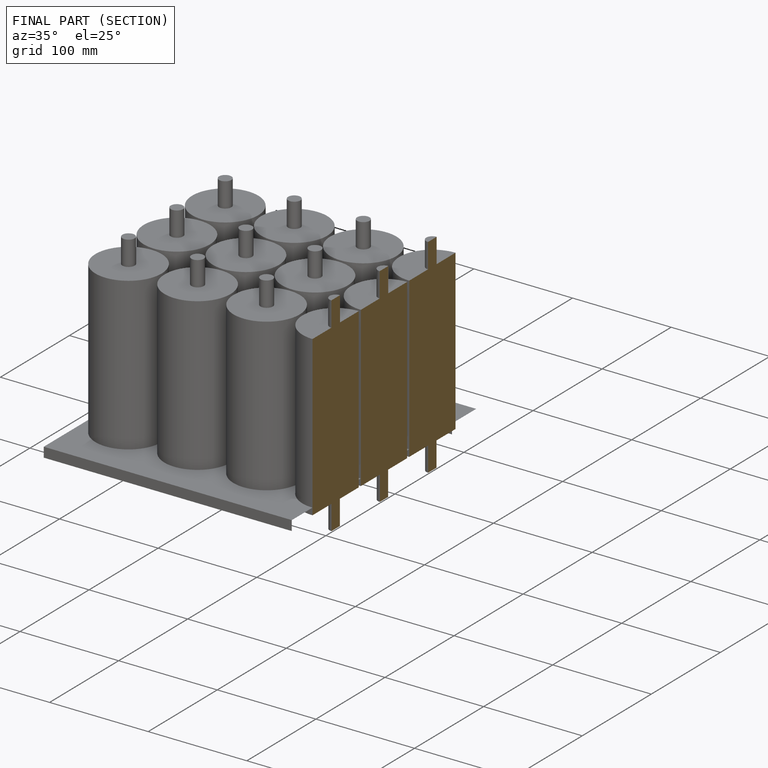
[diagram: finished part — half-section view (interior)]
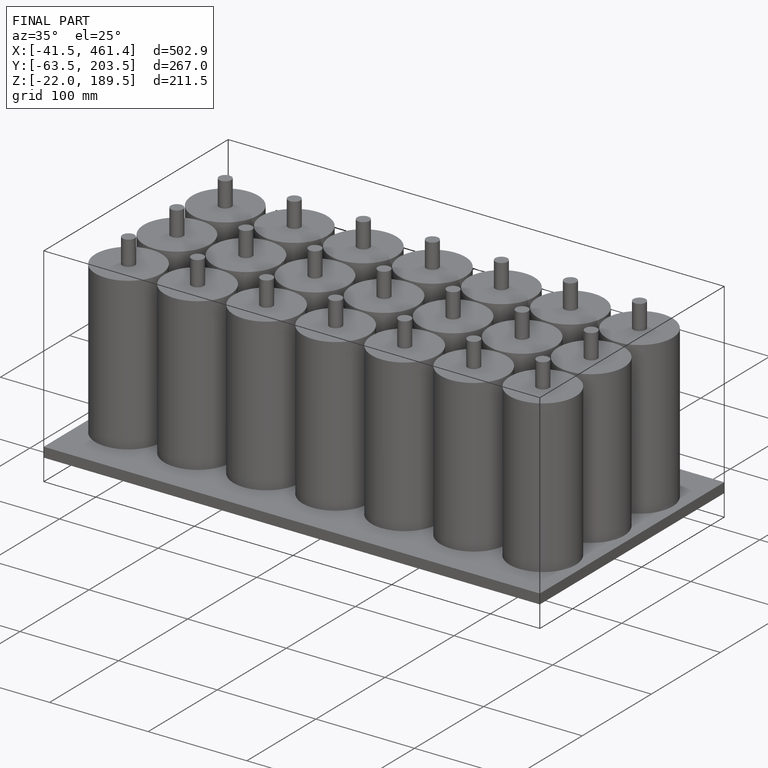
[diagram: finished part — iso view with bounding-box wireframe]
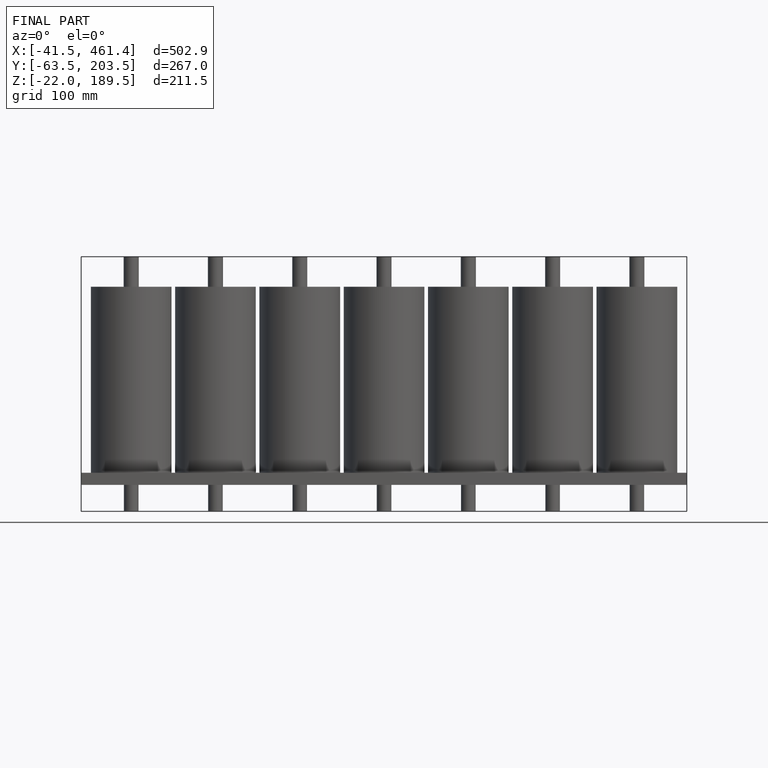
[diagram: finished part — front view with bounding-box wireframe]
